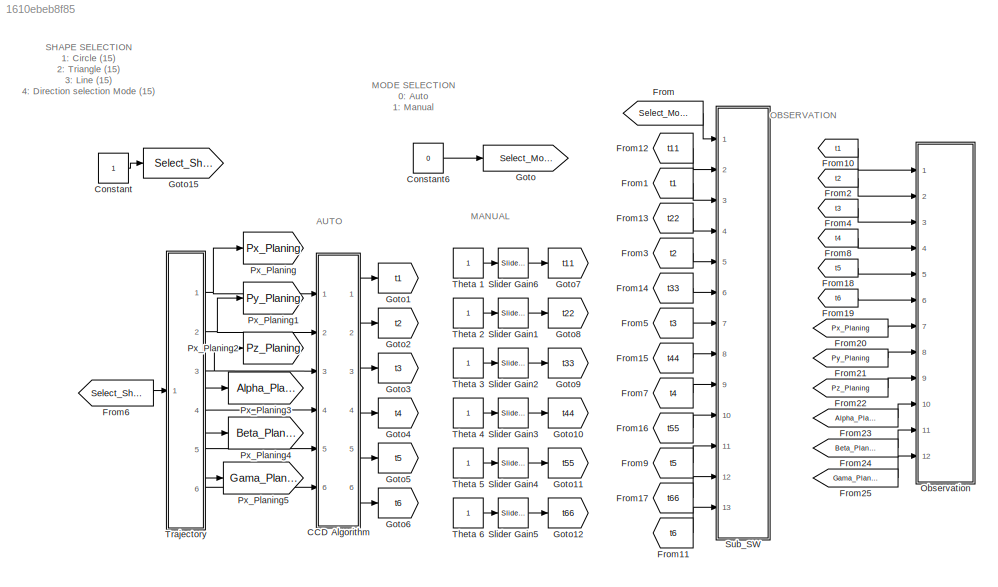
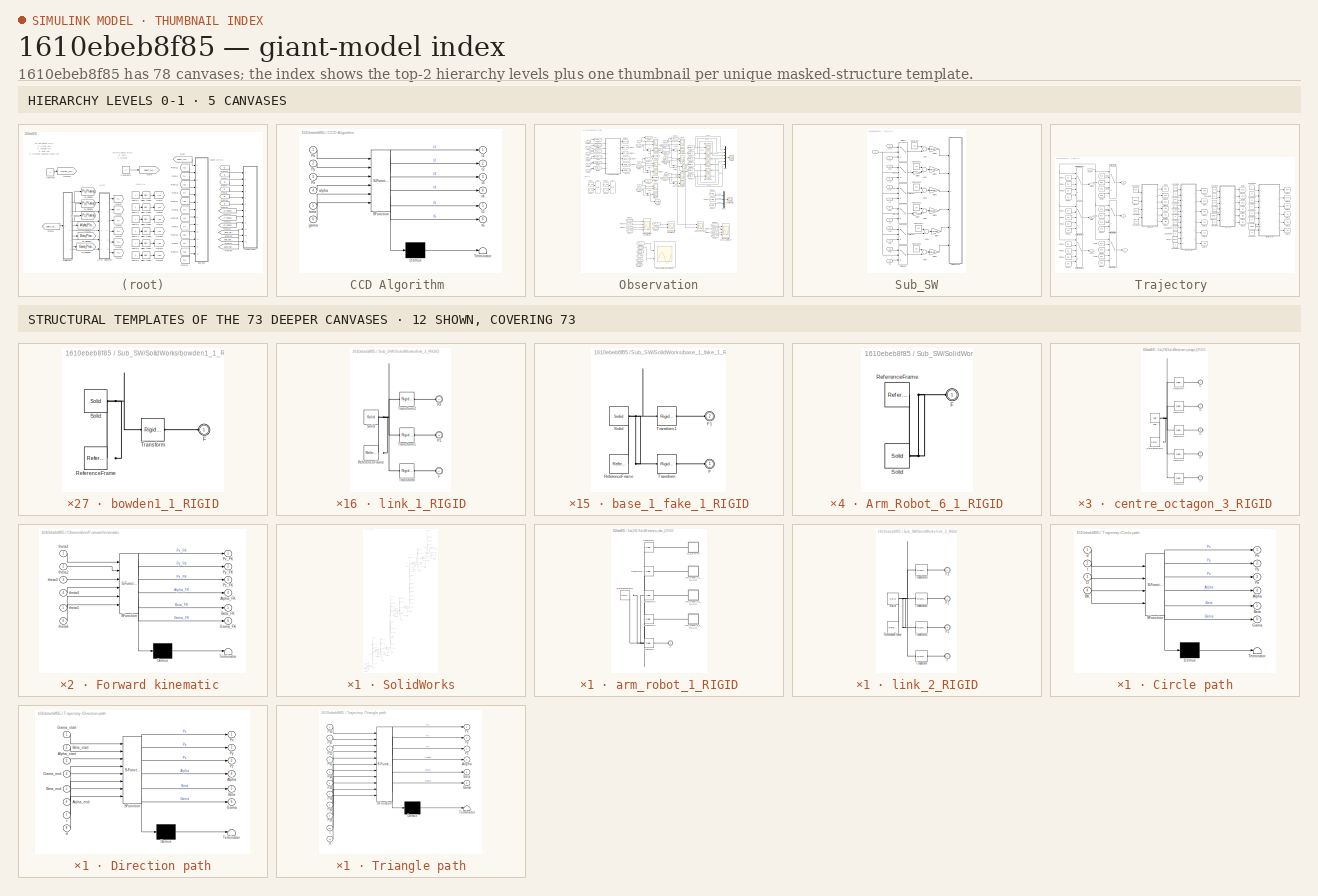
[diagram: thumbnail index - top-2 hierarchy levels (5 canvases) + 12 structural-template representatives of the remaining 73 canvases]
MODEL slx_1610ebeb8f85
KIND model
CONFIG AbsTol = auto
CONFIG EnableMultiTasking = off
CONFIG FixedStep = 0.01
CONFIG MaxStep = auto
CONFIG MinStep = auto
CONFIG RelTol = 1e-3
CONFIG SampleTimeConstraint = Unconstrained
CONFIG Solver = FixedStepAuto
CONFIG SolverName = FixedStepAuto
CONFIG StartTime = 0.0
CONFIG StopTime = 15
WORKSPACE source: MATLAB code (in-file)
WORKSPACE code: Assem_DataFile.m
BLOCK [SubSystem] CCD Algorithm 
  ErrorFcn = Stateflow.Translate.translate
  PermitHierarchicalResolution = ExplicitOnly
  Ports = [6, 6]
  RequestExecContextInheritance = off
  SFBlockType = MATLAB Function
  TreatAsAtomicUnit = on
BLOCK [Demux] CCD Algorithm / Demux 
  Outputs = 1
  Ports = [1, 1]
BLOCK [S-Function] CCD Algorithm / SFunction 
  EnableBusSupport = on
  FunctionName = sf_sfun
  PortCounts = [6 7]
  Ports = [6, 7]
  SFcnIsStateOwnerBlock = off
  SFunctionDeploymentMode = off
  Tag = Stateflow S-Function redundant_manipulator 2
BLOCK [Terminator] CCD Algorithm / Terminator 
BLOCK [Inport] CCD Algorithm /Px
  IconDisplay = Port number
BLOCK [Inport] CCD Algorithm /Py
  IconDisplay = Port number
  Port = 2
BLOCK [Inport] CCD Algorithm /Pz
  IconDisplay = Port number
  Port = 3
BLOCK [Inport] CCD Algorithm /alpha
  IconDisplay = Port number
  Port = 4
BLOCK [Inport] CCD Algorithm /beta
  IconDisplay = Port number
  Port = 5
BLOCK [Inport] CCD Algorithm /gama
  IconDisplay = Port number
  Port = 6
BLOCK [Outport] CCD Algorithm /t1
  IconDisplay = Port number
BLOCK [Outport] CCD Algorithm /t2
  IconDisplay = Port number
  Port = 2
BLOCK [Outport] CCD Algorithm /t3
  IconDisplay = Port number
  Port = 3
BLOCK [Outport] CCD Algorithm /t4
  IconDisplay = Port number
  Port = 4
BLOCK [Outport] CCD Algorithm /t5
  IconDisplay = Port number
  Port = 5
BLOCK [Outport] CCD Algorithm /t6
  IconDisplay = Port number
  Port = 6
BLOCK [Constant] Constant
BLOCK [Constant] Constant6
  Value = 0
BLOCK [From] From
  GotoTag = Select_Mode
BLOCK [From] From1
  GotoTag = t1
BLOCK [From] From10
  GotoTag = t1
BLOCK [From] From11
  GotoTag = t6
BLOCK [From] From12
  GotoTag = t11
BLOCK [From] From13
  GotoTag = t22
BLOCK [From] From14
  GotoTag = t33
BLOCK [From] From15
  GotoTag = t44
BLOCK [From] From16
  GotoTag = t55
BLOCK [From] From17
  GotoTag = t66
BLOCK [From] From18
  GotoTag = t5
BLOCK [From] From19
  GotoTag = t6
BLOCK [From] From2
  GotoTag = t2
BLOCK [From] From20
  GotoTag = Px_Planing
BLOCK [From] From21
  GotoTag = Py_Planing
BLOCK [From] From22
  GotoTag = Pz_Planing
BLOCK [From] From23
  GotoTag = Alpha_Planing
BLOCK [From] From24
  GotoTag = Beta_Planing
BLOCK [From] From25
  GotoTag = Gama_Planing
BLOCK [From] From3
  GotoTag = t2
BLOCK [From] From4
  GotoTag = t3
BLOCK [From] From5
  GotoTag = t3
BLOCK [From] From6
  GotoTag = Select_Shape
BLOCK [From] From7
  GotoTag = t4
BLOCK [From] From8
  GotoTag = t4
BLOCK [From] From9
  GotoTag = t5
BLOCK [Goto] Goto
  GotoTag = Select_Mode
BLOCK [Goto] Goto1
  GotoTag = t1
BLOCK [Goto] Goto10
  GotoTag = t44
BLOCK [Goto] Goto11
  GotoTag = t55
BLOCK [Goto] Goto12
  GotoTag = t66
BLOCK [Goto] Goto15
  GotoTag = Select_Shape
BLOCK [Goto] Goto2
  GotoTag = t2
BLOCK [Goto] Goto3
  GotoTag = t3
BLOCK [Goto] Goto4
  GotoTag = t4
BLOCK [Goto] Goto5
  GotoTag = t5
BLOCK [Goto] Goto6
  GotoTag = t6
BLOCK [Goto] Goto7
  GotoTag = t11
BLOCK [Goto] Goto8
  GotoTag = t22
BLOCK [Goto] Goto9
  GotoTag = t33
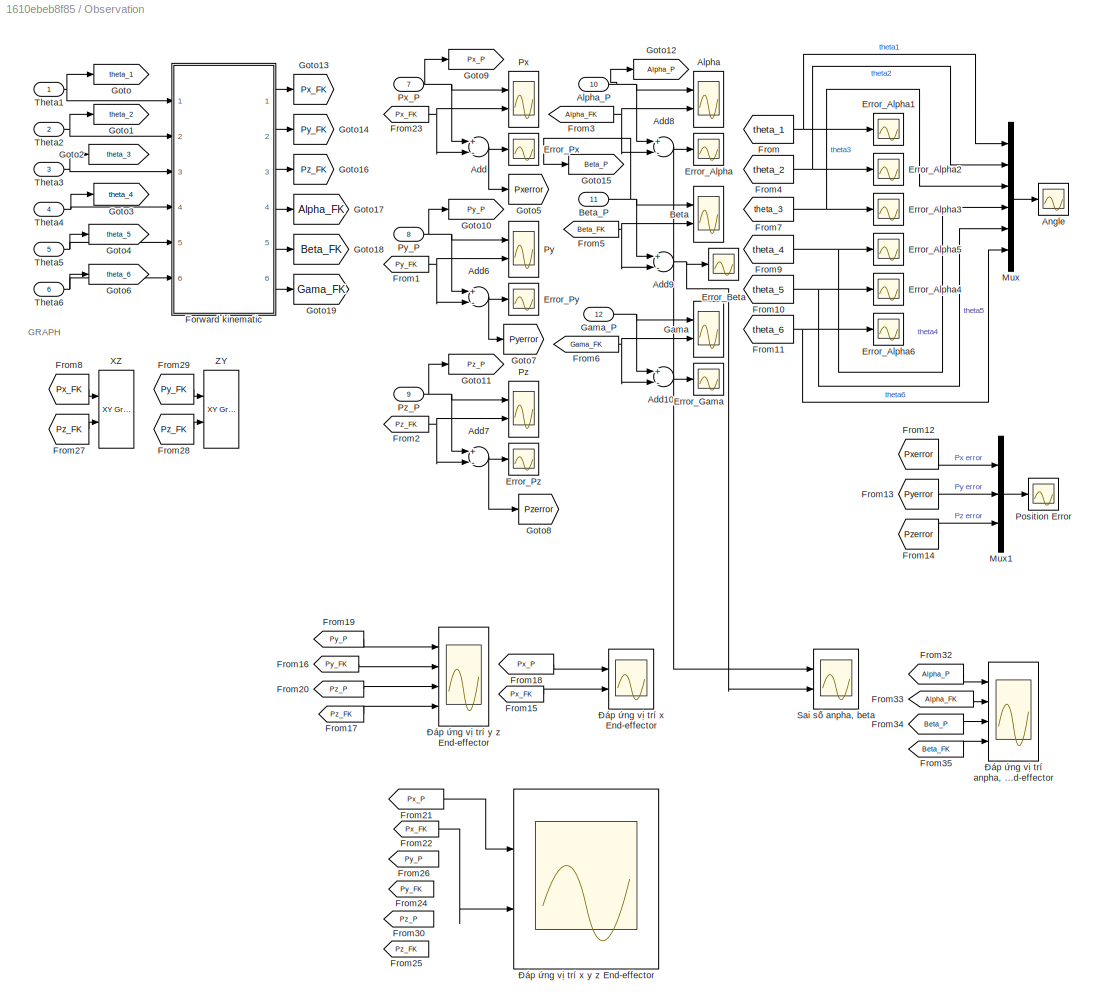
BLOCK [SubSystem] Observation
  Ports = [12]
  RequestExecContextInheritance = off
BLOCK [Sum] Observation/Add
  InputSameDT = off
  Inputs = +-
  OutDataTypeStr = Inherit: Inherit via internal rule
  Ports = [2, 1]
  SaturateOnIntegerOverflow = off
BLOCK [Sum] Observation/Add10
  InputSameDT = off
  Inputs = +-
  OutDataTypeStr = Inherit: Inherit via internal rule
  Ports = [2, 1]
  SaturateOnIntegerOverflow = off
BLOCK [Sum] Observation/Add6
  InputSameDT = off
  Inputs = +-
  OutDataTypeStr = Inherit: Inherit via internal rule
  Ports = [2, 1]
  SaturateOnIntegerOverflow = off
BLOCK [Sum] Observation/Add7
  InputSameDT = off
  Inputs = +-
  OutDataTypeStr = Inherit: Inherit via internal rule
  Ports = [2, 1]
  SaturateOnIntegerOverflow = off
BLOCK [Sum] Observation/Add8
  InputSameDT = off
  Inputs = +-
  OutDataTypeStr = Inherit: Inherit via internal rule
  Ports = [2, 1]
  SaturateOnIntegerOverflow = off
BLOCK [Sum] Observation/Add9
  InputSameDT = off
  Inputs = +-
  OutDataTypeStr = Inherit: Inherit via internal rule
  Ports = [2, 1]
  SaturateOnIntegerOverflow = off
BLOCK [Scope] Observation/Alpha
  Floating = off
  NumInputPorts = 2
  Ports = [2]
  ScopeSpecificationString = Simulink.scopes.TimeScopeBlockCfg('CurrentConfiguration', extmgr.ConfigurationSet(extmgr.Configuration('Core','General UI',true,'FigureColor',[1 1 1],'DisplayFullSourceName',true),extmgr.Configuration('Core','Source UI',true),extmgr.Configuration('Sources','WiredSimulink',true,'DataLoggingVariableName','ScopeData17'),extmgr.Configuration('Visuals','Time Domain',true,'SerializedDisplays',{struct('M...<+2370ch>
BLOCK [Inport] Observation/Alpha_P
  IconDisplay = Port number
  Port = 10
BLOCK [Scope] Observation/Angle
  Floating = off
  NumInputPorts = 1
  Ports = [1]
  ScopeSpecificationString = Simulink.scopes.TimeScopeBlockCfg('CurrentConfiguration', extmgr.ConfigurationSet(extmgr.Configuration('Core','General UI',true,'FigureColor',[1 1 1],'DisplayFullSourceName',true),extmgr.Configuration('Core','Source UI',true),extmgr.Configuration('Sources','WiredSimulink',true,'DataLoggingVariableName','ScopeData1'),extmgr.Configuration('Visuals','Time Domain',true,'SerializedDisplays',{struct('Mi...<+2173ch>
BLOCK [Scope] Observation/Beta
  Floating = off
  NumInputPorts = 2
  Ports = [2]
  ScopeSpecificationString = Simulink.scopes.TimeScopeBlockCfg('CurrentConfiguration', extmgr.ConfigurationSet(extmgr.Configuration('Core','General UI',true,'FigureColor',[1 1 1],'DisplayFullSourceName',true),extmgr.Configuration('Core','Source UI',true),extmgr.Configuration('Sources','WiredSimulink',true,'DataLoggingVariableName','ScopeData19'),extmgr.Configuration('Visuals','Time Domain',true,'SerializedDisplays',{struct('M...<+2405ch>
BLOCK [Inport] Observation/Beta_P
  IconDisplay = Port number
  Port = 11
BLOCK [Scope] Observation/Error_Alpha
  Floating = off
  NumInputPorts = 1
  Ports = [1]
  ScopeSpecificationString = Simulink.scopes.TimeScopeBlockCfg('CurrentConfiguration', extmgr.ConfigurationSet(extmgr.Configuration('Core','General UI',true,'FigureColor',[1 1 1],'DisplayFullSourceName',true),extmgr.Configuration('Core','Source UI',true),extmgr.Configuration('Sources','WiredSimulink',true,'DataLoggingVariableName','ScopeData16'),extmgr.Configuration('Visuals','Time Domain',true,'SerializedDisplays',{struct('M...<+1589ch>
BLOCK [Scope] Observation/Error_Alpha1
  Floating = off
  NumInputPorts = 1
  Ports = [1]
  ScopeSpecificationString = Simulink.scopes.TimeScopeBlockCfg('CurrentConfiguration', extmgr.ConfigurationSet(extmgr.Configuration('Core','General UI',true,'FigureColor',[1 1 1],'DisplayFullSourceName',true),extmgr.Configuration('Core','Source UI',true),extmgr.Configuration('Sources','WiredSimulink',true),extmgr.Configuration('Visuals','Time Domain',true,'SerializedDisplays',{struct('MinYLimReal','10.27567','MaxYLimReal','21...<+1543ch>
BLOCK [Scope] Observation/Error_Alpha2
  Floating = off
  NumInputPorts = 1
  Ports = [1]
  ScopeSpecificationString = Simulink.scopes.TimeScopeBlockCfg('CurrentConfiguration', extmgr.ConfigurationSet(extmgr.Configuration('Core','General UI',true,'FigureColor',[1 1 1],'DisplayFullSourceName',true),extmgr.Configuration('Core','Source UI',true),extmgr.Configuration('Sources','WiredSimulink',true,'DataLoggingVariableName','ScopeData1'),extmgr.Configuration('Visuals','Time Domain',true,'SerializedDisplays',{struct('Mi...<+1588ch>
BLOCK [Scope] Observation/Error_Alpha3
  Floating = off
  NumInputPorts = 1
  Ports = [1]
  ScopeSpecificationString = Simulink.scopes.TimeScopeBlockCfg('CurrentConfiguration', extmgr.ConfigurationSet(extmgr.Configuration('Core','General UI',true,'FigureColor',[1 1 1],'DisplayFullSourceName',true),extmgr.Configuration('Core','Source UI',true),extmgr.Configuration('Sources','WiredSimulink',true,'DataLoggingVariableName','ScopeData2'),extmgr.Configuration('Visuals','Time Domain',true,'SerializedDisplays',{struct('Mi...<+1588ch>
BLOCK [Scope] Observation/Error_Alpha4
  Floating = off
  NumInputPorts = 1
  Ports = [1]
  ScopeSpecificationString = Simulink.scopes.TimeScopeBlockCfg('CurrentConfiguration', extmgr.ConfigurationSet(extmgr.Configuration('Core','General UI',true,'FigureColor',[1 1 1],'DisplayFullSourceName',true),extmgr.Configuration('Core','Source UI',true),extmgr.Configuration('Sources','WiredSimulink',true,'DataLoggingVariableName','ScopeData3'),extmgr.Configuration('Visuals','Time Domain',true,'SerializedDisplays',{struct('Mi...<+1586ch>
BLOCK [Scope] Observation/Error_Alpha5
  Floating = off
  NumInputPorts = 1
  Ports = [1]
  ScopeSpecificationString = Simulink.scopes.TimeScopeBlockCfg('CurrentConfiguration', extmgr.ConfigurationSet(extmgr.Configuration('Core','General UI',true,'FigureColor',[1 1 1],'DisplayFullSourceName',true),extmgr.Configuration('Core','Source UI',true),extmgr.Configuration('Sources','WiredSimulink',true,'DataLoggingVariableName','ScopeData5'),extmgr.Configuration('Visuals','Time Domain',true,'SerializedDisplays',{struct('Mi...<+1586ch>
BLOCK [Scope] Observation/Error_Alpha6
  Floating = off
  NumInputPorts = 1
  Ports = [1]
  ScopeSpecificationString = Simulink.scopes.TimeScopeBlockCfg('CurrentConfiguration', extmgr.ConfigurationSet(extmgr.Configuration('Core','General UI',true,'FigureColor',[1 1 1],'DisplayFullSourceName',true),extmgr.Configuration('Core','Source UI',true),extmgr.Configuration('Sources','WiredSimulink',true,'DataLoggingVariableName','ScopeData6'),extmgr.Configuration('Visuals','Time Domain',true,'SerializedDisplays',{struct('Mi...<+1588ch>
BLOCK [Scope] Observation/Error_Beta
  Floating = off
  NumInputPorts = 1
  Ports = [1]
  ScopeSpecificationString = Simulink.scopes.TimeScopeBlockCfg('CurrentConfiguration', extmgr.ConfigurationSet(extmgr.Configuration('Core','General UI',true,'FigureColor',[1 1 1],'DisplayFullSourceName',true),extmgr.Configuration('Core','Source UI',true),extmgr.Configuration('Sources','WiredSimulink',true,'DataLoggingVariableName','ScopeData18'),extmgr.Configuration('Visuals','Time Domain',true,'SerializedDisplays',{struct('M...<+1583ch>
BLOCK [Scope] Observation/Error_Gama
  Floating = off
  NumInputPorts = 1
  Ports = [1]
  ScopeSpecificationString = Simulink.scopes.TimeScopeBlockCfg('CurrentConfiguration', extmgr.ConfigurationSet(extmgr.Configuration('Core','General UI',true,'FigureColor',[1 1 1],'DisplayFullSourceName',true),extmgr.Configuration('Core','Source UI',true),extmgr.Configuration('Sources','WiredSimulink',true,'DataLoggingVariableName','ScopeData20'),extmgr.Configuration('Visuals','Time Domain',true,'SerializedDisplays',{struct('M...<+1585ch>
BLOCK [Scope] Observation/Error_Px
  Floating = off
  NumInputPorts = 1
  Ports = [1]
  ScopeSpecificationString = Simulink.scopes.TimeScopeBlockCfg('CurrentConfiguration', extmgr.ConfigurationSet(extmgr.Configuration('Core','General UI',true,'FigureColor',[1 1 1],'DisplayFullSourceName',true),extmgr.Configuration('Core','Source UI',true),extmgr.Configuration('Sources','WiredSimulink',true,'DataLoggingVariableName','ScopeData7'),extmgr.Configuration('Visuals','Time Domain',true,'SerializedDisplays',{struct('Mi...<+1615ch>
BLOCK [Scope] Observation/Error_Py
  Floating = off
  NumInputPorts = 1
  Ports = [1]
  ScopeSpecificationString = Simulink.scopes.TimeScopeBlockCfg('CurrentConfiguration', extmgr.ConfigurationSet(extmgr.Configuration('Core','General UI',true,'FigureColor',[1 1 1],'DisplayFullSourceName',true),extmgr.Configuration('Core','Source UI',true),extmgr.Configuration('Sources','WiredSimulink',true,'DataLoggingVariableName','ScopeData12'),extmgr.Configuration('Visuals','Time Domain',true,'SerializedDisplays',{struct('M...<+1601ch>
BLOCK [Scope] Observation/Error_Pz
  Floating = off
  NumInputPorts = 1
  Ports = [1]
  ScopeSpecificationString = Simulink.scopes.TimeScopeBlockCfg('CurrentConfiguration', extmgr.ConfigurationSet(extmgr.Configuration('Core','General UI',true,'FigureColor',[1 1 1],'DisplayFullSourceName',true),extmgr.Configuration('Core','Source UI',true),extmgr.Configuration('Sources','WiredSimulink',true,'DataLoggingVariableName','ScopeData14'),extmgr.Configuration('Visuals','Time Domain',true,'SerializedDisplays',{struct('M...<+1611ch>
BLOCK [SubSystem] Observation/Forward kinematic 
  ErrorFcn = Stateflow.Translate.translate
  PermitHierarchicalResolution = ExplicitOnly
  Ports = [6, 6]
  RequestExecContextInheritance = off
  SFBlockType = MATLAB Function
  TreatAsAtomicUnit = on
BLOCK [Demux] Observation/Forward kinematic / Demux 
  Outputs = 1
  Ports = [1, 1]
BLOCK [S-Function] Observation/Forward kinematic / SFunction 
  EnableBusSupport = on
  FunctionName = sf_sfun
  PortCounts = [6 7]
  Ports = [6, 7]
  SFcnIsStateOwnerBlock = off
  SFunctionDeploymentMode = off
  Tag = Stateflow S-Function redundant_manipulator 10
BLOCK [Terminator] Observation/Forward kinematic / Terminator 
BLOCK [Outport] Observation/Forward kinematic /Alpha_FK
  IconDisplay = Port number
  Port = 4
BLOCK [Outport] Observation/Forward kinematic /Beta_FK
  IconDisplay = Port number
  Port = 5
BLOCK [Outport] Observation/Forward kinematic /Gama_FK
  IconDisplay = Port number
  Port = 6
BLOCK [Outport] Observation/Forward kinematic /Px_FK
  IconDisplay = Port number
BLOCK [Outport] Observation/Forward kinematic /Py_FK
  IconDisplay = Port number
  Port = 2
BLOCK [Outport] Observation/Forward kinematic /Pz_FK
  IconDisplay = Port number
  Port = 3
BLOCK [Inport] Observation/Forward kinematic /theta1
  IconDisplay = Port number
BLOCK [Inport] Observation/Forward kinematic /theta2
  IconDisplay = Port number
  Port = 2
BLOCK [Inport] Observation/Forward kinematic /theta3
  IconDisplay = Port number
  Port = 3
BLOCK [Inport] Observation/Forward kinematic /theta4
  IconDisplay = Port number
  Port = 4
BLOCK [Inport] Observation/Forward kinematic /theta5
  IconDisplay = Port number
  Port = 5
BLOCK [Inport] Observation/Forward kinematic /theta6
  IconDisplay = Port number
  Port = 6
BLOCK [From] Observation/From
  GotoTag = theta_1
BLOCK [From] Observation/From1
  GotoTag = Py_FK
BLOCK [From] Observation/From10
  GotoTag = theta_5
BLOCK [From] Observation/From11
  GotoTag = theta_6
BLOCK [From] Observation/From12
  GotoTag = Pxerror
BLOCK [From] Observation/From13
  GotoTag = Pyerror
BLOCK [From] Observation/From14
  GotoTag = Pzerror
BLOCK [From] Observation/From15
  GotoTag = Px_FK
BLOCK [From] Observation/From16
  GotoTag = Py_FK
BLOCK [From] Observation/From17
  GotoTag = Pz_FK
BLOCK [From] Observation/From18
  GotoTag = Px_P
BLOCK [From] Observation/From19
  GotoTag = Py_P
BLOCK [From] Observation/From2
  GotoTag = Pz_FK
BLOCK [From] Observation/From20
  GotoTag = Pz_P
BLOCK [From] Observation/From21
  GotoTag = Px_P
BLOCK [From] Observation/From22
  GotoTag = Px_FK
BLOCK [From] Observation/From23
  GotoTag = Px_FK
BLOCK [From] Observation/From24
  GotoTag = Py_FK
BLOCK [From] Observation/From25
  GotoTag = Pz_FK
BLOCK [From] Observation/From26
  GotoTag = Py_P
BLOCK [From] Observation/From27
  GotoTag = Pz_FK
BLOCK [From] Observation/From28
  GotoTag = Pz_FK
BLOCK [From] Observation/From29
  GotoTag = Py_FK
BLOCK [From] Observation/From3
  GotoTag = Alpha_FK
BLOCK [From] Observation/From30
  GotoTag = Pz_P
BLOCK [From] Observation/From32
  GotoTag = Alpha_P
BLOCK [From] Observation/From33
  GotoTag = Alpha_FK
BLOCK [From] Observation/From34
  GotoTag = Beta_P
BLOCK [From] Observation/From35
  GotoTag = Beta_FK
BLOCK [From] Observation/From4
  GotoTag = theta_2
BLOCK [From] Observation/From5
  GotoTag = Beta_FK
BLOCK [From] Observation/From6
  GotoTag = Gama_FK
BLOCK [From] Observation/From7
  GotoTag = theta_3
BLOCK [From] Observation/From8
  GotoTag = Px_FK
BLOCK [From] Observation/From9
  GotoTag = theta_4
BLOCK [Scope] Observation/Gama
  Floating = off
  NumInputPorts = 2
  Ports = [2]
  ScopeSpecificationString = Simulink.scopes.TimeScopeBlockCfg('CurrentConfiguration', extmgr.ConfigurationSet(extmgr.Configuration('Core','General UI',true,'FigureColor',[1 1 1],'DisplayFullSourceName',true),extmgr.Configuration('Core','Source UI',true),extmgr.Configuration('Sources','WiredSimulink',true,'DataLoggingVariableName','ScopeData21'),extmgr.Configuration('Visuals','Time Domain',true,'SerializedDisplays',{struct('M...<+2403ch>
BLOCK [Inport] Observation/Gama_P
  IconDisplay = Port number
  Port = 12
BLOCK [Goto] Observation/Goto
  GotoTag = theta_1
BLOCK [Goto] Observation/Goto1
  GotoTag = theta_2
BLOCK [Goto] Observation/Goto10
  GotoTag = Py_P
BLOCK [Goto] Observation/Goto11
  GotoTag = Pz_P
BLOCK [Goto] Observation/Goto12
  GotoTag = Alpha_P
BLOCK [Goto] Observation/Goto13
  GotoTag = Px_FK
BLOCK [Goto] Observation/Goto14
  GotoTag = Py_FK
BLOCK [Goto] Observation/Goto15
  GotoTag = Beta_P
BLOCK [Goto] Observation/Goto16
  GotoTag = Pz_FK
BLOCK [Goto] Observation/Goto17
  GotoTag = Alpha_FK
BLOCK [Goto] Observation/Goto18
  GotoTag = Beta_FK
BLOCK [Goto] Observation/Goto19
  GotoTag = Gama_FK
BLOCK [Goto] Observation/Goto2
  GotoTag = theta_3
BLOCK [Goto] Observation/Goto3
  GotoTag = theta_4
BLOCK [Goto] Observation/Goto4
  GotoTag = theta_5
BLOCK [Goto] Observation/Goto5
  GotoTag = Pxerror
BLOCK [Goto] Observation/Goto6
  GotoTag = theta_6
BLOCK [Goto] Observation/Goto7
  GotoTag = Pyerror
BLOCK [Goto] Observation/Goto8
  GotoTag = Pzerror
BLOCK [Goto] Observation/Goto9
  GotoTag = Px_P
BLOCK [Mux] Observation/Mux
  DisplayOption = bar
  Inputs = 6
  Ports = [6, 1]
BLOCK [Mux] Observation/Mux1
  DisplayOption = bar
  Inputs = 3
  Ports = [3, 1]
BLOCK [Scope] Observation/Position Error
  Floating = off
  NumInputPorts = 1
  Ports = [1]
  ScopeSpecificationString = Simulink.scopes.TimeScopeBlockCfg('CurrentConfiguration', extmgr.ConfigurationSet(extmgr.Configuration('Core','General UI',true,'FigureColor',[1 1 1],'DisplayFullSourceName',true),extmgr.Configuration('Core','Source UI',true),extmgr.Configuration('Sources','WiredSimulink',true,'DataLoggingVariableName','ScopeData1'),extmgr.Configuration('Visuals','Time Domain',true,'SerializedDisplays',{struct('Mi...<+2136ch>
BLOCK [Scope] Observation/Px
  Floating = off
  NumInputPorts = 2
  Ports = [2]
  ScopeSpecificationString = Simulink.scopes.TimeScopeBlockCfg('CurrentConfiguration', extmgr.ConfigurationSet(extmgr.Configuration('Core','General UI',true,'FigureColor',[1 1 1],'DisplayFullSourceName',true),extmgr.Configuration('Core','Source UI',true),extmgr.Configuration('Sources','WiredSimulink',true,'DataLoggingVariableName','ScopeData4'),extmgr.Configuration('Visuals','Time Domain',true,'SerializedDisplays',{struct('Mi...<+2310ch>
BLOCK [Inport] Observation/Px_P
  IconDisplay = Port number
  Port = 7
BLOCK [Scope] Observation/Py
  Floating = off
  NumInputPorts = 2
  Ports = [2]
  ScopeSpecificationString = Simulink.scopes.TimeScopeBlockCfg('CurrentConfiguration', extmgr.ConfigurationSet(extmgr.Configuration('Core','General UI',true,'FigureColor',[1 1 1],'DisplayFullSourceName',true),extmgr.Configuration('Core','Source UI',true),extmgr.Configuration('Sources','WiredSimulink',true,'DataLoggingVariableName','ScopeData13'),extmgr.Configuration('Visuals','Time Domain',true,'SerializedDisplays',{struct('M...<+2320ch>
BLOCK [Inport] Observation/Py_P
  IconDisplay = Port number
  Port = 8
BLOCK [Scope] Observation/Pz
  Floating = off
  NumInputPorts = 2
  Ports = [2]
  ScopeSpecificationString = Simulink.scopes.TimeScopeBlockCfg('CurrentConfiguration', extmgr.ConfigurationSet(extmgr.Configuration('Core','General UI',true,'FigureColor',[1 1 1],'DisplayFullSourceName',true),extmgr.Configuration('Core','Source UI',true),extmgr.Configuration('Sources','WiredSimulink',true,'DataLoggingVariableName','ScopeData15'),extmgr.Configuration('Visuals','Time Domain',true,'SerializedDisplays',{struct('M...<+2295ch>
BLOCK [Inport] Observation/Pz_P
  IconDisplay = Port number
  Port = 9
BLOCK [Scope] Observation/Sai số anpha, beta
  Floating = off
  NumInputPorts = 2
  Ports = [2]
  ScopeSpecificationString = Simulink.scopes.TimeScopeBlockCfg('CurrentConfiguration', extmgr.ConfigurationSet(extmgr.Configuration('Core','General UI',true,'FigureColor',[1 1 1],'DisplayFullSourceName',true),extmgr.Configuration('Core','Source UI',true),extmgr.Configuration('Sources','WiredSimulink',true,'DataLoggingVariableName','ScopeData1'),extmgr.Configuration('Visuals','Time Domain',true,'SerializedDisplays',{struct('Mi...<+2104ch>
BLOCK [Inport] Observation/Theta1
  IconDisplay = Port number
BLOCK [Inport] Observation/Theta2
  IconDisplay = Port number
  Port = 2
BLOCK [Inport] Observation/Theta3
  IconDisplay = Port number
  Port = 3
BLOCK [Inport] Observation/Theta4
  IconDisplay = Port number
  Port = 4
BLOCK [Inport] Observation/Theta5
  IconDisplay = Port number
  Port = 5
BLOCK [Inport] Observation/Theta6
  IconDisplay = Port number
  Port = 6
BLOCK [Reference] Observation/XZ  REF=simulink/Sinks/XY Graph
  Ports = [2]
  SourceBlock = simulink/Sinks/XY Graph
  SourceProductBaseCode = SL
  SourceProductName = Simulink
  SourceType = XY scope.
BLOCK [Reference] Observation/ZY  REF=simulink/Sinks/XY Graph
  Ports = [2]
  SourceBlock = simulink/Sinks/XY Graph
  SourceProductBaseCode = SL
  SourceProductName = Simulink
  SourceType = XY scope.
BLOCK [Scope] Observation/Đáp ứng vị trí anpha, beta End-effector 
  Floating = off
  NumInputPorts = 4
  Ports = [4]
  ScopeSpecificationString = Simulink.scopes.TimeScopeBlockCfg('CurrentConfiguration', extmgr.ConfigurationSet(extmgr.Configuration('Core','General UI',true,'FigureColor',[1 1 1],'DisplayFullSourceName',true),extmgr.Configuration('Core','Source UI',true),extmgr.Configuration('Sources','WiredSimulink',true,'DataLoggingVariableName','ScopeData2'),extmgr.Configuration('Visuals','Time Domain',true,'SerializedDisplays',{struct('Mi...<+2198ch>
BLOCK [Scope] Observation/Đáp ứng vị trí x End-effector
  Floating = off
  NumInputPorts = 2
  Ports = [2]
  ScopeSpecificationString = Simulink.scopes.TimeScopeBlockCfg('CurrentConfiguration', extmgr.ConfigurationSet(extmgr.Configuration('Core','General UI',true,'FigureColor',[1 1 1],'DisplayFullSourceName',true),extmgr.Configuration('Core','Source UI',true),extmgr.Configuration('Sources','WiredSimulink',true,'DataLoggingVariableName','ScopeData1'),extmgr.Configuration('Visuals','Time Domain',true,'SerializedDisplays',{struct('Mi...<+2115ch>
BLOCK [Scope] Observation/Đáp ứng vị trí x y z End-effector
  Floating = off
  NumInputPorts = 2
  Ports = [2]
  ScopeSpecificationString = Simulink.scopes.TimeScopeBlockCfg('CurrentConfiguration', extmgr.ConfigurationSet(extmgr.Configuration('Core','General UI',true,'FigureColor',[1 1 1],'DisplayFullSourceName',true),extmgr.Configuration('Core','Source UI',true),extmgr.Configuration('Sources','WiredSimulink',true,'DataLoggingVariableName','ScopeData1','DataLogging',true),extmgr.Configuration('Visuals','Time Domain',true,'SerializedDi...<+2328ch>
BLOCK [Scope] Observation/Đáp ứng vị trí y z End-effector 
  Floating = off
  NumInputPorts = 4
  Ports = [4]
  ScopeSpecificationString = Simulink.scopes.TimeScopeBlockCfg('CurrentConfiguration', extmgr.ConfigurationSet(extmgr.Configuration('Core','General UI',true,'FigureColor',[1 1 1],'DisplayFullSourceName',true),extmgr.Configuration('Core','Source UI',true),extmgr.Configuration('Sources','WiredSimulink',true),extmgr.Configuration('Visuals','Time Domain',true,'SerializedDisplays',{struct('MinYLimReal','11.43641','MaxYLimReal','51...<+2130ch>
BLOCK [Goto] Px_Planing
  GotoTag = Px_Planing
BLOCK [Goto] Px_Planing1
  GotoTag = Py_Planing
BLOCK [Goto] Px_Planing2
  GotoTag = Pz_Planing
BLOCK [Goto] Px_Planing3
  GotoTag = Alpha_Planing
BLOCK [Goto] Px_Planing4
  GotoTag = Beta_Planing
BLOCK [Goto] Px_Planing5
  GotoTag = Gama_Planing
BLOCK [Reference] Slider Gain1  REF=simulink/Math
Operations/Slider
Gain
  Ports = [1, 1]
  SourceBlock = simulink/Math\nOperations/Slider\nGain
  SourceProductBaseCode = SL
  SourceProductName = Simulink
  SourceType = Slider Gain
BLOCK [Reference] Slider Gain2  REF=simulink/Math
Operations/Slider
Gain
  Ports = [1, 1]
  SourceBlock = simulink/Math\nOperations/Slider\nGain
  SourceProductBaseCode = SL
  SourceProductName = Simulink
  SourceType = Slider Gain
BLOCK [Reference] Slider Gain3  REF=simulink/Math
Operations/Slider
Gain
  Ports = [1, 1]
  SourceBlock = simulink/Math\nOperations/Slider\nGain
  SourceProductBaseCode = SL
  SourceProductName = Simulink
  SourceType = Slider Gain
BLOCK [Reference] Slider Gain4  REF=simulink/Math
Operations/Slider
Gain
  Ports = [1, 1]
  SourceBlock = simulink/Math\nOperations/Slider\nGain
  SourceProductBaseCode = SL
  SourceProductName = Simulink
  SourceType = Slider Gain
BLOCK [Reference] Slider Gain5  REF=simulink/Math
Operations/Slider
Gain
  Ports = [1, 1]
  SourceBlock = simulink/Math\nOperations/Slider\nGain
  SourceProductBaseCode = SL
  SourceProductName = Simulink
  SourceType = Slider Gain
BLOCK [Reference] Slider Gain6  REF=simulink/Math
Operations/Slider
Gain
  Ports = [1, 1]
  SourceBlock = simulink/Math\nOperations/Slider\nGain
  SourceProductBaseCode = SL
  SourceProductName = Simulink
  SourceType = Slider Gain
BLOCK [SubSystem] Sub_SW
  Ports = [13]
  RequestExecContextInheritance = off
BLOCK [Inport] Sub_SW/A
  IconDisplay = Port number
BLOCK [Sum] Sub_SW/Add
  InputSameDT = off
  OutDataTypeStr = Inherit: Inherit via internal rule
  Ports = [2, 1]
  SaturateOnIntegerOverflow = off
BLOCK [Sum] Sub_SW/Add1
  InputSameDT = off
  OutDataTypeStr = Inherit: Inherit via internal rule
  Ports = [2, 1]
  SaturateOnIntegerOverflow = off
BLOCK [Sum] Sub_SW/Add2
  InputSameDT = off
  OutDataTypeStr = Inherit: Inherit via internal rule
  Ports = [2, 1]
  SaturateOnIntegerOverflow = off
BLOCK [Sum] Sub_SW/Add3
  InputSameDT = off
  OutDataTypeStr = Inherit: Inherit via internal rule
  Ports = [2, 1]
  SaturateOnIntegerOverflow = off
BLOCK [Sum] Sub_SW/Add4
  InputSameDT = off
  OutDataTypeStr = Inherit: Inherit via internal rule
  Ports = [2, 1]
  SaturateOnIntegerOverflow = off
BLOCK [Sum] Sub_SW/Add5
  InputSameDT = off
  OutDataTypeStr = Inherit: Inherit via internal rule
  Ports = [2, 1]
  SaturateOnIntegerOverflow = off
BLOCK [Constant] Sub_SW/Constant
  Value = 90
BLOCK [Constant] Sub_SW/Constant1
  Value = 90
BLOCK [Constant] Sub_SW/Constant2
  Value = -90
BLOCK [Constant] Sub_SW/Constant3
  Value = 90
BLOCK [Constant] Sub_SW/Constant4
  Value = -90
BLOCK [Constant] Sub_SW/Constant5
  Value = -90
BLOCK [Gain] Sub_SW/Gain1
  Gain = pi/180
  OutDataTypeStr = Inherit: Inherit via internal rule
  ParamDataTypeStr = Inherit: Inherit via internal rule
  SaturateOnIntegerOverflow = off
BLOCK [Gain] Sub_SW/Gain2
  Gain = pi/180
  OutDataTypeStr = Inherit: Inherit via internal rule
  ParamDataTypeStr = Inherit: Inherit via internal rule
  SaturateOnIntegerOverflow = off
BLOCK [Gain] Sub_SW/Gain3
  Gain = pi/180
  OutDataTypeStr = Inherit: Inherit via internal rule
  ParamDataTypeStr = Inherit: Inherit via internal rule
  SaturateOnIntegerOverflow = off
BLOCK [Gain] Sub_SW/Gain4
  Gain = pi/180
  OutDataTypeStr = Inherit: Inherit via internal rule
  ParamDataTypeStr = Inherit: Inherit via internal rule
  SaturateOnIntegerOverflow = off
BLOCK [Gain] Sub_SW/Gain5
  Gain = pi/180
  OutDataTypeStr = Inherit: Inherit via internal rule
  ParamDataTypeStr = Inherit: Inherit via internal rule
  SaturateOnIntegerOverflow = off
BLOCK [Gain] Sub_SW/Gain6
  Gain = -1
  OutDataTypeStr = Inherit: Inherit via internal rule
  ParamDataTypeStr = Inherit: Inherit via internal rule
  SaturateOnIntegerOverflow = off
BLOCK [Gain] Sub_SW/Gain7
  Gain = -1
  OutDataTypeStr = Inherit: Inherit via internal rule
  ParamDataTypeStr = Inherit: Inherit via internal rule
  SaturateOnIntegerOverflow = off
BLOCK [Gain] Sub_SW/Gain8
  Gain = pi/180
  OutDataTypeStr = Inherit: Inherit via internal rule
  ParamDataTypeStr = Inherit: Inherit via internal rule
  SaturateOnIntegerOverflow = off
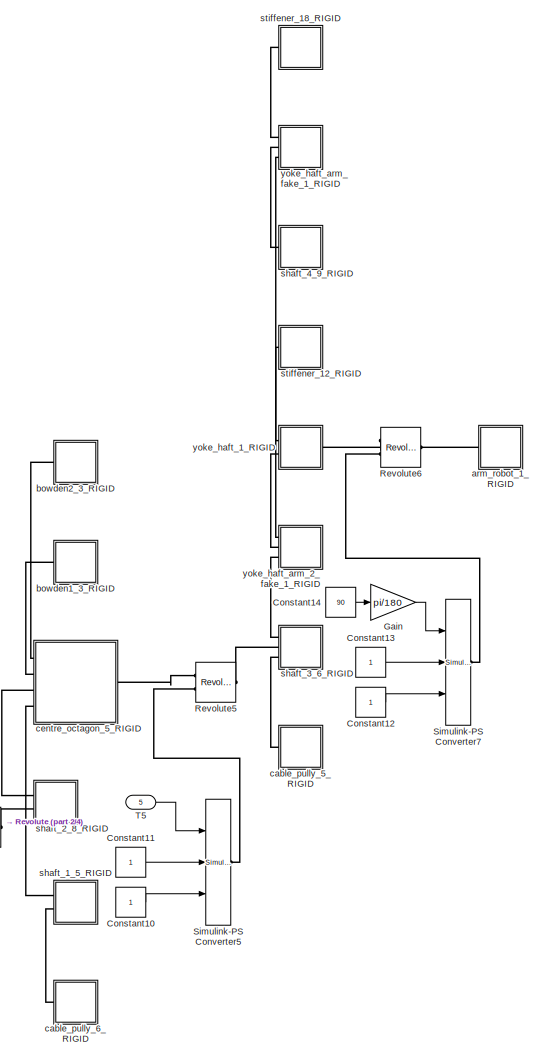
[diagram: Sub_SW/SolidWorks - part 1/4, top right region]
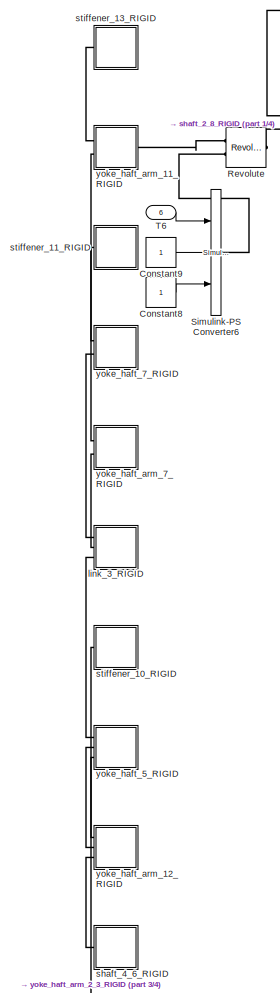
[diagram: Sub_SW/SolidWorks - part 2/4, top center region]
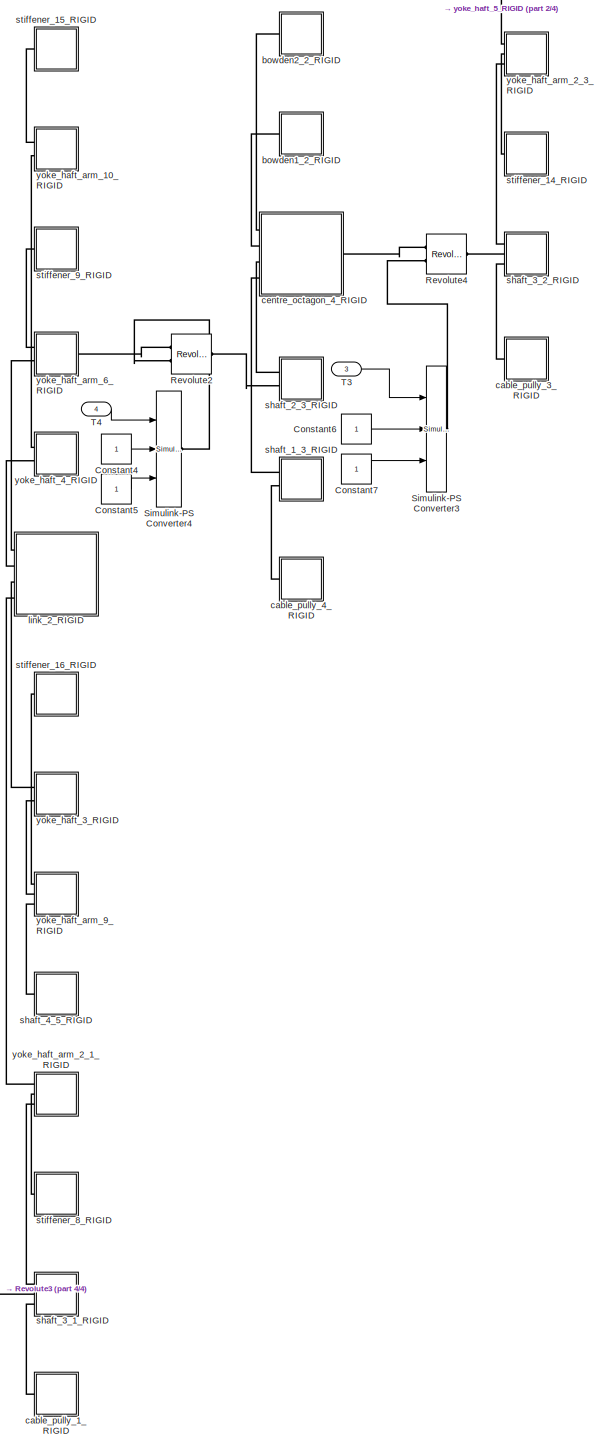
[diagram: Sub_SW/SolidWorks - part 3/4, central region]
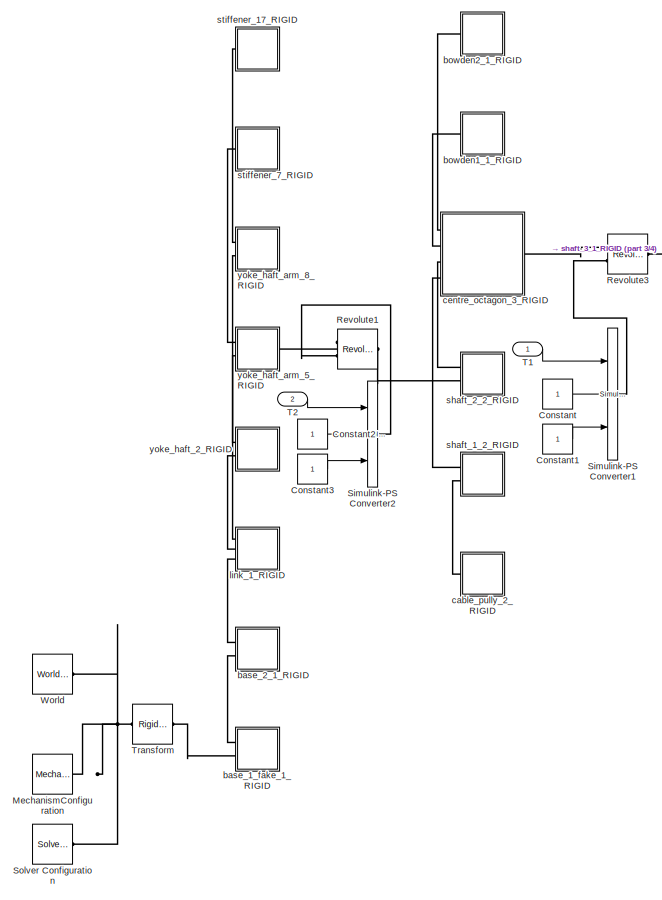
[diagram: Sub_SW/SolidWorks - part 4/4, bottom left region]
BLOCK [SubSystem] Sub_SW/SolidWorks
  Ports = [6]
  RequestExecContextInheritance = off
BLOCK [Constant] Sub_SW/SolidWorks/Constant
BLOCK [Constant] Sub_SW/SolidWorks/Constant1
BLOCK [Constant] Sub_SW/SolidWorks/Constant10
BLOCK [Constant] Sub_SW/SolidWorks/Constant11
BLOCK [Constant] Sub_SW/SolidWorks/Constant12
BLOCK [Constant] Sub_SW/SolidWorks/Constant13
BLOCK [Constant] Sub_SW/SolidWorks/Constant14
  Value = 90
BLOCK [Constant] Sub_SW/SolidWorks/Constant2
BLOCK [Constant] Sub_SW/SolidWorks/Constant3
BLOCK [Constant] Sub_SW/SolidWorks/Constant4
BLOCK [Constant] Sub_SW/SolidWorks/Constant5
BLOCK [Constant] Sub_SW/SolidWorks/Constant6
BLOCK [Constant] Sub_SW/SolidWorks/Constant7
BLOCK [Constant] Sub_SW/SolidWorks/Constant8
BLOCK [Constant] Sub_SW/SolidWorks/Constant9
BLOCK [Gain] Sub_SW/SolidWorks/Gain
  Gain = pi/180
  OutDataTypeStr = Inherit: Inherit via internal rule
  ParamDataTypeStr = Inherit: Inherit via internal rule
  SaturateOnIntegerOverflow = off
BLOCK [Reference] Sub_SW/SolidWorks/MechanismConfiguration  REF=sm_lib/Utilities/Mechanism
Configuration
  Ports = [0, 0, 0, 0, 0, 0, 1]
  SourceBlock = sm_lib/Utilities/Mechanism\nConfiguration
  SourceProductBaseCode = MS
  SourceProductName = Simscape Multibody
  SourceType = Mechanism\nConfiguration
BLOCK [Reference] Sub_SW/SolidWorks/Revolute  REF=sm_lib/Joints/Revolute Joint
  Ports = [0, 0, 0, 0, 0, 2, 1]
  SourceBlock = sm_lib/Joints/Revolute Joint
  SourceProductBaseCode = MS
  SourceProductName = Simscape Multibody
  SourceType = Revolute Joint
BLOCK [Reference] Sub_SW/SolidWorks/Revolute1  REF=sm_lib/Joints/Revolute Joint
  Ports = [0, 0, 0, 0, 0, 2, 1]
  SourceBlock = sm_lib/Joints/Revolute Joint
  SourceProductBaseCode = MS
  SourceProductName = Simscape Multibody
  SourceType = Revolute Joint
BLOCK [Reference] Sub_SW/SolidWorks/Revolute2  REF=sm_lib/Joints/Revolute Joint
  Ports = [0, 0, 0, 0, 0, 2, 1]
  SourceBlock = sm_lib/Joints/Revolute Joint
  SourceProductBaseCode = MS
  SourceProductName = Simscape Multibody
  SourceType = Revolute Joint
BLOCK [Reference] Sub_SW/SolidWorks/Revolute3  REF=sm_lib/Joints/Revolute Joint
  Ports = [0, 0, 0, 0, 0, 2, 1]
  SourceBlock = sm_lib/Joints/Revolute Joint
  SourceProductBaseCode = MS
  SourceProductName = Simscape Multibody
  SourceType = Revolute Joint
BLOCK [Reference] Sub_SW/SolidWorks/Revolute4  REF=sm_lib/Joints/Revolute Joint
  Ports = [0, 0, 0, 0, 0, 2, 1]
  SourceBlock = sm_lib/Joints/Revolute Joint
  SourceProductBaseCode = MS
  SourceProductName = Simscape Multibody
  SourceType = Revolute Joint
BLOCK [Reference] Sub_SW/SolidWorks/Revolute5  REF=sm_lib/Joints/Revolute Joint
  Ports = [0, 0, 0, 0, 0, 2, 1]
  SourceBlock = sm_lib/Joints/Revolute Joint
  SourceProductBaseCode = MS
  SourceProductName = Simscape Multibody
  SourceType = Revolute Joint
BLOCK [Reference] Sub_SW/SolidWorks/Revolute6  REF=sm_lib/Joints/Revolute Joint
  Ports = [0, 0, 0, 0, 0, 2, 1]
  SourceBlock = sm_lib/Joints/Revolute Joint
  SourceProductBaseCode = MS
  SourceProductName = Simscape Multibody
  SourceType = Revolute Joint
BLOCK [Reference] Sub_SW/SolidWorks/Simulink-PS Converter1  REF=nesl_utility/Simulink-PS
Converter
  Ports = [3, 0, 0, 0, 0, 0, 1]
  SourceBlock = nesl_utility/Simulink-PS\nConverter
  SourceProductBaseCode = SS
  SourceProductName = Simscape
  SourceType = Simulink-PS\nConverter
BLOCK [Reference] Sub_SW/SolidWorks/Simulink-PS Converter2  REF=nesl_utility/Simulink-PS
Converter
  Ports = [3, 0, 0, 0, 0, 0, 1]
  SourceBlock = nesl_utility/Simulink-PS\nConverter
  SourceProductBaseCode = SS
  SourceProductName = Simscape
  SourceType = Simulink-PS\nConverter
BLOCK [Reference] Sub_SW/SolidWorks/Simulink-PS Converter3  REF=nesl_utility/Simulink-PS
Converter
  Ports = [3, 0, 0, 0, 0, 0, 1]
  SourceBlock = nesl_utility/Simulink-PS\nConverter
  SourceProductBaseCode = SS
  SourceProductName = Simscape
  SourceType = Simulink-PS\nConverter
BLOCK [Reference] Sub_SW/SolidWorks/Simulink-PS Converter4  REF=nesl_utility/Simulink-PS
Converter
  Ports = [3, 0, 0, 0, 0, 0, 1]
  SourceBlock = nesl_utility/Simulink-PS\nConverter
  SourceProductBaseCode = SS
  SourceProductName = Simscape
  SourceType = Simulink-PS\nConverter
BLOCK [Reference] Sub_SW/SolidWorks/Simulink-PS Converter5  REF=nesl_utility/Simulink-PS
Converter
  Ports = [3, 0, 0, 0, 0, 0, 1]
  SourceBlock = nesl_utility/Simulink-PS\nConverter
  SourceProductBaseCode = SS
  SourceProductName = Simscape
  SourceType = Simulink-PS\nConverter
BLOCK [Reference] Sub_SW/SolidWorks/Simulink-PS Converter6  REF=nesl_utility/Simulink-PS
Converter
  Ports = [3, 0, 0, 0, 0, 0, 1]
  SourceBlock = nesl_utility/Simulink-PS\nConverter
  SourceProductBaseCode = SS
  SourceProductName = Simscape
  SourceType = Simulink-PS\nConverter
BLOCK [Reference] Sub_SW/SolidWorks/Simulink-PS Converter7  REF=nesl_utility/Simulink-PS
Converter
  Ports = [3, 0, 0, 0, 0, 0, 1]
  SourceBlock = nesl_utility/Simulink-PS\nConverter
  SourceProductBaseCode = SS
  SourceProductName = Simscape
  SourceType = Simulink-PS\nConverter
BLOCK [Reference] Sub_SW/SolidWorks/Solver Configuration  REF=nesl_utility/Solver
Configuration
  Ports = [0, 0, 0, 0, 0, 0, 1]
  SourceBlock = nesl_utility/Solver\nConfiguration
  SourceProductBaseCode = SS
  SourceProductName = Simscape
  SourceType = Solver\nConfiguration
BLOCK [Inport] Sub_SW/SolidWorks/T1
  IconDisplay = Port number
BLOCK [Inport] Sub_SW/SolidWorks/T2
  IconDisplay = Port number
  Port = 2
BLOCK [Inport] Sub_SW/SolidWorks/T3
  IconDisplay = Port number
  Port = 3
BLOCK [Inport] Sub_SW/SolidWorks/T4
  IconDisplay = Port number
  Port = 4
BLOCK [Inport] Sub_SW/SolidWorks/T5
  IconDisplay = Port number
  Port = 5
BLOCK [Inport] Sub_SW/SolidWorks/T6
  IconDisplay = Port number
  Port = 6
BLOCK [Reference] Sub_SW/SolidWorks/Transform  REF=sm_lib/Frames and
Transforms/Rigid
Transform
  Ports = [0, 0, 0, 0, 0, 1, 1]
  SourceBlock = sm_lib/Frames and\nTransforms/Rigid\nTransform
  SourceProductBaseCode = MS
  SourceProductName = Simscape Multibody
  SourceType = Rigid\nTransform
BLOCK [Reference] Sub_SW/SolidWorks/World  REF=sm_lib/Frames and
Transforms/World Frame
  Ports = [0, 0, 0, 0, 0, 0, 1]
  SourceBlock = sm_lib/Frames and\nTransforms/World Frame
  SourceProductBaseCode = MS
  SourceProductName = Simscape Multibody
  SourceType = World Frame
BLOCK [SubSystem] Sub_SW/SolidWorks/arm_robot_1_RIGID
  Ports = [0, 0, 0, 0, 0, 1]
  RequestExecContextInheritance = off
BLOCK [SubSystem] Sub_SW/SolidWorks/arm_robot_1_RIGID/Arm_Robot_6_1_RIGID
  Ports = [0, 0, 0, 0, 0, 1]
  RequestExecContextInheritance = off
BLOCK [PMIOPort] Sub_SW/SolidWorks/arm_robot_1_RIGID/Arm_Robot_6_1_RIGID/F
  Side = Left
BLOCK [Reference] Sub_SW/SolidWorks/arm_robot_1_RIGID/Arm_Robot_6_1_RIGID/ReferenceFrame  REF=sm_lib/Frames and
Transforms/Reference
Frame
  Ports = [0, 0, 0, 0, 0, 0, 1]
  SourceBlock = sm_lib/Frames and\nTransforms/Reference\nFrame
  SourceProductBaseCode = MS
  SourceProductName = Simscape Multibody
  SourceType = Reference\nFrame
BLOCK [Reference] Sub_SW/SolidWorks/arm_robot_1_RIGID/Arm_Robot_6_1_RIGID/Solid  REF=sm_lib/Body Elements/Solid
  Ports = [0, 0, 0, 0, 0, 0, 1]
  SourceBlock = sm_lib/Body Elements/Solid
  SourceProductBaseCode = MS
  SourceProductName = Simscape Multibody
  SourceType = Solid
BLOCK [SubSystem] Sub_SW/SolidWorks/arm_robot_1_RIGID/Arm_Robot_7_1_RIGID
  Ports = [0, 0, 0, 0, 0, 1]
  RequestExecContextInheritance = off
BLOCK [PMIOPort] Sub_SW/SolidWorks/arm_robot_1_RIGID/Arm_Robot_7_1_RIGID/F
  Side = Left
BLOCK [Reference] Sub_SW/SolidWorks/arm_robot_1_RIGID/Arm_Robot_7_1_RIGID/ReferenceFrame  REF=sm_lib/Frames and
Transforms/Reference
Frame
  Ports = [0, 0, 0, 0, 0, 0, 1]
  SourceBlock = sm_lib/Frames and\nTransforms/Reference\nFrame
  SourceProductBaseCode = MS
  SourceProductName = Simscape Multibody
  SourceType = Reference\nFrame
BLOCK [Reference] Sub_SW/SolidWorks/arm_robot_1_RIGID/Arm_Robot_7_1_RIGID/Solid  REF=sm_lib/Body Elements/Solid
  Ports = [0, 0, 0, 0, 0, 0, 1]
  SourceBlock = sm_lib/Body Elements/Solid
  SourceProductBaseCode = MS
  SourceProductName = Simscape Multibody
  SourceType = Solid
BLOCK [SubSystem] Sub_SW/SolidWorks/arm_robot_1_RIGID/Arm_Robot_8_1_RIGID
  Ports = [0, 0, 0, 0, 0, 1]
  RequestExecContextInheritance = off
BLOCK [PMIOPort] Sub_SW/SolidWorks/arm_robot_1_RIGID/Arm_Robot_8_1_RIGID/F
  Side = Left
BLOCK [Reference] Sub_SW/SolidWorks/arm_robot_1_RIGID/Arm_Robot_8_1_RIGID/ReferenceFrame  REF=sm_lib/Frames and
Transforms/Reference
Frame
  Ports = [0, 0, 0, 0, 0, 0, 1]
  SourceBlock = sm_lib/Frames and\nTransforms/Reference\nFrame
  SourceProductBaseCode = MS
  SourceProductName = Simscape Multibody
  SourceType = Reference\nFrame
BLOCK [Reference] Sub_SW/SolidWorks/arm_robot_1_RIGID/Arm_Robot_8_1_RIGID/Solid  REF=sm_lib/Body Elements/Solid
  Ports = [0, 0, 0, 0, 0, 0, 1]
  SourceBlock = sm_lib/Body Elements/Solid
  SourceProductBaseCode = MS
  SourceProductName = Simscape Multibody
  SourceType = Solid
BLOCK [PMIOPort] Sub_SW/SolidWorks/arm_robot_1_RIGID/F
  Side = Left
BLOCK [Reference] Sub_SW/SolidWorks/arm_robot_1_RIGID/ReferenceFrame  REF=sm_lib/Frames and
Transforms/Reference
Frame
  Ports = [0, 0, 0, 0, 0, 0, 1]
  SourceBlock = sm_lib/Frames and\nTransforms/Reference\nFrame
  SourceProductBaseCode = MS
  SourceProductName = Simscape Multibody
  SourceType = Reference\nFrame
BLOCK [Reference] Sub_SW/SolidWorks/arm_robot_1_RIGID/Transform  REF=sm_lib/Frames and
Transforms/Rigid
Transform
  Ports = [0, 0, 0, 0, 0, 1, 1]
  SourceBlock = sm_lib/Frames and\nTransforms/Rigid\nTransform
  SourceProductBaseCode = MS
  SourceProductName = Simscape Multibody
  SourceType = Rigid\nTransform
BLOCK [Reference] Sub_SW/SolidWorks/arm_robot_1_RIGID/Transform1  REF=sm_lib/Frames and
Transforms/Rigid
Transform
  Ports = [0, 0, 0, 0, 0, 1, 1]
  SourceBlock = sm_lib/Frames and\nTransforms/Rigid\nTransform
  SourceProductBaseCode = MS
  SourceProductName = Simscape Multibody
  SourceType = Rigid\nTransform
BLOCK [Reference] Sub_SW/SolidWorks/arm_robot_1_RIGID/Transform2  REF=sm_lib/Frames and
Transforms/Rigid
Transform
  Ports = [0, 0, 0, 0, 0, 1, 1]
  SourceBlock = sm_lib/Frames and\nTransforms/Rigid\nTransform
  SourceProductBaseCode = MS
  SourceProductName = Simscape Multibody
  SourceType = Rigid\nTransform
BLOCK [Reference] Sub_SW/SolidWorks/arm_robot_1_RIGID/Transform3  REF=sm_lib/Frames and
Transforms/Rigid
Transform
  Ports = [0, 0, 0, 0, 0, 1, 1]
  SourceBlock = sm_lib/Frames and\nTransforms/Rigid\nTransform
  SourceProductBaseCode = MS
  SourceProductName = Simscape Multibody
  SourceType = Rigid\nTransform
BLOCK [Reference] Sub_SW/SolidWorks/arm_robot_1_RIGID/Transform4  REF=sm_lib/Frames and
Transforms/Rigid
Transform
  Ports = [0, 0, 0, 0, 0, 1, 1]
  SourceBlock = sm_lib/Frames and\nTransforms/Rigid\nTransform
  SourceProductBaseCode = MS
  SourceProductName = Simscape Multibody
  SourceType = Rigid\nTransform
BLOCK [SubSystem] Sub_SW/SolidWorks/arm_robot_1_RIGID/x1_2_RIGID
  Ports = [0, 0, 0, 0, 0, 1]
  RequestExecContextInheritance = off
BLOCK [PMIOPort] Sub_SW/SolidWorks/arm_robot_1_RIGID/x1_2_RIGID/F
  Side = Left
BLOCK [Reference] Sub_SW/SolidWorks/arm_robot_1_RIGID/x1_2_RIGID/ReferenceFrame  REF=sm_lib/Frames and
Transforms/Reference
Frame
  Ports = [0, 0, 0, 0, 0, 0, 1]
  SourceBlock = sm_lib/Frames and\nTransforms/Reference\nFrame
  SourceProductBaseCode = MS
  SourceProductName = Simscape Multibody
  SourceType = Reference\nFrame
BLOCK [Reference] Sub_SW/SolidWorks/arm_robot_1_RIGID/x1_2_RIGID/Solid  REF=sm_lib/Body Elements/Solid
  Ports = [0, 0, 0, 0, 0, 0, 1]
  SourceBlock = sm_lib/Body Elements/Solid
  SourceProductBaseCode = MS
  SourceProductName = Simscape Multibody
  SourceType = Solid
BLOCK [SubSystem] Sub_SW/SolidWorks/base_1_fake_1_RIGID
  Ports = [0, 0, 0, 0, 0, 2]
  RequestExecContextInheritance = off
BLOCK [PMIOPort] Sub_SW/SolidWorks/base_1_fake_1_RIGID/F
  Side = Left
BLOCK [PMIOPort] Sub_SW/SolidWorks/base_1_fake_1_RIGID/F1
  Port = 2
  Side = Left
BLOCK [Reference] Sub_SW/SolidWorks/base_1_fake_1_RIGID/ReferenceFrame  REF=sm_lib/Frames and
Transforms/Reference
Frame
  Ports = [0, 0, 0, 0, 0, 0, 1]
  SourceBlock = sm_lib/Frames and\nTransforms/Reference\nFrame
  SourceProductBaseCode = MS
  SourceProductName = Simscape Multibody
  SourceType = Reference\nFrame
BLOCK [Reference] Sub_SW/SolidWorks/base_1_fake_1_RIGID/Solid  REF=sm_lib/Body Elements/Solid
  Ports = [0, 0, 0, 0, 0, 0, 1]
  SourceBlock = sm_lib/Body Elements/Solid
  SourceProductBaseCode = MS
  SourceProductName = Simscape Multibody
  SourceType = Solid
BLOCK [Reference] Sub_SW/SolidWorks/base_1_fake_1_RIGID/Transform  REF=sm_lib/Frames and
Transforms/Rigid
Transform
  Ports = [0, 0, 0, 0, 0, 1, 1]
  SourceBlock = sm_lib/Frames and\nTransforms/Rigid\nTransform
  SourceProductBaseCode = MS
  SourceProductName = Simscape Multibody
  SourceType = Rigid\nTransform
BLOCK [Reference] Sub_SW/SolidWorks/base_1_fake_1_RIGID/Transform1  REF=sm_lib/Frames and
Transforms/Rigid
Transform
  Ports = [0, 0, 0, 0, 0, 1, 1]
  SourceBlock = sm_lib/Frames and\nTransforms/Rigid\nTransform
  SourceProductBaseCode = MS
  SourceProductName = Simscape Multibody
  SourceType = Rigid\nTransform
BLOCK [SubSystem] Sub_SW/SolidWorks/base_2_1_RIGID
  Ports = [0, 0, 0, 0, 0, 2]
  RequestExecContextInheritance = off
BLOCK [PMIOPort] Sub_SW/SolidWorks/base_2_1_RIGID/F
  Side = Left
BLOCK [PMIOPort] Sub_SW/SolidWorks/base_2_1_RIGID/F1
  Port = 2
  Side = Left
BLOCK [Reference] Sub_SW/SolidWorks/base_2_1_RIGID/ReferenceFrame  REF=sm_lib/Frames and
Transforms/Reference
Frame
  Ports = [0, 0, 0, 0, 0, 0, 1]
  SourceBlock = sm_lib/Frames and\nTransforms/Reference\nFrame
  SourceProductBaseCode = MS
  SourceProductName = Simscape Multibody
  SourceType = Reference\nFrame
BLOCK [Reference] Sub_SW/SolidWorks/base_2_1_RIGID/Solid  REF=sm_lib/Body Elements/Solid
  Ports = [0, 0, 0, 0, 0, 0, 1]
  SourceBlock = sm_lib/Body Elements/Solid
  SourceProductBaseCode = MS
  SourceProductName = Simscape Multibody
  SourceType = Solid
BLOCK [Reference] Sub_SW/SolidWorks/base_2_1_RIGID/Transform  REF=sm_lib/Frames and
Transforms/Rigid
Transform
  Ports = [0, 0, 0, 0, 0, 1, 1]
  SourceBlock = sm_lib/Frames and\nTransforms/Rigid\nTransform
  SourceProductBaseCode = MS
  SourceProductName = Simscape Multibody
  SourceType = Rigid\nTransform
BLOCK [Reference] Sub_SW/SolidWorks/base_2_1_RIGID/Transform1  REF=sm_lib/Frames and
Transforms/Rigid
Transform
  Ports = [0, 0, 0, 0, 0, 1, 1]
  SourceBlock = sm_lib/Frames and\nTransforms/Rigid\nTransform
  SourceProductBaseCode = MS
  SourceProductName = Simscape Multibody
  SourceType = Rigid\nTransform
BLOCK [SubSystem] Sub_SW/SolidWorks/bowden1_1_RIGID
  Ports = [0, 0, 0, 0, 0, 1]
  RequestExecContextInheritance = off
BLOCK [PMIOPort] Sub_SW/SolidWorks/bowden1_1_RIGID/F
  Side = Left
BLOCK [Reference] Sub_SW/SolidWorks/bowden1_1_RIGID/ReferenceFrame  REF=sm_lib/Frames and
Transforms/Reference
Frame
  Ports = [0, 0, 0, 0, 0, 0, 1]
  SourceBlock = sm_lib/Frames and\nTransforms/Reference\nFrame
  SourceProductBaseCode = MS
  SourceProductName = Simscape Multibody
  SourceType = Reference\nFrame
BLOCK [Reference] Sub_SW/SolidWorks/bowden1_1_RIGID/Solid  REF=sm_lib/Body Elements/Solid
  Ports = [0, 0, 0, 0, 0, 0, 1]
  SourceBlock = sm_lib/Body Elements/Solid
  SourceProductBaseCode = MS
  SourceProductName = Simscape Multibody
  SourceType = Solid
BLOCK [Reference] Sub_SW/SolidWorks/bowden1_1_RIGID/Transform  REF=sm_lib/Frames and
Transforms/Rigid
Transform
  Ports = [0, 0, 0, 0, 0, 1, 1]
  SourceBlock = sm_lib/Frames and\nTransforms/Rigid\nTransform
  SourceProductBaseCode = MS
  SourceProductName = Simscape Multibody
  SourceType = Rigid\nTransform
BLOCK [SubSystem] Sub_SW/SolidWorks/bowden1_2_RIGID
  Ports = [0, 0, 0, 0, 0, 1]
  RequestExecContextInheritance = off
BLOCK [PMIOPort] Sub_SW/SolidWorks/bowden1_2_RIGID/F
  Side = Left
BLOCK [Reference] Sub_SW/SolidWorks/bowden1_2_RIGID/ReferenceFrame  REF=sm_lib/Frames and
Transforms/Reference
Frame
  Ports = [0, 0, 0, 0, 0, 0, 1]
  SourceBlock = sm_lib/Frames and\nTransforms/Reference\nFrame
  SourceProductBaseCode = MS
  SourceProductName = Simscape Multibody
  SourceType = Reference\nFrame
BLOCK [Reference] Sub_SW/SolidWorks/bowden1_2_RIGID/Solid  REF=sm_lib/Body Elements/Solid
  Ports = [0, 0, 0, 0, 0, 0, 1]
  SourceBlock = sm_lib/Body Elements/Solid
  SourceProductBaseCode = MS
  SourceProductName = Simscape Multibody
  SourceType = Solid
BLOCK [Reference] Sub_SW/SolidWorks/bowden1_2_RIGID/Transform  REF=sm_lib/Frames and
Transforms/Rigid
Transform
  Ports = [0, 0, 0, 0, 0, 1, 1]
  SourceBlock = sm_lib/Frames and\nTransforms/Rigid\nTransform
  SourceProductBaseCode = MS
  SourceProductName = Simscape Multibody
  SourceType = Rigid\nTransform
BLOCK [SubSystem] Sub_SW/SolidWorks/bowden1_3_RIGID
  Ports = [0, 0, 0, 0, 0, 1]
  RequestExecContextInheritance = off
BLOCK [PMIOPort] Sub_SW/SolidWorks/bowden1_3_RIGID/F
  Side = Left
BLOCK [Reference] Sub_SW/SolidWorks/bowden1_3_RIGID/ReferenceFrame  REF=sm_lib/Frames and
Transforms/Reference
Frame
  Ports = [0, 0, 0, 0, 0, 0, 1]
  SourceBlock = sm_lib/Frames and\nTransforms/Reference\nFrame
  SourceProductBaseCode = MS
  SourceProductName = Simscape Multibody
  SourceType = Reference\nFrame
BLOCK [Reference] Sub_SW/SolidWorks/bowden1_3_RIGID/Solid  REF=sm_lib/Body Elements/Solid
  Ports = [0, 0, 0, 0, 0, 0, 1]
  SourceBlock = sm_lib/Body Elements/Solid
  SourceProductBaseCode = MS
  SourceProductName = Simscape Multibody
  SourceType = Solid
BLOCK [Reference] Sub_SW/SolidWorks/bowden1_3_RIGID/Transform  REF=sm_lib/Frames and
Transforms/Rigid
Transform
  Ports = [0, 0, 0, 0, 0, 1, 1]
  SourceBlock = sm_lib/Frames and\nTransforms/Rigid\nTransform
  SourceProductBaseCode = MS
  SourceProductName = Simscape Multibody
  SourceType = Rigid\nTransform
BLOCK [SubSystem] Sub_SW/SolidWorks/bowden2_1_RIGID
  Ports = [0, 0, 0, 0, 0, 1]
  RequestExecContextInheritance = off
BLOCK [PMIOPort] Sub_SW/SolidWorks/bowden2_1_RIGID/F
  Side = Left
BLOCK [Reference] Sub_SW/SolidWorks/bowden2_1_RIGID/ReferenceFrame  REF=sm_lib/Frames and
Transforms/Reference
Frame
  Ports = [0, 0, 0, 0, 0, 0, 1]
  SourceBlock = sm_lib/Frames and\nTransforms/Reference\nFrame
  SourceProductBaseCode = MS
  SourceProductName = Simscape Multibody
  SourceType = Reference\nFrame
BLOCK [Reference] Sub_SW/SolidWorks/bowden2_1_RIGID/Solid  REF=sm_lib/Body Elements/Solid
  Ports = [0, 0, 0, 0, 0, 0, 1]
  SourceBlock = sm_lib/Body Elements/Solid
  SourceProductBaseCode = MS
  SourceProductName = Simscape Multibody
  SourceType = Solid
BLOCK [Reference] Sub_SW/SolidWorks/bowden2_1_RIGID/Transform  REF=sm_lib/Frames and
Transforms/Rigid
Transform
  Ports = [0, 0, 0, 0, 0, 1, 1]
  SourceBlock = sm_lib/Frames and\nTransforms/Rigid\nTransform
  SourceProductBaseCode = MS
  SourceProductName = Simscape Multibody
  SourceType = Rigid\nTransform
BLOCK [SubSystem] Sub_SW/SolidWorks/bowden2_2_RIGID
  Ports = [0, 0, 0, 0, 0, 1]
  RequestExecContextInheritance = off
BLOCK [PMIOPort] Sub_SW/SolidWorks/bowden2_2_RIGID/F
  Side = Left
BLOCK [Reference] Sub_SW/SolidWorks/bowden2_2_RIGID/ReferenceFrame  REF=sm_lib/Frames and
Transforms/Reference
Frame
  Ports = [0, 0, 0, 0, 0, 0, 1]
  SourceBlock = sm_lib/Frames and\nTransforms/Reference\nFrame
  SourceProductBaseCode = MS
  SourceProductName = Simscape Multibody
  SourceType = Reference\nFrame
BLOCK [Reference] Sub_SW/SolidWorks/bowden2_2_RIGID/Solid  REF=sm_lib/Body Elements/Solid
  Ports = [0, 0, 0, 0, 0, 0, 1]
  SourceBlock = sm_lib/Body Elements/Solid
  SourceProductBaseCode = MS
  SourceProductName = Simscape Multibody
  SourceType = Solid
BLOCK [Reference] Sub_SW/SolidWorks/bowden2_2_RIGID/Transform  REF=sm_lib/Frames and
Transforms/Rigid
Transform
  Ports = [0, 0, 0, 0, 0, 1, 1]
  SourceBlock = sm_lib/Frames and\nTransforms/Rigid\nTransform
  SourceProductBaseCode = MS
  SourceProductName = Simscape Multibody
  SourceType = Rigid\nTransform
BLOCK [SubSystem] Sub_SW/SolidWorks/bowden2_3_RIGID
  Ports = [0, 0, 0, 0, 0, 1]
  RequestExecContextInheritance = off
BLOCK [PMIOPort] Sub_SW/SolidWorks/bowden2_3_RIGID/F
  Side = Left
BLOCK [Reference] Sub_SW/SolidWorks/bowden2_3_RIGID/ReferenceFrame  REF=sm_lib/Frames and
Transforms/Reference
Frame
  Ports = [0, 0, 0, 0, 0, 0, 1]
  SourceBlock = sm_lib/Frames and\nTransforms/Reference\nFrame
  SourceProductBaseCode = MS
  SourceProductName = Simscape Multibody
  SourceType = Reference\nFrame
BLOCK [Reference] Sub_SW/SolidWorks/bowden2_3_RIGID/Solid  REF=sm_lib/Body Elements/Solid
  Ports = [0, 0, 0, 0, 0, 0, 1]
  SourceBlock = sm_lib/Body Elements/Solid
  SourceProductBaseCode = MS
  SourceProductName = Simscape Multibody
  SourceType = Solid
BLOCK [Reference] Sub_SW/SolidWorks/bowden2_3_RIGID/Transform  REF=sm_lib/Frames and
Transforms/Rigid
Transform
  Ports = [0, 0, 0, 0, 0, 1, 1]
  SourceBlock = sm_lib/Frames and\nTransforms/Rigid\nTransform
  SourceProductBaseCode = MS
  SourceProductName = Simscape Multibody
  SourceType = Rigid\nTransform
BLOCK [SubSystem] Sub_SW/SolidWorks/cable_pully_1_RIGID
  Ports = [0, 0, 0, 0, 0, 1]
  RequestExecContextInheritance = off
BLOCK [PMIOPort] Sub_SW/SolidWorks/cable_pully_1_RIGID/F
  Side = Left
BLOCK [Reference] Sub_SW/SolidWorks/cable_pully_1_RIGID/ReferenceFrame  REF=sm_lib/Frames and
Transforms/Reference
Frame
  Ports = [0, 0, 0, 0, 0, 0, 1]
  SourceBlock = sm_lib/Frames and\nTransforms/Reference\nFrame
  SourceProductBaseCode = MS
  SourceProductName = Simscape Multibody
  SourceType = Reference\nFrame
BLOCK [Reference] Sub_SW/SolidWorks/cable_pully_1_RIGID/Solid  REF=sm_lib/Body Elements/Solid
  Ports = [0, 0, 0, 0, 0, 0, 1]
  SourceBlock = sm_lib/Body Elements/Solid
  SourceProductBaseCode = MS
  SourceProductName = Simscape Multibody
  SourceType = Solid
BLOCK [Reference] Sub_SW/SolidWorks/cable_pully_1_RIGID/Transform  REF=sm_lib/Frames and
Transforms/Rigid
Transform
  Ports = [0, 0, 0, 0, 0, 1, 1]
  SourceBlock = sm_lib/Frames and\nTransforms/Rigid\nTransform
  SourceProductBaseCode = MS
  SourceProductName = Simscape Multibody
  SourceType = Rigid\nTransform
BLOCK [SubSystem] Sub_SW/SolidWorks/cable_pully_2_RIGID
  Ports = [0, 0, 0, 0, 0, 1]
  RequestExecContextInheritance = off
BLOCK [PMIOPort] Sub_SW/SolidWorks/cable_pully_2_RIGID/F
  Side = Left
BLOCK [Reference] Sub_SW/SolidWorks/cable_pully_2_RIGID/ReferenceFrame  REF=sm_lib/Frames and
Transforms/Reference
Frame
  Ports = [0, 0, 0, 0, 0, 0, 1]
  SourceBlock = sm_lib/Frames and\nTransforms/Reference\nFrame
  SourceProductBaseCode = MS
  SourceProductName = Simscape Multibody
  SourceType = Reference\nFrame
BLOCK [Reference] Sub_SW/SolidWorks/cable_pully_2_RIGID/Solid  REF=sm_lib/Body Elements/Solid
  Ports = [0, 0, 0, 0, 0, 0, 1]
  SourceBlock = sm_lib/Body Elements/Solid
  SourceProductBaseCode = MS
  SourceProductName = Simscape Multibody
  SourceType = Solid
BLOCK [Reference] Sub_SW/SolidWorks/cable_pully_2_RIGID/Transform  REF=sm_lib/Frames and
Transforms/Rigid
Transform
  Ports = [0, 0, 0, 0, 0, 1, 1]
  SourceBlock = sm_lib/Frames and\nTransforms/Rigid\nTransform
  SourceProductBaseCode = MS
  SourceProductName = Simscape Multibody
  SourceType = Rigid\nTransform
BLOCK [SubSystem] Sub_SW/SolidWorks/cable_pully_3_RIGID
  Ports = [0, 0, 0, 0, 0, 1]
  RequestExecContextInheritance = off
BLOCK [PMIOPort] Sub_SW/SolidWorks/cable_pully_3_RIGID/F
  Side = Left
BLOCK [Reference] Sub_SW/SolidWorks/cable_pully_3_RIGID/ReferenceFrame  REF=sm_lib/Frames and
Transforms/Reference
Frame
  Ports = [0, 0, 0, 0, 0, 0, 1]
  SourceBlock = sm_lib/Frames and\nTransforms/Reference\nFrame
  SourceProductBaseCode = MS
  SourceProductName = Simscape Multibody
  SourceType = Reference\nFrame
BLOCK [Reference] Sub_SW/SolidWorks/cable_pully_3_RIGID/Solid  REF=sm_lib/Body Elements/Solid
  Ports = [0, 0, 0, 0, 0, 0, 1]
  SourceBlock = sm_lib/Body Elements/Solid
  SourceProductBaseCode = MS
  SourceProductName = Simscape Multibody
  SourceType = Solid
BLOCK [Reference] Sub_SW/SolidWorks/cable_pully_3_RIGID/Transform  REF=sm_lib/Frames and
Transforms/Rigid
Transform
  Ports = [0, 0, 0, 0, 0, 1, 1]
  SourceBlock = sm_lib/Frames and\nTransforms/Rigid\nTransform
  SourceProductBaseCode = MS
  SourceProductName = Simscape Multibody
  SourceType = Rigid\nTransform
BLOCK [SubSystem] Sub_SW/SolidWorks/cable_pully_4_RIGID
  Ports = [0, 0, 0, 0, 0, 1]
  RequestExecContextInheritance = off
BLOCK [PMIOPort] Sub_SW/SolidWorks/cable_pully_4_RIGID/F
  Side = Left
BLOCK [Reference] Sub_SW/SolidWorks/cable_pully_4_RIGID/ReferenceFrame  REF=sm_lib/Frames and
Transforms/Reference
Frame
  Ports = [0, 0, 0, 0, 0, 0, 1]
  SourceBlock = sm_lib/Frames and\nTransforms/Reference\nFrame
  SourceProductBaseCode = MS
  SourceProductName = Simscape Multibody
  SourceType = Reference\nFrame
BLOCK [Reference] Sub_SW/SolidWorks/cable_pully_4_RIGID/Solid  REF=sm_lib/Body Elements/Solid
  Ports = [0, 0, 0, 0, 0, 0, 1]
  SourceBlock = sm_lib/Body Elements/Solid
  SourceProductBaseCode = MS
  SourceProductName = Simscape Multibody
  SourceType = Solid
BLOCK [Reference] Sub_SW/SolidWorks/cable_pully_4_RIGID/Transform  REF=sm_lib/Frames and
Transforms/Rigid
Transform
  Ports = [0, 0, 0, 0, 0, 1, 1]
  SourceBlock = sm_lib/Frames and\nTransforms/Rigid\nTransform
  SourceProductBaseCode = MS
  SourceProductName = Simscape Multibody
  SourceType = Rigid\nTransform
BLOCK [SubSystem] Sub_SW/SolidWorks/cable_pully_5_RIGID
  Ports = [0, 0, 0, 0, 0, 1]
  RequestExecContextInheritance = off
BLOCK [PMIOPort] Sub_SW/SolidWorks/cable_pully_5_RIGID/F
  Side = Left
BLOCK [Reference] Sub_SW/SolidWorks/cable_pully_5_RIGID/ReferenceFrame  REF=sm_lib/Frames and
Transforms/Reference
Frame
  Ports = [0, 0, 0, 0, 0, 0, 1]
  SourceBlock = sm_lib/Frames and\nTransforms/Reference\nFrame
  SourceProductBaseCode = MS
  SourceProductName = Simscape Multibody
  SourceType = Reference\nFrame
BLOCK [Reference] Sub_SW/SolidWorks/cable_pully_5_RIGID/Solid  REF=sm_lib/Body Elements/Solid
  Ports = [0, 0, 0, 0, 0, 0, 1]
  SourceBlock = sm_lib/Body Elements/Solid
  SourceProductBaseCode = MS
  SourceProductName = Simscape Multibody
  SourceType = Solid
BLOCK [Reference] Sub_SW/SolidWorks/cable_pully_5_RIGID/Transform  REF=sm_lib/Frames and
Transforms/Rigid
Transform
  Ports = [0, 0, 0, 0, 0, 1, 1]
  SourceBlock = sm_lib/Frames and\nTransforms/Rigid\nTransform
  SourceProductBaseCode = MS
  SourceProductName = Simscape Multibody
  SourceType = Rigid\nTransform
BLOCK [SubSystem] Sub_SW/SolidWorks/cable_pully_6_RIGID
  Ports = [0, 0, 0, 0, 0, 1]
  RequestExecContextInheritance = off
BLOCK [PMIOPort] Sub_SW/SolidWorks/cable_pully_6_RIGID/F
  Side = Left
BLOCK [Reference] Sub_SW/SolidWorks/cable_pully_6_RIGID/ReferenceFrame  REF=sm_lib/Frames and
Transforms/Reference
Frame
  Ports = [0, 0, 0, 0, 0, 0, 1]
  SourceBlock = sm_lib/Frames and\nTransforms/Reference\nFrame
  SourceProductBaseCode = MS
  SourceProductName = Simscape Multibody
  SourceType = Reference\nFrame
BLOCK [Reference] Sub_SW/SolidWorks/cable_pully_6_RIGID/Solid  REF=sm_lib/Body Elements/Solid
  Ports = [0, 0, 0, 0, 0, 0, 1]
  SourceBlock = sm_lib/Body Elements/Solid
  SourceProductBaseCode = MS
  SourceProductName = Simscape Multibody
  SourceType = Solid
BLOCK [Reference] Sub_SW/SolidWorks/cable_pully_6_RIGID/Transform  REF=sm_lib/Frames and
Transforms/Rigid
Transform
  Ports = [0, 0, 0, 0, 0, 1, 1]
  SourceBlock = sm_lib/Frames and\nTransforms/Rigid\nTransform
  SourceProductBaseCode = MS
  SourceProductName = Simscape Multibody
  SourceType = Rigid\nTransform
BLOCK [SubSystem] Sub_SW/SolidWorks/centre_octagon_3_RIGID
  Ports = [0, 0, 0, 0, 0, 4, 1]
  RequestExecContextInheritance = off
BLOCK [PMIOPort] Sub_SW/SolidWorks/centre_octagon_3_RIGID/F
  Port = 4
  Side = Left
BLOCK [PMIOPort] Sub_SW/SolidWorks/centre_octagon_3_RIGID/F1
  Port = 3
  Side = Left
BLOCK [PMIOPort] Sub_SW/SolidWorks/centre_octagon_3_RIGID/F2
  Port = 5
  Side = Right
BLOCK [PMIOPort] Sub_SW/SolidWorks/centre_octagon_3_RIGID/F3
  Port = 2
  Side = Left
BLOCK [PMIOPort] Sub_SW/SolidWorks/centre_octagon_3_RIGID/F4
  Side = Left
BLOCK [Reference] Sub_SW/SolidWorks/centre_octagon_3_RIGID/ReferenceFrame  REF=sm_lib/Frames and
Transforms/Reference
Frame
  Ports = [0, 0, 0, 0, 0, 0, 1]
  SourceBlock = sm_lib/Frames and\nTransforms/Reference\nFrame
  SourceProductBaseCode = MS
  SourceProductName = Simscape Multibody
  SourceType = Reference\nFrame
BLOCK [Reference] Sub_SW/SolidWorks/centre_octagon_3_RIGID/Solid  REF=sm_lib/Body Elements/Solid
  Ports = [0, 0, 0, 0, 0, 0, 1]
  SourceBlock = sm_lib/Body Elements/Solid
  SourceProductBaseCode = MS
  SourceProductName = Simscape Multibody
  SourceType = Solid
BLOCK [Reference] Sub_SW/SolidWorks/centre_octagon_3_RIGID/Transform  REF=sm_lib/Frames and
Transforms/Rigid
Transform
  Ports = [0, 0, 0, 0, 0, 1, 1]
  SourceBlock = sm_lib/Frames and\nTransforms/Rigid\nTransform
  SourceProductBaseCode = MS
  SourceProductName = Simscape Multibody
  SourceType = Rigid\nTransform
BLOCK [Reference] Sub_SW/SolidWorks/centre_octagon_3_RIGID/Transform1  REF=sm_lib/Frames and
Transforms/Rigid
Transform
  Ports = [0, 0, 0, 0, 0, 1, 1]
  SourceBlock = sm_lib/Frames and\nTransforms/Rigid\nTransform
  SourceProductBaseCode = MS
  SourceProductName = Simscape Multibody
  SourceType = Rigid\nTransform
BLOCK [Reference] Sub_SW/SolidWorks/centre_octagon_3_RIGID/Transform2  REF=sm_lib/Frames and
Transforms/Rigid
Transform
  Ports = [0, 0, 0, 0, 0, 1, 1]
  SourceBlock = sm_lib/Frames and\nTransforms/Rigid\nTransform
  SourceProductBaseCode = MS
  SourceProductName = Simscape Multibody
  SourceType = Rigid\nTransform
BLOCK [Reference] Sub_SW/SolidWorks/centre_octagon_3_RIGID/Transform3  REF=sm_lib/Frames and
Transforms/Rigid
Transform
  Ports = [0, 0, 0, 0, 0, 1, 1]
  SourceBlock = sm_lib/Frames and\nTransforms/Rigid\nTransform
  SourceProductBaseCode = MS
  SourceProductName = Simscape Multibody
  SourceType = Rigid\nTransform
BLOCK [Reference] Sub_SW/SolidWorks/centre_octagon_3_RIGID/Transform4  REF=sm_lib/Frames and
Transforms/Rigid
Transform
  Ports = [0, 0, 0, 0, 0, 1, 1]
  SourceBlock = sm_lib/Frames and\nTransforms/Rigid\nTransform
  SourceProductBaseCode = MS
  SourceProductName = Simscape Multibody
  SourceType = Rigid\nTransform
BLOCK [SubSystem] Sub_SW/SolidWorks/centre_octagon_4_RIGID
  Ports = [0, 0, 0, 0, 0, 4, 1]
  RequestExecContextInheritance = off
BLOCK [PMIOPort] Sub_SW/SolidWorks/centre_octagon_4_RIGID/F
  Port = 4
  Side = Left
BLOCK [PMIOPort] Sub_SW/SolidWorks/centre_octagon_4_RIGID/F1
  Port = 3
  Side = Left
BLOCK [PMIOPort] Sub_SW/SolidWorks/centre_octagon_4_RIGID/F2
  Port = 5
  Side = Right
BLOCK [PMIOPort] Sub_SW/SolidWorks/centre_octagon_4_RIGID/F3
  Port = 2
  Side = Left
BLOCK [PMIOPort] Sub_SW/SolidWorks/centre_octagon_4_RIGID/F4
  Side = Left
BLOCK [Reference] Sub_SW/SolidWorks/centre_octagon_4_RIGID/ReferenceFrame  REF=sm_lib/Frames and
Transforms/Reference
Frame
  Ports = [0, 0, 0, 0, 0, 0, 1]
  SourceBlock = sm_lib/Frames and\nTransforms/Reference\nFrame
  SourceProductBaseCode = MS
  SourceProductName = Simscape Multibody
  SourceType = Reference\nFrame
BLOCK [Reference] Sub_SW/SolidWorks/centre_octagon_4_RIGID/Solid  REF=sm_lib/Body Elements/Solid
  Ports = [0, 0, 0, 0, 0, 0, 1]
  SourceBlock = sm_lib/Body Elements/Solid
  SourceProductBaseCode = MS
  SourceProductName = Simscape Multibody
  SourceType = Solid
BLOCK [Reference] Sub_SW/SolidWorks/centre_octagon_4_RIGID/Transform  REF=sm_lib/Frames and
Transforms/Rigid
Transform
  Ports = [0, 0, 0, 0, 0, 1, 1]
  SourceBlock = sm_lib/Frames and\nTransforms/Rigid\nTransform
  SourceProductBaseCode = MS
  SourceProductName = Simscape Multibody
  SourceType = Rigid\nTransform
BLOCK [Reference] Sub_SW/SolidWorks/centre_octagon_4_RIGID/Transform1  REF=sm_lib/Frames and
Transforms/Rigid
Transform
  Ports = [0, 0, 0, 0, 0, 1, 1]
  SourceBlock = sm_lib/Frames and\nTransforms/Rigid\nTransform
  SourceProductBaseCode = MS
  SourceProductName = Simscape Multibody
  SourceType = Rigid\nTransform
BLOCK [Reference] Sub_SW/SolidWorks/centre_octagon_4_RIGID/Transform2  REF=sm_lib/Frames and
Transforms/Rigid
Transform
  Ports = [0, 0, 0, 0, 0, 1, 1]
  SourceBlock = sm_lib/Frames and\nTransforms/Rigid\nTransform
  SourceProductBaseCode = MS
  SourceProductName = Simscape Multibody
  SourceType = Rigid\nTransform
BLOCK [Reference] Sub_SW/SolidWorks/centre_octagon_4_RIGID/Transform3  REF=sm_lib/Frames and
Transforms/Rigid
Transform
  Ports = [0, 0, 0, 0, 0, 1, 1]
  SourceBlock = sm_lib/Frames and\nTransforms/Rigid\nTransform
  SourceProductBaseCode = MS
  SourceProductName = Simscape Multibody
  SourceType = Rigid\nTransform
BLOCK [Reference] Sub_SW/SolidWorks/centre_octagon_4_RIGID/Transform4  REF=sm_lib/Frames and
Transforms/Rigid
Transform
  Ports = [0, 0, 0, 0, 0, 1, 1]
  SourceBlock = sm_lib/Frames and\nTransforms/Rigid\nTransform
  SourceProductBaseCode = MS
  SourceProductName = Simscape Multibody
  SourceType = Rigid\nTransform
BLOCK [SubSystem] Sub_SW/SolidWorks/centre_octagon_5_RIGID
  Ports = [0, 0, 0, 0, 0, 4, 1]
  RequestExecContextInheritance = off
BLOCK [PMIOPort] Sub_SW/SolidWorks/centre_octagon_5_RIGID/F
  Port = 4
  Side = Left
BLOCK [PMIOPort] Sub_SW/SolidWorks/centre_octagon_5_RIGID/F1
  Port = 3
  Side = Left
BLOCK [PMIOPort] Sub_SW/SolidWorks/centre_octagon_5_RIGID/F2
  Port = 5
  Side = Right
BLOCK [PMIOPort] Sub_SW/SolidWorks/centre_octagon_5_RIGID/F3
  Port = 2
  Side = Left
BLOCK [PMIOPort] Sub_SW/SolidWorks/centre_octagon_5_RIGID/F4
  Side = Left
BLOCK [Reference] Sub_SW/SolidWorks/centre_octagon_5_RIGID/ReferenceFrame  REF=sm_lib/Frames and
Transforms/Reference
Frame
  Ports = [0, 0, 0, 0, 0, 0, 1]
  SourceBlock = sm_lib/Frames and\nTransforms/Reference\nFrame
  SourceProductBaseCode = MS
  SourceProductName = Simscape Multibody
  SourceType = Reference\nFrame
BLOCK [Reference] Sub_SW/SolidWorks/centre_octagon_5_RIGID/Solid  REF=sm_lib/Body Elements/Solid
  Ports = [0, 0, 0, 0, 0, 0, 1]
  SourceBlock = sm_lib/Body Elements/Solid
  SourceProductBaseCode = MS
  SourceProductName = Simscape Multibody
  SourceType = Solid
BLOCK [Reference] Sub_SW/SolidWorks/centre_octagon_5_RIGID/Transform  REF=sm_lib/Frames and
Transforms/Rigid
Transform
  Ports = [0, 0, 0, 0, 0, 1, 1]
  SourceBlock = sm_lib/Frames and\nTransforms/Rigid\nTransform
  SourceProductBaseCode = MS
  SourceProductName = Simscape Multibody
  SourceType = Rigid\nTransform
BLOCK [Reference] Sub_SW/SolidWorks/centre_octagon_5_RIGID/Transform1  REF=sm_lib/Frames and
Transforms/Rigid
Transform
  Ports = [0, 0, 0, 0, 0, 1, 1]
  SourceBlock = sm_lib/Frames and\nTransforms/Rigid\nTransform
  SourceProductBaseCode = MS
  SourceProductName = Simscape Multibody
  SourceType = Rigid\nTransform
BLOCK [Reference] Sub_SW/SolidWorks/centre_octagon_5_RIGID/Transform2  REF=sm_lib/Frames and
Transforms/Rigid
Transform
  Ports = [0, 0, 0, 0, 0, 1, 1]
  SourceBlock = sm_lib/Frames and\nTransforms/Rigid\nTransform
  SourceProductBaseCode = MS
  SourceProductName = Simscape Multibody
  SourceType = Rigid\nTransform
BLOCK [Reference] Sub_SW/SolidWorks/centre_octagon_5_RIGID/Transform3  REF=sm_lib/Frames and
Transforms/Rigid
Transform
  Ports = [0, 0, 0, 0, 0, 1, 1]
  SourceBlock = sm_lib/Frames and\nTransforms/Rigid\nTransform
  SourceProductBaseCode = MS
  SourceProductName = Simscape Multibody
  SourceType = Rigid\nTransform
BLOCK [Reference] Sub_SW/SolidWorks/centre_octagon_5_RIGID/Transform4  REF=sm_lib/Frames and
Transforms/Rigid
Transform
  Ports = [0, 0, 0, 0, 0, 1, 1]
  SourceBlock = sm_lib/Frames and\nTransforms/Rigid\nTransform
  SourceProductBaseCode = MS
  SourceProductName = Simscape Multibody
  SourceType = Rigid\nTransform
BLOCK [SubSystem] Sub_SW/SolidWorks/link_1_RIGID
  Ports = [0, 0, 0, 0, 0, 3]
  RequestExecContextInheritance = off
BLOCK [PMIOPort] Sub_SW/SolidWorks/link_1_RIGID/F
  Port = 2
  Side = Left
BLOCK [PMIOPort] Sub_SW/SolidWorks/link_1_RIGID/F1
  Port = 3
  Side = Left
BLOCK [PMIOPort] Sub_SW/SolidWorks/link_1_RIGID/F2
  Side = Left
BLOCK [Reference] Sub_SW/SolidWorks/link_1_RIGID/ReferenceFrame  REF=sm_lib/Frames and
Transforms/Reference
Frame
  Ports = [0, 0, 0, 0, 0, 0, 1]
  SourceBlock = sm_lib/Frames and\nTransforms/Reference\nFrame
  SourceProductBaseCode = MS
  SourceProductName = Simscape Multibody
  SourceType = Reference\nFrame
BLOCK [Reference] Sub_SW/SolidWorks/link_1_RIGID/Solid  REF=sm_lib/Body Elements/Solid
  Ports = [0, 0, 0, 0, 0, 0, 1]
  SourceBlock = sm_lib/Body Elements/Solid
  SourceProductBaseCode = MS
  SourceProductName = Simscape Multibody
  SourceType = Solid
BLOCK [Reference] Sub_SW/SolidWorks/link_1_RIGID/Transform  REF=sm_lib/Frames and
Transforms/Rigid
Transform
  Ports = [0, 0, 0, 0, 0, 1, 1]
  SourceBlock = sm_lib/Frames and\nTransforms/Rigid\nTransform
  SourceProductBaseCode = MS
  SourceProductName = Simscape Multibody
  SourceType = Rigid\nTransform
BLOCK [Reference] Sub_SW/SolidWorks/link_1_RIGID/Transform1  REF=sm_lib/Frames and
Transforms/Rigid
Transform
  Ports = [0, 0, 0, 0, 0, 1, 1]
  SourceBlock = sm_lib/Frames and\nTransforms/Rigid\nTransform
  SourceProductBaseCode = MS
  SourceProductName = Simscape Multibody
  SourceType = Rigid\nTransform
BLOCK [Reference] Sub_SW/SolidWorks/link_1_RIGID/Transform2  REF=sm_lib/Frames and
Transforms/Rigid
Transform
  Ports = [0, 0, 0, 0, 0, 1, 1]
  SourceBlock = sm_lib/Frames and\nTransforms/Rigid\nTransform
  SourceProductBaseCode = MS
  SourceProductName = Simscape Multibody
  SourceType = Rigid\nTransform
BLOCK [SubSystem] Sub_SW/SolidWorks/link_2_RIGID
  Ports = [0, 0, 0, 0, 0, 4]
  RequestExecContextInheritance = off
BLOCK [PMIOPort] Sub_SW/SolidWorks/link_2_RIGID/F
  Port = 4
  Side = Left
BLOCK [PMIOPort] Sub_SW/SolidWorks/link_2_RIGID/F1
  Port = 3
  Side = Left
BLOCK [PMIOPort] Sub_SW/SolidWorks/link_2_RIGID/F2
  Port = 2
  Side = Left
BLOCK [PMIOPort] Sub_SW/SolidWorks/link_2_RIGID/F3
  Side = Left
BLOCK [Reference] Sub_SW/SolidWorks/link_2_RIGID/ReferenceFrame  REF=sm_lib/Frames and
Transforms/Reference
Frame
  Ports = [0, 0, 0, 0, 0, 0, 1]
  SourceBlock = sm_lib/Frames and\nTransforms/Reference\nFrame
  SourceProductBaseCode = MS
  SourceProductName = Simscape Multibody
  SourceType = Reference\nFrame
BLOCK [Reference] Sub_SW/SolidWorks/link_2_RIGID/Solid  REF=sm_lib/Body Elements/Solid
  Ports = [0, 0, 0, 0, 0, 0, 1]
  SourceBlock = sm_lib/Body Elements/Solid
  SourceProductBaseCode = MS
  SourceProductName = Simscape Multibody
  SourceType = Solid
BLOCK [Reference] Sub_SW/SolidWorks/link_2_RIGID/Transform  REF=sm_lib/Frames and
Transforms/Rigid
Transform
  Ports = [0, 0, 0, 0, 0, 1, 1]
  SourceBlock = sm_lib/Frames and\nTransforms/Rigid\nTransform
  SourceProductBaseCode = MS
  SourceProductName = Simscape Multibody
  SourceType = Rigid\nTransform
BLOCK [Reference] Sub_SW/SolidWorks/link_2_RIGID/Transform1  REF=sm_lib/Frames and
Transforms/Rigid
Transform
  Ports = [0, 0, 0, 0, 0, 1, 1]
  SourceBlock = sm_lib/Frames and\nTransforms/Rigid\nTransform
  SourceProductBaseCode = MS
  SourceProductName = Simscape Multibody
  SourceType = Rigid\nTransform
BLOCK [Reference] Sub_SW/SolidWorks/link_2_RIGID/Transform2  REF=sm_lib/Frames and
Transforms/Rigid
Transform
  Ports = [0, 0, 0, 0, 0, 1, 1]
  SourceBlock = sm_lib/Frames and\nTransforms/Rigid\nTransform
  SourceProductBaseCode = MS
  SourceProductName = Simscape Multibody
  SourceType = Rigid\nTransform
BLOCK [Reference] Sub_SW/SolidWorks/link_2_RIGID/Transform3  REF=sm_lib/Frames and
Transforms/Rigid
Transform
  Ports = [0, 0, 0, 0, 0, 1, 1]
  SourceBlock = sm_lib/Frames and\nTransforms/Rigid\nTransform
  SourceProductBaseCode = MS
  SourceProductName = Simscape Multibody
  SourceType = Rigid\nTransform
BLOCK [SubSystem] Sub_SW/SolidWorks/link_3_RIGID
  Ports = [0, 0, 0, 0, 0, 3]
  RequestExecContextInheritance = off
BLOCK [PMIOPort] Sub_SW/SolidWorks/link_3_RIGID/F
  Port = 3
  Side = Left
BLOCK [PMIOPort] Sub_SW/SolidWorks/link_3_RIGID/F1
  Side = Left
BLOCK [PMIOPort] Sub_SW/SolidWorks/link_3_RIGID/F2
  Port = 2
  Side = Left
BLOCK [Reference] Sub_SW/SolidWorks/link_3_RIGID/ReferenceFrame  REF=sm_lib/Frames and
Transforms/Reference
Frame
  Ports = [0, 0, 0, 0, 0, 0, 1]
  SourceBlock = sm_lib/Frames and\nTransforms/Reference\nFrame
  SourceProductBaseCode = MS
  SourceProductName = Simscape Multibody
  SourceType = Reference\nFrame
BLOCK [Reference] Sub_SW/SolidWorks/link_3_RIGID/Solid  REF=sm_lib/Body Elements/Solid
  Ports = [0, 0, 0, 0, 0, 0, 1]
  SourceBlock = sm_lib/Body Elements/Solid
  SourceProductBaseCode = MS
  SourceProductName = Simscape Multibody
  SourceType = Solid
BLOCK [Reference] Sub_SW/SolidWorks/link_3_RIGID/Transform  REF=sm_lib/Frames and
Transforms/Rigid
Transform
  Ports = [0, 0, 0, 0, 0, 1, 1]
  SourceBlock = sm_lib/Frames and\nTransforms/Rigid\nTransform
  SourceProductBaseCode = MS
  SourceProductName = Simscape Multibody
  SourceType = Rigid\nTransform
BLOCK [Reference] Sub_SW/SolidWorks/link_3_RIGID/Transform1  REF=sm_lib/Frames and
Transforms/Rigid
Transform
  Ports = [0, 0, 0, 0, 0, 1, 1]
  SourceBlock = sm_lib/Frames and\nTransforms/Rigid\nTransform
  SourceProductBaseCode = MS
  SourceProductName = Simscape Multibody
  SourceType = Rigid\nTransform
BLOCK [Reference] Sub_SW/SolidWorks/link_3_RIGID/Transform2  REF=sm_lib/Frames and
Transforms/Rigid
Transform
  Ports = [0, 0, 0, 0, 0, 1, 1]
  SourceBlock = sm_lib/Frames and\nTransforms/Rigid\nTransform
  SourceProductBaseCode = MS
  SourceProductName = Simscape Multibody
  SourceType = Rigid\nTransform
BLOCK [SubSystem] Sub_SW/SolidWorks/shaft_1_2_RIGID
  Ports = [0, 0, 0, 0, 0, 2]
  RequestExecContextInheritance = off
BLOCK [PMIOPort] Sub_SW/SolidWorks/shaft_1_2_RIGID/F
  Side = Left
BLOCK [PMIOPort] Sub_SW/SolidWorks/shaft_1_2_RIGID/F1
  Port = 2
  Side = Left
BLOCK [Reference] Sub_SW/SolidWorks/shaft_1_2_RIGID/ReferenceFrame  REF=sm_lib/Frames and
Transforms/Reference
Frame
  Ports = [0, 0, 0, 0, 0, 0, 1]
  SourceBlock = sm_lib/Frames and\nTransforms/Reference\nFrame
  SourceProductBaseCode = MS
  SourceProductName = Simscape Multibody
  SourceType = Reference\nFrame
BLOCK [Reference] Sub_SW/SolidWorks/shaft_1_2_RIGID/Solid  REF=sm_lib/Body Elements/Solid
  Ports = [0, 0, 0, 0, 0, 0, 1]
  SourceBlock = sm_lib/Body Elements/Solid
  SourceProductBaseCode = MS
  SourceProductName = Simscape Multibody
  SourceType = Solid
BLOCK [Reference] Sub_SW/SolidWorks/shaft_1_2_RIGID/Transform  REF=sm_lib/Frames and
Transforms/Rigid
Transform
  Ports = [0, 0, 0, 0, 0, 1, 1]
  SourceBlock = sm_lib/Frames and\nTransforms/Rigid\nTransform
  SourceProductBaseCode = MS
  SourceProductName = Simscape Multibody
  SourceType = Rigid\nTransform
BLOCK [Reference] Sub_SW/SolidWorks/shaft_1_2_RIGID/Transform1  REF=sm_lib/Frames and
Transforms/Rigid
Transform
  Ports = [0, 0, 0, 0, 0, 1, 1]
  SourceBlock = sm_lib/Frames and\nTransforms/Rigid\nTransform
  SourceProductBaseCode = MS
  SourceProductName = Simscape Multibody
  SourceType = Rigid\nTransform
BLOCK [SubSystem] Sub_SW/SolidWorks/shaft_1_3_RIGID
  Ports = [0, 0, 0, 0, 0, 2]
  RequestExecContextInheritance = off
BLOCK [PMIOPort] Sub_SW/SolidWorks/shaft_1_3_RIGID/F
  Side = Left
BLOCK [PMIOPort] Sub_SW/SolidWorks/shaft_1_3_RIGID/F1
  Port = 2
  Side = Left
BLOCK [Reference] Sub_SW/SolidWorks/shaft_1_3_RIGID/ReferenceFrame  REF=sm_lib/Frames and
Transforms/Reference
Frame
  Ports = [0, 0, 0, 0, 0, 0, 1]
  SourceBlock = sm_lib/Frames and\nTransforms/Reference\nFrame
  SourceProductBaseCode = MS
  SourceProductName = Simscape Multibody
  SourceType = Reference\nFrame
BLOCK [Reference] Sub_SW/SolidWorks/shaft_1_3_RIGID/Solid  REF=sm_lib/Body Elements/Solid
  Ports = [0, 0, 0, 0, 0, 0, 1]
  SourceBlock = sm_lib/Body Elements/Solid
  SourceProductBaseCode = MS
  SourceProductName = Simscape Multibody
  SourceType = Solid
BLOCK [Reference] Sub_SW/SolidWorks/shaft_1_3_RIGID/Transform  REF=sm_lib/Frames and
Transforms/Rigid
Transform
  Ports = [0, 0, 0, 0, 0, 1, 1]
  SourceBlock = sm_lib/Frames and\nTransforms/Rigid\nTransform
  SourceProductBaseCode = MS
  SourceProductName = Simscape Multibody
  SourceType = Rigid\nTransform
BLOCK [Reference] Sub_SW/SolidWorks/shaft_1_3_RIGID/Transform1  REF=sm_lib/Frames and
Transforms/Rigid
Transform
  Ports = [0, 0, 0, 0, 0, 1, 1]
  SourceBlock = sm_lib/Frames and\nTransforms/Rigid\nTransform
  SourceProductBaseCode = MS
  SourceProductName = Simscape Multibody
  SourceType = Rigid\nTransform
BLOCK [SubSystem] Sub_SW/SolidWorks/shaft_1_5_RIGID
  Ports = [0, 0, 0, 0, 0, 2]
  RequestExecContextInheritance = off
BLOCK [PMIOPort] Sub_SW/SolidWorks/shaft_1_5_RIGID/F
  Side = Left
BLOCK [PMIOPort] Sub_SW/SolidWorks/shaft_1_5_RIGID/F1
  Port = 2
  Side = Left
BLOCK [Reference] Sub_SW/SolidWorks/shaft_1_5_RIGID/ReferenceFrame  REF=sm_lib/Frames and
Transforms/Reference
Frame
  Ports = [0, 0, 0, 0, 0, 0, 1]
  SourceBlock = sm_lib/Frames and\nTransforms/Reference\nFrame
  SourceProductBaseCode = MS
  SourceProductName = Simscape Multibody
  SourceType = Reference\nFrame
BLOCK [Reference] Sub_SW/SolidWorks/shaft_1_5_RIGID/Solid  REF=sm_lib/Body Elements/Solid
  Ports = [0, 0, 0, 0, 0, 0, 1]
  SourceBlock = sm_lib/Body Elements/Solid
  SourceProductBaseCode = MS
  SourceProductName = Simscape Multibody
  SourceType = Solid
BLOCK [Reference] Sub_SW/SolidWorks/shaft_1_5_RIGID/Transform  REF=sm_lib/Frames and
Transforms/Rigid
Transform
  Ports = [0, 0, 0, 0, 0, 1, 1]
  SourceBlock = sm_lib/Frames and\nTransforms/Rigid\nTransform
  SourceProductBaseCode = MS
  SourceProductName = Simscape Multibody
  SourceType = Rigid\nTransform
BLOCK [Reference] Sub_SW/SolidWorks/shaft_1_5_RIGID/Transform1  REF=sm_lib/Frames and
Transforms/Rigid
Transform
  Ports = [0, 0, 0, 0, 0, 1, 1]
  SourceBlock = sm_lib/Frames and\nTransforms/Rigid\nTransform
  SourceProductBaseCode = MS
  SourceProductName = Simscape Multibody
  SourceType = Rigid\nTransform
BLOCK [SubSystem] Sub_SW/SolidWorks/shaft_2_2_RIGID
  Ports = [0, 0, 0, 0, 0, 2]
  RequestExecContextInheritance = off
BLOCK [PMIOPort] Sub_SW/SolidWorks/shaft_2_2_RIGID/F
  Side = Left
BLOCK [PMIOPort] Sub_SW/SolidWorks/shaft_2_2_RIGID/F1
  Port = 2
  Side = Left
BLOCK [Reference] Sub_SW/SolidWorks/shaft_2_2_RIGID/ReferenceFrame  REF=sm_lib/Frames and
Transforms/Reference
Frame
  Ports = [0, 0, 0, 0, 0, 0, 1]
  SourceBlock = sm_lib/Frames and\nTransforms/Reference\nFrame
  SourceProductBaseCode = MS
  SourceProductName = Simscape Multibody
  SourceType = Reference\nFrame
BLOCK [Reference] Sub_SW/SolidWorks/shaft_2_2_RIGID/Solid  REF=sm_lib/Body Elements/Solid
  Ports = [0, 0, 0, 0, 0, 0, 1]
  SourceBlock = sm_lib/Body Elements/Solid
  SourceProductBaseCode = MS
  SourceProductName = Simscape Multibody
  SourceType = Solid
BLOCK [Reference] Sub_SW/SolidWorks/shaft_2_2_RIGID/Transform  REF=sm_lib/Frames and
Transforms/Rigid
Transform
  Ports = [0, 0, 0, 0, 0, 1, 1]
  SourceBlock = sm_lib/Frames and\nTransforms/Rigid\nTransform
  SourceProductBaseCode = MS
  SourceProductName = Simscape Multibody
  SourceType = Rigid\nTransform
BLOCK [Reference] Sub_SW/SolidWorks/shaft_2_2_RIGID/Transform1  REF=sm_lib/Frames and
Transforms/Rigid
Transform
  Ports = [0, 0, 0, 0, 0, 1, 1]
  SourceBlock = sm_lib/Frames and\nTransforms/Rigid\nTransform
  SourceProductBaseCode = MS
  SourceProductName = Simscape Multibody
  SourceType = Rigid\nTransform
BLOCK [SubSystem] Sub_SW/SolidWorks/shaft_2_3_RIGID
  Ports = [0, 0, 0, 0, 0, 2]
  RequestExecContextInheritance = off
BLOCK [PMIOPort] Sub_SW/SolidWorks/shaft_2_3_RIGID/F
  Side = Left
BLOCK [PMIOPort] Sub_SW/SolidWorks/shaft_2_3_RIGID/F1
  Port = 2
  Side = Left
BLOCK [Reference] Sub_SW/SolidWorks/shaft_2_3_RIGID/ReferenceFrame  REF=sm_lib/Frames and
Transforms/Reference
Frame
  Ports = [0, 0, 0, 0, 0, 0, 1]
  SourceBlock = sm_lib/Frames and\nTransforms/Reference\nFrame
  SourceProductBaseCode = MS
  SourceProductName = Simscape Multibody
  SourceType = Reference\nFrame
BLOCK [Reference] Sub_SW/SolidWorks/shaft_2_3_RIGID/Solid  REF=sm_lib/Body Elements/Solid
  Ports = [0, 0, 0, 0, 0, 0, 1]
  SourceBlock = sm_lib/Body Elements/Solid
  SourceProductBaseCode = MS
  SourceProductName = Simscape Multibody
  SourceType = Solid
BLOCK [Reference] Sub_SW/SolidWorks/shaft_2_3_RIGID/Transform  REF=sm_lib/Frames and
Transforms/Rigid
Transform
  Ports = [0, 0, 0, 0, 0, 1, 1]
  SourceBlock = sm_lib/Frames and\nTransforms/Rigid\nTransform
  SourceProductBaseCode = MS
  SourceProductName = Simscape Multibody
  SourceType = Rigid\nTransform
BLOCK [Reference] Sub_SW/SolidWorks/shaft_2_3_RIGID/Transform1  REF=sm_lib/Frames and
Transforms/Rigid
Transform
  Ports = [0, 0, 0, 0, 0, 1, 1]
  SourceBlock = sm_lib/Frames and\nTransforms/Rigid\nTransform
  SourceProductBaseCode = MS
  SourceProductName = Simscape Multibody
  SourceType = Rigid\nTransform
BLOCK [SubSystem] Sub_SW/SolidWorks/shaft_2_8_RIGID
  Ports = [0, 0, 0, 0, 0, 2]
  RequestExecContextInheritance = off
BLOCK [PMIOPort] Sub_SW/SolidWorks/shaft_2_8_RIGID/F
  Port = 2
  Side = Left
BLOCK [PMIOPort] Sub_SW/SolidWorks/shaft_2_8_RIGID/F1
  Side = Left
BLOCK [Reference] Sub_SW/SolidWorks/shaft_2_8_RIGID/ReferenceFrame  REF=sm_lib/Frames and
Transforms/Reference
Frame
  Ports = [0, 0, 0, 0, 0, 0, 1]
  SourceBlock = sm_lib/Frames and\nTransforms/Reference\nFrame
  SourceProductBaseCode = MS
  SourceProductName = Simscape Multibody
  SourceType = Reference\nFrame
BLOCK [Reference] Sub_SW/SolidWorks/shaft_2_8_RIGID/Solid  REF=sm_lib/Body Elements/Solid
  Ports = [0, 0, 0, 0, 0, 0, 1]
  SourceBlock = sm_lib/Body Elements/Solid
  SourceProductBaseCode = MS
  SourceProductName = Simscape Multibody
  SourceType = Solid
BLOCK [Reference] Sub_SW/SolidWorks/shaft_2_8_RIGID/Transform  REF=sm_lib/Frames and
Transforms/Rigid
Transform
  Ports = [0, 0, 0, 0, 0, 1, 1]
  SourceBlock = sm_lib/Frames and\nTransforms/Rigid\nTransform
  SourceProductBaseCode = MS
  SourceProductName = Simscape Multibody
  SourceType = Rigid\nTransform
BLOCK [Reference] Sub_SW/SolidWorks/shaft_2_8_RIGID/Transform1  REF=sm_lib/Frames and
Transforms/Rigid
Transform
  Ports = [0, 0, 0, 0, 0, 1, 1]
  SourceBlock = sm_lib/Frames and\nTransforms/Rigid\nTransform
  SourceProductBaseCode = MS
  SourceProductName = Simscape Multibody
  SourceType = Rigid\nTransform
BLOCK [SubSystem] Sub_SW/SolidWorks/shaft_3_1_RIGID
  Ports = [0, 0, 0, 0, 0, 3]
  RequestExecContextInheritance = off
BLOCK [PMIOPort] Sub_SW/SolidWorks/shaft_3_1_RIGID/F
  Side = Left
BLOCK [PMIOPort] Sub_SW/SolidWorks/shaft_3_1_RIGID/F1
  Port = 2
  Side = Left
BLOCK [PMIOPort] Sub_SW/SolidWorks/shaft_3_1_RIGID/F2
  Port = 3
  Side = Left
BLOCK [Reference] Sub_SW/SolidWorks/shaft_3_1_RIGID/ReferenceFrame  REF=sm_lib/Frames and
Transforms/Reference
Frame
  Ports = [0, 0, 0, 0, 0, 0, 1]
  SourceBlock = sm_lib/Frames and\nTransforms/Reference\nFrame
  SourceProductBaseCode = MS
  SourceProductName = Simscape Multibody
  SourceType = Reference\nFrame
BLOCK [Reference] Sub_SW/SolidWorks/shaft_3_1_RIGID/Solid  REF=sm_lib/Body Elements/Solid
  Ports = [0, 0, 0, 0, 0, 0, 1]
  SourceBlock = sm_lib/Body Elements/Solid
  SourceProductBaseCode = MS
  SourceProductName = Simscape Multibody
  SourceType = Solid
BLOCK [Reference] Sub_SW/SolidWorks/shaft_3_1_RIGID/Transform  REF=sm_lib/Frames and
Transforms/Rigid
Transform
  Ports = [0, 0, 0, 0, 0, 1, 1]
  SourceBlock = sm_lib/Frames and\nTransforms/Rigid\nTransform
  SourceProductBaseCode = MS
  SourceProductName = Simscape Multibody
  SourceType = Rigid\nTransform
BLOCK [Reference] Sub_SW/SolidWorks/shaft_3_1_RIGID/Transform1  REF=sm_lib/Frames and
Transforms/Rigid
Transform
  Ports = [0, 0, 0, 0, 0, 1, 1]
  SourceBlock = sm_lib/Frames and\nTransforms/Rigid\nTransform
  SourceProductBaseCode = MS
  SourceProductName = Simscape Multibody
  SourceType = Rigid\nTransform
BLOCK [Reference] Sub_SW/SolidWorks/shaft_3_1_RIGID/Transform2  REF=sm_lib/Frames and
Transforms/Rigid
Transform
  Ports = [0, 0, 0, 0, 0, 1, 1]
  SourceBlock = sm_lib/Frames and\nTransforms/Rigid\nTransform
  SourceProductBaseCode = MS
  SourceProductName = Simscape Multibody
  SourceType = Rigid\nTransform
BLOCK [SubSystem] Sub_SW/SolidWorks/shaft_3_2_RIGID
  Ports = [0, 0, 0, 0, 0, 3]
  RequestExecContextInheritance = off
BLOCK [PMIOPort] Sub_SW/SolidWorks/shaft_3_2_RIGID/F
  Side = Left
BLOCK [PMIOPort] Sub_SW/SolidWorks/shaft_3_2_RIGID/F1
  Port = 2
  Side = Left
BLOCK [PMIOPort] Sub_SW/SolidWorks/shaft_3_2_RIGID/F2
  Port = 3
  Side = Left
BLOCK [Reference] Sub_SW/SolidWorks/shaft_3_2_RIGID/ReferenceFrame  REF=sm_lib/Frames and
Transforms/Reference
Frame
  Ports = [0, 0, 0, 0, 0, 0, 1]
  SourceBlock = sm_lib/Frames and\nTransforms/Reference\nFrame
  SourceProductBaseCode = MS
  SourceProductName = Simscape Multibody
  SourceType = Reference\nFrame
BLOCK [Reference] Sub_SW/SolidWorks/shaft_3_2_RIGID/Solid  REF=sm_lib/Body Elements/Solid
  Ports = [0, 0, 0, 0, 0, 0, 1]
  SourceBlock = sm_lib/Body Elements/Solid
  SourceProductBaseCode = MS
  SourceProductName = Simscape Multibody
  SourceType = Solid
BLOCK [Reference] Sub_SW/SolidWorks/shaft_3_2_RIGID/Transform  REF=sm_lib/Frames and
Transforms/Rigid
Transform
  Ports = [0, 0, 0, 0, 0, 1, 1]
  SourceBlock = sm_lib/Frames and\nTransforms/Rigid\nTransform
  SourceProductBaseCode = MS
  SourceProductName = Simscape Multibody
  SourceType = Rigid\nTransform
BLOCK [Reference] Sub_SW/SolidWorks/shaft_3_2_RIGID/Transform1  REF=sm_lib/Frames and
Transforms/Rigid
Transform
  Ports = [0, 0, 0, 0, 0, 1, 1]
  SourceBlock = sm_lib/Frames and\nTransforms/Rigid\nTransform
  SourceProductBaseCode = MS
  SourceProductName = Simscape Multibody
  SourceType = Rigid\nTransform
BLOCK [Reference] Sub_SW/SolidWorks/shaft_3_2_RIGID/Transform2  REF=sm_lib/Frames and
Transforms/Rigid
Transform
  Ports = [0, 0, 0, 0, 0, 1, 1]
  SourceBlock = sm_lib/Frames and\nTransforms/Rigid\nTransform
  SourceProductBaseCode = MS
  SourceProductName = Simscape Multibody
  SourceType = Rigid\nTransform
BLOCK [SubSystem] Sub_SW/SolidWorks/shaft_3_6_RIGID
  Ports = [0, 0, 0, 0, 0, 3]
  RequestExecContextInheritance = off
BLOCK [PMIOPort] Sub_SW/SolidWorks/shaft_3_6_RIGID/F
  Port = 2
  Side = Left
BLOCK [PMIOPort] Sub_SW/SolidWorks/shaft_3_6_RIGID/F1
  Port = 3
  Side = Left
BLOCK [PMIOPort] Sub_SW/SolidWorks/shaft_3_6_RIGID/F2
  Side = Left
BLOCK [Reference] Sub_SW/SolidWorks/shaft_3_6_RIGID/ReferenceFrame  REF=sm_lib/Frames and
Transforms/Reference
Frame
  Ports = [0, 0, 0, 0, 0, 0, 1]
  SourceBlock = sm_lib/Frames and\nTransforms/Reference\nFrame
  SourceProductBaseCode = MS
  SourceProductName = Simscape Multibody
  SourceType = Reference\nFrame
BLOCK [Reference] Sub_SW/SolidWorks/shaft_3_6_RIGID/Solid  REF=sm_lib/Body Elements/Solid
  Ports = [0, 0, 0, 0, 0, 0, 1]
  SourceBlock = sm_lib/Body Elements/Solid
  SourceProductBaseCode = MS
  SourceProductName = Simscape Multibody
  SourceType = Solid
BLOCK [Reference] Sub_SW/SolidWorks/shaft_3_6_RIGID/Transform  REF=sm_lib/Frames and
Transforms/Rigid
Transform
  Ports = [0, 0, 0, 0, 0, 1, 1]
  SourceBlock = sm_lib/Frames and\nTransforms/Rigid\nTransform
  SourceProductBaseCode = MS
  SourceProductName = Simscape Multibody
  SourceType = Rigid\nTransform
BLOCK [Reference] Sub_SW/SolidWorks/shaft_3_6_RIGID/Transform1  REF=sm_lib/Frames and
Transforms/Rigid
Transform
  Ports = [0, 0, 0, 0, 0, 1, 1]
  SourceBlock = sm_lib/Frames and\nTransforms/Rigid\nTransform
  SourceProductBaseCode = MS
  SourceProductName = Simscape Multibody
  SourceType = Rigid\nTransform
BLOCK [Reference] Sub_SW/SolidWorks/shaft_3_6_RIGID/Transform2  REF=sm_lib/Frames and
Transforms/Rigid
Transform
  Ports = [0, 0, 0, 0, 0, 1, 1]
  SourceBlock = sm_lib/Frames and\nTransforms/Rigid\nTransform
  SourceProductBaseCode = MS
  SourceProductName = Simscape Multibody
  SourceType = Rigid\nTransform
BLOCK [SubSystem] Sub_SW/SolidWorks/shaft_4_5_RIGID
  Ports = [0, 0, 0, 0, 0, 1]
  RequestExecContextInheritance = off
BLOCK [PMIOPort] Sub_SW/SolidWorks/shaft_4_5_RIGID/F
  Side = Left
BLOCK [Reference] Sub_SW/SolidWorks/shaft_4_5_RIGID/ReferenceFrame  REF=sm_lib/Frames and
Transforms/Reference
Frame
  Ports = [0, 0, 0, 0, 0, 0, 1]
  SourceBlock = sm_lib/Frames and\nTransforms/Reference\nFrame
  SourceProductBaseCode = MS
  SourceProductName = Simscape Multibody
  SourceType = Reference\nFrame
BLOCK [Reference] Sub_SW/SolidWorks/shaft_4_5_RIGID/Solid  REF=sm_lib/Body Elements/Solid
  Ports = [0, 0, 0, 0, 0, 0, 1]
  SourceBlock = sm_lib/Body Elements/Solid
  SourceProductBaseCode = MS
  SourceProductName = Simscape Multibody
  SourceType = Solid
BLOCK [Reference] Sub_SW/SolidWorks/shaft_4_5_RIGID/Transform  REF=sm_lib/Frames and
Transforms/Rigid
Transform
  Ports = [0, 0, 0, 0, 0, 1, 1]
  SourceBlock = sm_lib/Frames and\nTransforms/Rigid\nTransform
  SourceProductBaseCode = MS
  SourceProductName = Simscape Multibody
  SourceType = Rigid\nTransform
BLOCK [SubSystem] Sub_SW/SolidWorks/shaft_4_6_RIGID
  Ports = [0, 0, 0, 0, 0, 1]
  RequestExecContextInheritance = off
BLOCK [PMIOPort] Sub_SW/SolidWorks/shaft_4_6_RIGID/F
  Side = Left
BLOCK [Reference] Sub_SW/SolidWorks/shaft_4_6_RIGID/ReferenceFrame  REF=sm_lib/Frames and
Transforms/Reference
Frame
  Ports = [0, 0, 0, 0, 0, 0, 1]
  SourceBlock = sm_lib/Frames and\nTransforms/Reference\nFrame
  SourceProductBaseCode = MS
  SourceProductName = Simscape Multibody
  SourceType = Reference\nFrame
BLOCK [Reference] Sub_SW/SolidWorks/shaft_4_6_RIGID/Solid  REF=sm_lib/Body Elements/Solid
  Ports = [0, 0, 0, 0, 0, 0, 1]
  SourceBlock = sm_lib/Body Elements/Solid
  SourceProductBaseCode = MS
  SourceProductName = Simscape Multibody
  SourceType = Solid
BLOCK [Reference] Sub_SW/SolidWorks/shaft_4_6_RIGID/Transform  REF=sm_lib/Frames and
Transforms/Rigid
Transform
  Ports = [0, 0, 0, 0, 0, 1, 1]
  SourceBlock = sm_lib/Frames and\nTransforms/Rigid\nTransform
  SourceProductBaseCode = MS
  SourceProductName = Simscape Multibody
  SourceType = Rigid\nTransform
BLOCK [SubSystem] Sub_SW/SolidWorks/shaft_4_9_RIGID
  Ports = [0, 0, 0, 0, 0, 1]
  RequestExecContextInheritance = off
BLOCK [PMIOPort] Sub_SW/SolidWorks/shaft_4_9_RIGID/F
  Side = Left
BLOCK [Reference] Sub_SW/SolidWorks/shaft_4_9_RIGID/ReferenceFrame  REF=sm_lib/Frames and
Transforms/Reference
Frame
  Ports = [0, 0, 0, 0, 0, 0, 1]
  SourceBlock = sm_lib/Frames and\nTransforms/Reference\nFrame
  SourceProductBaseCode = MS
  SourceProductName = Simscape Multibody
  SourceType = Reference\nFrame
BLOCK [Reference] Sub_SW/SolidWorks/shaft_4_9_RIGID/Solid  REF=sm_lib/Body Elements/Solid
  Ports = [0, 0, 0, 0, 0, 0, 1]
  SourceBlock = sm_lib/Body Elements/Solid
  SourceProductBaseCode = MS
  SourceProductName = Simscape Multibody
  SourceType = Solid
BLOCK [Reference] Sub_SW/SolidWorks/shaft_4_9_RIGID/Transform  REF=sm_lib/Frames and
Transforms/Rigid
Transform
  Ports = [0, 0, 0, 0, 0, 1, 1]
  SourceBlock = sm_lib/Frames and\nTransforms/Rigid\nTransform
  SourceProductBaseCode = MS
  SourceProductName = Simscape Multibody
  SourceType = Rigid\nTransform
BLOCK [SubSystem] Sub_SW/SolidWorks/stiffener_10_RIGID
  Ports = [0, 0, 0, 0, 0, 1]
  RequestExecContextInheritance = off
BLOCK [PMIOPort] Sub_SW/SolidWorks/stiffener_10_RIGID/F
  Side = Left
BLOCK [Reference] Sub_SW/SolidWorks/stiffener_10_RIGID/ReferenceFrame  REF=sm_lib/Frames and
Transforms/Reference
Frame
  Ports = [0, 0, 0, 0, 0, 0, 1]
  SourceBlock = sm_lib/Frames and\nTransforms/Reference\nFrame
  SourceProductBaseCode = MS
  SourceProductName = Simscape Multibody
  SourceType = Reference\nFrame
BLOCK [Reference] Sub_SW/SolidWorks/stiffener_10_RIGID/Solid  REF=sm_lib/Body Elements/Solid
  Ports = [0, 0, 0, 0, 0, 0, 1]
  SourceBlock = sm_lib/Body Elements/Solid
  SourceProductBaseCode = MS
  SourceProductName = Simscape Multibody
  SourceType = Solid
BLOCK [Reference] Sub_SW/SolidWorks/stiffener_10_RIGID/Transform  REF=sm_lib/Frames and
Transforms/Rigid
Transform
  Ports = [0, 0, 0, 0, 0, 1, 1]
  SourceBlock = sm_lib/Frames and\nTransforms/Rigid\nTransform
  SourceProductBaseCode = MS
  SourceProductName = Simscape Multibody
  SourceType = Rigid\nTransform
BLOCK [SubSystem] Sub_SW/SolidWorks/stiffener_11_RIGID
  Ports = [0, 0, 0, 0, 0, 1]
  RequestExecContextInheritance = off
BLOCK [PMIOPort] Sub_SW/SolidWorks/stiffener_11_RIGID/F
  Side = Left
BLOCK [Reference] Sub_SW/SolidWorks/stiffener_11_RIGID/ReferenceFrame  REF=sm_lib/Frames and
Transforms/Reference
Frame
  Ports = [0, 0, 0, 0, 0, 0, 1]
  SourceBlock = sm_lib/Frames and\nTransforms/Reference\nFrame
  SourceProductBaseCode = MS
  SourceProductName = Simscape Multibody
  SourceType = Reference\nFrame
BLOCK [Reference] Sub_SW/SolidWorks/stiffener_11_RIGID/Solid  REF=sm_lib/Body Elements/Solid
  Ports = [0, 0, 0, 0, 0, 0, 1]
  SourceBlock = sm_lib/Body Elements/Solid
  SourceProductBaseCode = MS
  SourceProductName = Simscape Multibody
  SourceType = Solid
BLOCK [Reference] Sub_SW/SolidWorks/stiffener_11_RIGID/Transform  REF=sm_lib/Frames and
Transforms/Rigid
Transform
  Ports = [0, 0, 0, 0, 0, 1, 1]
  SourceBlock = sm_lib/Frames and\nTransforms/Rigid\nTransform
  SourceProductBaseCode = MS
  SourceProductName = Simscape Multibody
  SourceType = Rigid\nTransform
BLOCK [SubSystem] Sub_SW/SolidWorks/stiffener_12_RIGID
  Ports = [0, 0, 0, 0, 0, 1]
  RequestExecContextInheritance = off
BLOCK [PMIOPort] Sub_SW/SolidWorks/stiffener_12_RIGID/F
  Side = Left
BLOCK [Reference] Sub_SW/SolidWorks/stiffener_12_RIGID/ReferenceFrame  REF=sm_lib/Frames and
Transforms/Reference
Frame
  Ports = [0, 0, 0, 0, 0, 0, 1]
  SourceBlock = sm_lib/Frames and\nTransforms/Reference\nFrame
  SourceProductBaseCode = MS
  SourceProductName = Simscape Multibody
  SourceType = Reference\nFrame
BLOCK [Reference] Sub_SW/SolidWorks/stiffener_12_RIGID/Solid  REF=sm_lib/Body Elements/Solid
  Ports = [0, 0, 0, 0, 0, 0, 1]
  SourceBlock = sm_lib/Body Elements/Solid
  SourceProductBaseCode = MS
  SourceProductName = Simscape Multibody
  SourceType = Solid
BLOCK [Reference] Sub_SW/SolidWorks/stiffener_12_RIGID/Transform  REF=sm_lib/Frames and
Transforms/Rigid
Transform
  Ports = [0, 0, 0, 0, 0, 1, 1]
  SourceBlock = sm_lib/Frames and\nTransforms/Rigid\nTransform
  SourceProductBaseCode = MS
  SourceProductName = Simscape Multibody
  SourceType = Rigid\nTransform
BLOCK [SubSystem] Sub_SW/SolidWorks/stiffener_13_RIGID
  Ports = [0, 0, 0, 0, 0, 1]
  RequestExecContextInheritance = off
BLOCK [PMIOPort] Sub_SW/SolidWorks/stiffener_13_RIGID/F
  Side = Left
BLOCK [Reference] Sub_SW/SolidWorks/stiffener_13_RIGID/ReferenceFrame  REF=sm_lib/Frames and
Transforms/Reference
Frame
  Ports = [0, 0, 0, 0, 0, 0, 1]
  SourceBlock = sm_lib/Frames and\nTransforms/Reference\nFrame
  SourceProductBaseCode = MS
  SourceProductName = Simscape Multibody
  SourceType = Reference\nFrame
BLOCK [Reference] Sub_SW/SolidWorks/stiffener_13_RIGID/Solid  REF=sm_lib/Body Elements/Solid
  Ports = [0, 0, 0, 0, 0, 0, 1]
  SourceBlock = sm_lib/Body Elements/Solid
  SourceProductBaseCode = MS
  SourceProductName = Simscape Multibody
  SourceType = Solid
BLOCK [Reference] Sub_SW/SolidWorks/stiffener_13_RIGID/Transform  REF=sm_lib/Frames and
Transforms/Rigid
Transform
  Ports = [0, 0, 0, 0, 0, 1, 1]
  SourceBlock = sm_lib/Frames and\nTransforms/Rigid\nTransform
  SourceProductBaseCode = MS
  SourceProductName = Simscape Multibody
  SourceType = Rigid\nTransform
BLOCK [SubSystem] Sub_SW/SolidWorks/stiffener_14_RIGID
  Ports = [0, 0, 0, 0, 0, 1]
  RequestExecContextInheritance = off
BLOCK [PMIOPort] Sub_SW/SolidWorks/stiffener_14_RIGID/F
  Side = Left
BLOCK [Reference] Sub_SW/SolidWorks/stiffener_14_RIGID/ReferenceFrame  REF=sm_lib/Frames and
Transforms/Reference
Frame
  Ports = [0, 0, 0, 0, 0, 0, 1]
  SourceBlock = sm_lib/Frames and\nTransforms/Reference\nFrame
  SourceProductBaseCode = MS
  SourceProductName = Simscape Multibody
  SourceType = Reference\nFrame
BLOCK [Reference] Sub_SW/SolidWorks/stiffener_14_RIGID/Solid  REF=sm_lib/Body Elements/Solid
  Ports = [0, 0, 0, 0, 0, 0, 1]
  SourceBlock = sm_lib/Body Elements/Solid
  SourceProductBaseCode = MS
  SourceProductName = Simscape Multibody
  SourceType = Solid
BLOCK [Reference] Sub_SW/SolidWorks/stiffener_14_RIGID/Transform  REF=sm_lib/Frames and
Transforms/Rigid
Transform
  Ports = [0, 0, 0, 0, 0, 1, 1]
  SourceBlock = sm_lib/Frames and\nTransforms/Rigid\nTransform
  SourceProductBaseCode = MS
  SourceProductName = Simscape Multibody
  SourceType = Rigid\nTransform
BLOCK [SubSystem] Sub_SW/SolidWorks/stiffener_15_RIGID
  Ports = [0, 0, 0, 0, 0, 1]
  RequestExecContextInheritance = off
BLOCK [PMIOPort] Sub_SW/SolidWorks/stiffener_15_RIGID/F
  Side = Left
BLOCK [Reference] Sub_SW/SolidWorks/stiffener_15_RIGID/ReferenceFrame  REF=sm_lib/Frames and
Transforms/Reference
Frame
  Ports = [0, 0, 0, 0, 0, 0, 1]
  SourceBlock = sm_lib/Frames and\nTransforms/Reference\nFrame
  SourceProductBaseCode = MS
  SourceProductName = Simscape Multibody
  SourceType = Reference\nFrame
BLOCK [Reference] Sub_SW/SolidWorks/stiffener_15_RIGID/Solid  REF=sm_lib/Body Elements/Solid
  Ports = [0, 0, 0, 0, 0, 0, 1]
  SourceBlock = sm_lib/Body Elements/Solid
  SourceProductBaseCode = MS
  SourceProductName = Simscape Multibody
  SourceType = Solid
BLOCK [Reference] Sub_SW/SolidWorks/stiffener_15_RIGID/Transform  REF=sm_lib/Frames and
Transforms/Rigid
Transform
  Ports = [0, 0, 0, 0, 0, 1, 1]
  SourceBlock = sm_lib/Frames and\nTransforms/Rigid\nTransform
  SourceProductBaseCode = MS
  SourceProductName = Simscape Multibody
  SourceType = Rigid\nTransform
BLOCK [SubSystem] Sub_SW/SolidWorks/stiffener_16_RIGID
  Ports = [0, 0, 0, 0, 0, 1]
  RequestExecContextInheritance = off
BLOCK [PMIOPort] Sub_SW/SolidWorks/stiffener_16_RIGID/F
  Side = Left
BLOCK [Reference] Sub_SW/SolidWorks/stiffener_16_RIGID/ReferenceFrame  REF=sm_lib/Frames and
Transforms/Reference
Frame
  Ports = [0, 0, 0, 0, 0, 0, 1]
  SourceBlock = sm_lib/Frames and\nTransforms/Reference\nFrame
  SourceProductBaseCode = MS
  SourceProductName = Simscape Multibody
  SourceType = Reference\nFrame
BLOCK [Reference] Sub_SW/SolidWorks/stiffener_16_RIGID/Solid  REF=sm_lib/Body Elements/Solid
  Ports = [0, 0, 0, 0, 0, 0, 1]
  SourceBlock = sm_lib/Body Elements/Solid
  SourceProductBaseCode = MS
  SourceProductName = Simscape Multibody
  SourceType = Solid
BLOCK [Reference] Sub_SW/SolidWorks/stiffener_16_RIGID/Transform  REF=sm_lib/Frames and
Transforms/Rigid
Transform
  Ports = [0, 0, 0, 0, 0, 1, 1]
  SourceBlock = sm_lib/Frames and\nTransforms/Rigid\nTransform
  SourceProductBaseCode = MS
  SourceProductName = Simscape Multibody
  SourceType = Rigid\nTransform
BLOCK [SubSystem] Sub_SW/SolidWorks/stiffener_17_RIGID
  Ports = [0, 0, 0, 0, 0, 1]
  RequestExecContextInheritance = off
BLOCK [PMIOPort] Sub_SW/SolidWorks/stiffener_17_RIGID/F
  Side = Left
BLOCK [Reference] Sub_SW/SolidWorks/stiffener_17_RIGID/ReferenceFrame  REF=sm_lib/Frames and
Transforms/Reference
Frame
  Ports = [0, 0, 0, 0, 0, 0, 1]
  SourceBlock = sm_lib/Frames and\nTransforms/Reference\nFrame
  SourceProductBaseCode = MS
  SourceProductName = Simscape Multibody
  SourceType = Reference\nFrame
BLOCK [Reference] Sub_SW/SolidWorks/stiffener_17_RIGID/Solid  REF=sm_lib/Body Elements/Solid
  Ports = [0, 0, 0, 0, 0, 0, 1]
  SourceBlock = sm_lib/Body Elements/Solid
  SourceProductBaseCode = MS
  SourceProductName = Simscape Multibody
  SourceType = Solid
BLOCK [Reference] Sub_SW/SolidWorks/stiffener_17_RIGID/Transform  REF=sm_lib/Frames and
Transforms/Rigid
Transform
  Ports = [0, 0, 0, 0, 0, 1, 1]
  SourceBlock = sm_lib/Frames and\nTransforms/Rigid\nTransform
  SourceProductBaseCode = MS
  SourceProductName = Simscape Multibody
  SourceType = Rigid\nTransform
BLOCK [SubSystem] Sub_SW/SolidWorks/stiffener_18_RIGID
  Ports = [0, 0, 0, 0, 0, 1]
  RequestExecContextInheritance = off
BLOCK [PMIOPort] Sub_SW/SolidWorks/stiffener_18_RIGID/F
  Side = Left
BLOCK [Reference] Sub_SW/SolidWorks/stiffener_18_RIGID/ReferenceFrame  REF=sm_lib/Frames and
Transforms/Reference
Frame
  Ports = [0, 0, 0, 0, 0, 0, 1]
  SourceBlock = sm_lib/Frames and\nTransforms/Reference\nFrame
  SourceProductBaseCode = MS
  SourceProductName = Simscape Multibody
  SourceType = Reference\nFrame
BLOCK [Reference] Sub_SW/SolidWorks/stiffener_18_RIGID/Solid  REF=sm_lib/Body Elements/Solid
  Ports = [0, 0, 0, 0, 0, 0, 1]
  SourceBlock = sm_lib/Body Elements/Solid
  SourceProductBaseCode = MS
  SourceProductName = Simscape Multibody
  SourceType = Solid
BLOCK [Reference] Sub_SW/SolidWorks/stiffener_18_RIGID/Transform  REF=sm_lib/Frames and
Transforms/Rigid
Transform
  Ports = [0, 0, 0, 0, 0, 1, 1]
  SourceBlock = sm_lib/Frames and\nTransforms/Rigid\nTransform
  SourceProductBaseCode = MS
  SourceProductName = Simscape Multibody
  SourceType = Rigid\nTransform
BLOCK [SubSystem] Sub_SW/SolidWorks/stiffener_7_RIGID
  Ports = [0, 0, 0, 0, 0, 1]
  RequestExecContextInheritance = off
BLOCK [PMIOPort] Sub_SW/SolidWorks/stiffener_7_RIGID/F
  Side = Left
BLOCK [Reference] Sub_SW/SolidWorks/stiffener_7_RIGID/ReferenceFrame  REF=sm_lib/Frames and
Transforms/Reference
Frame
  Ports = [0, 0, 0, 0, 0, 0, 1]
  SourceBlock = sm_lib/Frames and\nTransforms/Reference\nFrame
  SourceProductBaseCode = MS
  SourceProductName = Simscape Multibody
  SourceType = Reference\nFrame
BLOCK [Reference] Sub_SW/SolidWorks/stiffener_7_RIGID/Solid  REF=sm_lib/Body Elements/Solid
  Ports = [0, 0, 0, 0, 0, 0, 1]
  SourceBlock = sm_lib/Body Elements/Solid
  SourceProductBaseCode = MS
  SourceProductName = Simscape Multibody
  SourceType = Solid
BLOCK [Reference] Sub_SW/SolidWorks/stiffener_7_RIGID/Transform  REF=sm_lib/Frames and
Transforms/Rigid
Transform
  Ports = [0, 0, 0, 0, 0, 1, 1]
  SourceBlock = sm_lib/Frames and\nTransforms/Rigid\nTransform
  SourceProductBaseCode = MS
  SourceProductName = Simscape Multibody
  SourceType = Rigid\nTransform
BLOCK [SubSystem] Sub_SW/SolidWorks/stiffener_8_RIGID
  Ports = [0, 0, 0, 0, 0, 1]
  RequestExecContextInheritance = off
BLOCK [PMIOPort] Sub_SW/SolidWorks/stiffener_8_RIGID/F
  Side = Left
BLOCK [Reference] Sub_SW/SolidWorks/stiffener_8_RIGID/ReferenceFrame  REF=sm_lib/Frames and
Transforms/Reference
Frame
  Ports = [0, 0, 0, 0, 0, 0, 1]
  SourceBlock = sm_lib/Frames and\nTransforms/Reference\nFrame
  SourceProductBaseCode = MS
  SourceProductName = Simscape Multibody
  SourceType = Reference\nFrame
BLOCK [Reference] Sub_SW/SolidWorks/stiffener_8_RIGID/Solid  REF=sm_lib/Body Elements/Solid
  Ports = [0, 0, 0, 0, 0, 0, 1]
  SourceBlock = sm_lib/Body Elements/Solid
  SourceProductBaseCode = MS
  SourceProductName = Simscape Multibody
  SourceType = Solid
BLOCK [Reference] Sub_SW/SolidWorks/stiffener_8_RIGID/Transform  REF=sm_lib/Frames and
Transforms/Rigid
Transform
  Ports = [0, 0, 0, 0, 0, 1, 1]
  SourceBlock = sm_lib/Frames and\nTransforms/Rigid\nTransform
  SourceProductBaseCode = MS
  SourceProductName = Simscape Multibody
  SourceType = Rigid\nTransform
BLOCK [SubSystem] Sub_SW/SolidWorks/stiffener_9_RIGID
  Ports = [0, 0, 0, 0, 0, 1]
  RequestExecContextInheritance = off
BLOCK [PMIOPort] Sub_SW/SolidWorks/stiffener_9_RIGID/F
  Side = Left
BLOCK [Reference] Sub_SW/SolidWorks/stiffener_9_RIGID/ReferenceFrame  REF=sm_lib/Frames and
Transforms/Reference
Frame
  Ports = [0, 0, 0, 0, 0, 0, 1]
  SourceBlock = sm_lib/Frames and\nTransforms/Reference\nFrame
  SourceProductBaseCode = MS
  SourceProductName = Simscape Multibody
  SourceType = Reference\nFrame
BLOCK [Reference] Sub_SW/SolidWorks/stiffener_9_RIGID/Solid  REF=sm_lib/Body Elements/Solid
  Ports = [0, 0, 0, 0, 0, 0, 1]
  SourceBlock = sm_lib/Body Elements/Solid
  SourceProductBaseCode = MS
  SourceProductName = Simscape Multibody
  SourceType = Solid
BLOCK [Reference] Sub_SW/SolidWorks/stiffener_9_RIGID/Transform  REF=sm_lib/Frames and
Transforms/Rigid
Transform
  Ports = [0, 0, 0, 0, 0, 1, 1]
  SourceBlock = sm_lib/Frames and\nTransforms/Rigid\nTransform
  SourceProductBaseCode = MS
  SourceProductName = Simscape Multibody
  SourceType = Rigid\nTransform
BLOCK [SubSystem] Sub_SW/SolidWorks/yoke_haft_1_RIGID
  Ports = [0, 0, 0, 0, 0, 2, 1]
  RequestExecContextInheritance = off
BLOCK [PMIOPort] Sub_SW/SolidWorks/yoke_haft_1_RIGID/F
  Port = 3
  Side = Right
BLOCK [PMIOPort] Sub_SW/SolidWorks/yoke_haft_1_RIGID/F1
  Port = 2
  Side = Left
BLOCK [PMIOPort] Sub_SW/SolidWorks/yoke_haft_1_RIGID/F2
  Side = Left
BLOCK [Reference] Sub_SW/SolidWorks/yoke_haft_1_RIGID/ReferenceFrame  REF=sm_lib/Frames and
Transforms/Reference
Frame
  Ports = [0, 0, 0, 0, 0, 0, 1]
  SourceBlock = sm_lib/Frames and\nTransforms/Reference\nFrame
  SourceProductBaseCode = MS
  SourceProductName = Simscape Multibody
  SourceType = Reference\nFrame
BLOCK [Reference] Sub_SW/SolidWorks/yoke_haft_1_RIGID/Solid  REF=sm_lib/Body Elements/Solid
  Ports = [0, 0, 0, 0, 0, 0, 1]
  SourceBlock = sm_lib/Body Elements/Solid
  SourceProductBaseCode = MS
  SourceProductName = Simscape Multibody
  SourceType = Solid
BLOCK [Reference] Sub_SW/SolidWorks/yoke_haft_1_RIGID/Transform  REF=sm_lib/Frames and
Transforms/Rigid
Transform
  Ports = [0, 0, 0, 0, 0, 1, 1]
  SourceBlock = sm_lib/Frames and\nTransforms/Rigid\nTransform
  SourceProductBaseCode = MS
  SourceProductName = Simscape Multibody
  SourceType = Rigid\nTransform
BLOCK [Reference] Sub_SW/SolidWorks/yoke_haft_1_RIGID/Transform1  REF=sm_lib/Frames and
Transforms/Rigid
Transform
  Ports = [0, 0, 0, 0, 0, 1, 1]
  SourceBlock = sm_lib/Frames and\nTransforms/Rigid\nTransform
  SourceProductBaseCode = MS
  SourceProductName = Simscape Multibody
  SourceType = Rigid\nTransform
BLOCK [Reference] Sub_SW/SolidWorks/yoke_haft_1_RIGID/Transform2  REF=sm_lib/Frames and
Transforms/Rigid
Transform
  Ports = [0, 0, 0, 0, 0, 1, 1]
  SourceBlock = sm_lib/Frames and\nTransforms/Rigid\nTransform
  SourceProductBaseCode = MS
  SourceProductName = Simscape Multibody
  SourceType = Rigid\nTransform
BLOCK [SubSystem] Sub_SW/SolidWorks/yoke_haft_2_RIGID
  Ports = [0, 0, 0, 0, 0, 2]
  RequestExecContextInheritance = off
BLOCK [PMIOPort] Sub_SW/SolidWorks/yoke_haft_2_RIGID/F
  Port = 2
  Side = Left
BLOCK [PMIOPort] Sub_SW/SolidWorks/yoke_haft_2_RIGID/F1
  Side = Left
BLOCK [Reference] Sub_SW/SolidWorks/yoke_haft_2_RIGID/ReferenceFrame  REF=sm_lib/Frames and
Transforms/Reference
Frame
  Ports = [0, 0, 0, 0, 0, 0, 1]
  SourceBlock = sm_lib/Frames and\nTransforms/Reference\nFrame
  SourceProductBaseCode = MS
  SourceProductName = Simscape Multibody
  SourceType = Reference\nFrame
BLOCK [Reference] Sub_SW/SolidWorks/yoke_haft_2_RIGID/Solid  REF=sm_lib/Body Elements/Solid
  Ports = [0, 0, 0, 0, 0, 0, 1]
  SourceBlock = sm_lib/Body Elements/Solid
  SourceProductBaseCode = MS
  SourceProductName = Simscape Multibody
  SourceType = Solid
BLOCK [Reference] Sub_SW/SolidWorks/yoke_haft_2_RIGID/Transform  REF=sm_lib/Frames and
Transforms/Rigid
Transform
  Ports = [0, 0, 0, 0, 0, 1, 1]
  SourceBlock = sm_lib/Frames and\nTransforms/Rigid\nTransform
  SourceProductBaseCode = MS
  SourceProductName = Simscape Multibody
  SourceType = Rigid\nTransform
BLOCK [Reference] Sub_SW/SolidWorks/yoke_haft_2_RIGID/Transform1  REF=sm_lib/Frames and
Transforms/Rigid
Transform
  Ports = [0, 0, 0, 0, 0, 1, 1]
  SourceBlock = sm_lib/Frames and\nTransforms/Rigid\nTransform
  SourceProductBaseCode = MS
  SourceProductName = Simscape Multibody
  SourceType = Rigid\nTransform
BLOCK [SubSystem] Sub_SW/SolidWorks/yoke_haft_3_RIGID
  Ports = [0, 0, 0, 0, 0, 2]
  RequestExecContextInheritance = off
BLOCK [PMIOPort] Sub_SW/SolidWorks/yoke_haft_3_RIGID/F
  Side = Left
BLOCK [PMIOPort] Sub_SW/SolidWorks/yoke_haft_3_RIGID/F1
  Port = 2
  Side = Left
BLOCK [Reference] Sub_SW/SolidWorks/yoke_haft_3_RIGID/ReferenceFrame  REF=sm_lib/Frames and
Transforms/Reference
Frame
  Ports = [0, 0, 0, 0, 0, 0, 1]
  SourceBlock = sm_lib/Frames and\nTransforms/Reference\nFrame
  SourceProductBaseCode = MS
  SourceProductName = Simscape Multibody
  SourceType = Reference\nFrame
BLOCK [Reference] Sub_SW/SolidWorks/yoke_haft_3_RIGID/Solid  REF=sm_lib/Body Elements/Solid
  Ports = [0, 0, 0, 0, 0, 0, 1]
  SourceBlock = sm_lib/Body Elements/Solid
  SourceProductBaseCode = MS
  SourceProductName = Simscape Multibody
  SourceType = Solid
BLOCK [Reference] Sub_SW/SolidWorks/yoke_haft_3_RIGID/Transform  REF=sm_lib/Frames and
Transforms/Rigid
Transform
  Ports = [0, 0, 0, 0, 0, 1, 1]
  SourceBlock = sm_lib/Frames and\nTransforms/Rigid\nTransform
  SourceProductBaseCode = MS
  SourceProductName = Simscape Multibody
  SourceType = Rigid\nTransform
BLOCK [Reference] Sub_SW/SolidWorks/yoke_haft_3_RIGID/Transform1  REF=sm_lib/Frames and
Transforms/Rigid
Transform
  Ports = [0, 0, 0, 0, 0, 1, 1]
  SourceBlock = sm_lib/Frames and\nTransforms/Rigid\nTransform
  SourceProductBaseCode = MS
  SourceProductName = Simscape Multibody
  SourceType = Rigid\nTransform
BLOCK [SubSystem] Sub_SW/SolidWorks/yoke_haft_4_RIGID
  Ports = [0, 0, 0, 0, 0, 2]
  RequestExecContextInheritance = off
BLOCK [PMIOPort] Sub_SW/SolidWorks/yoke_haft_4_RIGID/F
  Side = Left
BLOCK [PMIOPort] Sub_SW/SolidWorks/yoke_haft_4_RIGID/F1
  Port = 2
  Side = Left
BLOCK [Reference] Sub_SW/SolidWorks/yoke_haft_4_RIGID/ReferenceFrame  REF=sm_lib/Frames and
Transforms/Reference
Frame
  Ports = [0, 0, 0, 0, 0, 0, 1]
  SourceBlock = sm_lib/Frames and\nTransforms/Reference\nFrame
  SourceProductBaseCode = MS
  SourceProductName = Simscape Multibody
  SourceType = Reference\nFrame
BLOCK [Reference] Sub_SW/SolidWorks/yoke_haft_4_RIGID/Solid  REF=sm_lib/Body Elements/Solid
  Ports = [0, 0, 0, 0, 0, 0, 1]
  SourceBlock = sm_lib/Body Elements/Solid
  SourceProductBaseCode = MS
  SourceProductName = Simscape Multibody
  SourceType = Solid
BLOCK [Reference] Sub_SW/SolidWorks/yoke_haft_4_RIGID/Transform  REF=sm_lib/Frames and
Transforms/Rigid
Transform
  Ports = [0, 0, 0, 0, 0, 1, 1]
  SourceBlock = sm_lib/Frames and\nTransforms/Rigid\nTransform
  SourceProductBaseCode = MS
  SourceProductName = Simscape Multibody
  SourceType = Rigid\nTransform
BLOCK [Reference] Sub_SW/SolidWorks/yoke_haft_4_RIGID/Transform1  REF=sm_lib/Frames and
Transforms/Rigid
Transform
  Ports = [0, 0, 0, 0, 0, 1, 1]
  SourceBlock = sm_lib/Frames and\nTransforms/Rigid\nTransform
  SourceProductBaseCode = MS
  SourceProductName = Simscape Multibody
  SourceType = Rigid\nTransform
BLOCK [SubSystem] Sub_SW/SolidWorks/yoke_haft_5_RIGID
  Ports = [0, 0, 0, 0, 0, 3]
  RequestExecContextInheritance = off
BLOCK [PMIOPort] Sub_SW/SolidWorks/yoke_haft_5_RIGID/F
  Port = 3
  Side = Left
BLOCK [PMIOPort] Sub_SW/SolidWorks/yoke_haft_5_RIGID/F1
  Port = 2
  Side = Left
BLOCK [PMIOPort] Sub_SW/SolidWorks/yoke_haft_5_RIGID/F2
  Side = Left
BLOCK [Reference] Sub_SW/SolidWorks/yoke_haft_5_RIGID/ReferenceFrame  REF=sm_lib/Frames and
Transforms/Reference
Frame
  Ports = [0, 0, 0, 0, 0, 0, 1]
  SourceBlock = sm_lib/Frames and\nTransforms/Reference\nFrame
  SourceProductBaseCode = MS
  SourceProductName = Simscape Multibody
  SourceType = Reference\nFrame
BLOCK [Reference] Sub_SW/SolidWorks/yoke_haft_5_RIGID/Solid  REF=sm_lib/Body Elements/Solid
  Ports = [0, 0, 0, 0, 0, 0, 1]
  SourceBlock = sm_lib/Body Elements/Solid
  SourceProductBaseCode = MS
  SourceProductName = Simscape Multibody
  SourceType = Solid
BLOCK [Reference] Sub_SW/SolidWorks/yoke_haft_5_RIGID/Transform  REF=sm_lib/Frames and
Transforms/Rigid
Transform
  Ports = [0, 0, 0, 0, 0, 1, 1]
  SourceBlock = sm_lib/Frames and\nTransforms/Rigid\nTransform
  SourceProductBaseCode = MS
  SourceProductName = Simscape Multibody
  SourceType = Rigid\nTransform
BLOCK [Reference] Sub_SW/SolidWorks/yoke_haft_5_RIGID/Transform1  REF=sm_lib/Frames and
Transforms/Rigid
Transform
  Ports = [0, 0, 0, 0, 0, 1, 1]
  SourceBlock = sm_lib/Frames and\nTransforms/Rigid\nTransform
  SourceProductBaseCode = MS
  SourceProductName = Simscape Multibody
  SourceType = Rigid\nTransform
BLOCK [Reference] Sub_SW/SolidWorks/yoke_haft_5_RIGID/Transform2  REF=sm_lib/Frames and
Transforms/Rigid
Transform
  Ports = [0, 0, 0, 0, 0, 1, 1]
  SourceBlock = sm_lib/Frames and\nTransforms/Rigid\nTransform
  SourceProductBaseCode = MS
  SourceProductName = Simscape Multibody
  SourceType = Rigid\nTransform
BLOCK [SubSystem] Sub_SW/SolidWorks/yoke_haft_7_RIGID
  Ports = [0, 0, 0, 0, 0, 2]
  RequestExecContextInheritance = off
BLOCK [PMIOPort] Sub_SW/SolidWorks/yoke_haft_7_RIGID/F
  Side = Left
BLOCK [PMIOPort] Sub_SW/SolidWorks/yoke_haft_7_RIGID/F1
  Port = 2
  Side = Left
BLOCK [Reference] Sub_SW/SolidWorks/yoke_haft_7_RIGID/ReferenceFrame  REF=sm_lib/Frames and
Transforms/Reference
Frame
  Ports = [0, 0, 0, 0, 0, 0, 1]
  SourceBlock = sm_lib/Frames and\nTransforms/Reference\nFrame
  SourceProductBaseCode = MS
  SourceProductName = Simscape Multibody
  SourceType = Reference\nFrame
BLOCK [Reference] Sub_SW/SolidWorks/yoke_haft_7_RIGID/Solid  REF=sm_lib/Body Elements/Solid
  Ports = [0, 0, 0, 0, 0, 0, 1]
  SourceBlock = sm_lib/Body Elements/Solid
  SourceProductBaseCode = MS
  SourceProductName = Simscape Multibody
  SourceType = Solid
BLOCK [Reference] Sub_SW/SolidWorks/yoke_haft_7_RIGID/Transform  REF=sm_lib/Frames and
Transforms/Rigid
Transform
  Ports = [0, 0, 0, 0, 0, 1, 1]
  SourceBlock = sm_lib/Frames and\nTransforms/Rigid\nTransform
  SourceProductBaseCode = MS
  SourceProductName = Simscape Multibody
  SourceType = Rigid\nTransform
BLOCK [Reference] Sub_SW/SolidWorks/yoke_haft_7_RIGID/Transform1  REF=sm_lib/Frames and
Transforms/Rigid
Transform
  Ports = [0, 0, 0, 0, 0, 1, 1]
  SourceBlock = sm_lib/Frames and\nTransforms/Rigid\nTransform
  SourceProductBaseCode = MS
  SourceProductName = Simscape Multibody
  SourceType = Rigid\nTransform
BLOCK [SubSystem] Sub_SW/SolidWorks/yoke_haft_arm_10_RIGID
  Ports = [0, 0, 0, 0, 0, 2]
  RequestExecContextInheritance = off
BLOCK [PMIOPort] Sub_SW/SolidWorks/yoke_haft_arm_10_RIGID/F
  Port = 2
  Side = Left
BLOCK [PMIOPort] Sub_SW/SolidWorks/yoke_haft_arm_10_RIGID/F1
  Side = Left
BLOCK [Reference] Sub_SW/SolidWorks/yoke_haft_arm_10_RIGID/ReferenceFrame  REF=sm_lib/Frames and
Transforms/Reference
Frame
  Ports = [0, 0, 0, 0, 0, 0, 1]
  SourceBlock = sm_lib/Frames and\nTransforms/Reference\nFrame
  SourceProductBaseCode = MS
  SourceProductName = Simscape Multibody
  SourceType = Reference\nFrame
BLOCK [Reference] Sub_SW/SolidWorks/yoke_haft_arm_10_RIGID/Solid  REF=sm_lib/Body Elements/Solid
  Ports = [0, 0, 0, 0, 0, 0, 1]
  SourceBlock = sm_lib/Body Elements/Solid
  SourceProductBaseCode = MS
  SourceProductName = Simscape Multibody
  SourceType = Solid
BLOCK [Reference] Sub_SW/SolidWorks/yoke_haft_arm_10_RIGID/Transform  REF=sm_lib/Frames and
Transforms/Rigid
Transform
  Ports = [0, 0, 0, 0, 0, 1, 1]
  SourceBlock = sm_lib/Frames and\nTransforms/Rigid\nTransform
  SourceProductBaseCode = MS
  SourceProductName = Simscape Multibody
  SourceType = Rigid\nTransform
BLOCK [Reference] Sub_SW/SolidWorks/yoke_haft_arm_10_RIGID/Transform1  REF=sm_lib/Frames and
Transforms/Rigid
Transform
  Ports = [0, 0, 0, 0, 0, 1, 1]
  SourceBlock = sm_lib/Frames and\nTransforms/Rigid\nTransform
  SourceProductBaseCode = MS
  SourceProductName = Simscape Multibody
  SourceType = Rigid\nTransform
BLOCK [SubSystem] Sub_SW/SolidWorks/yoke_haft_arm_11_RIGID
  Ports = [0, 0, 0, 0, 0, 2, 1]
  RequestExecContextInheritance = off
BLOCK [PMIOPort] Sub_SW/SolidWorks/yoke_haft_arm_11_RIGID/F
  Port = 3
  Side = Right
BLOCK [PMIOPort] Sub_SW/SolidWorks/yoke_haft_arm_11_RIGID/F1
  Port = 2
  Side = Left
BLOCK [PMIOPort] Sub_SW/SolidWorks/yoke_haft_arm_11_RIGID/F2
  Side = Left
BLOCK [Reference] Sub_SW/SolidWorks/yoke_haft_arm_11_RIGID/ReferenceFrame  REF=sm_lib/Frames and
Transforms/Reference
Frame
  Ports = [0, 0, 0, 0, 0, 0, 1]
  SourceBlock = sm_lib/Frames and\nTransforms/Reference\nFrame
  SourceProductBaseCode = MS
  SourceProductName = Simscape Multibody
  SourceType = Reference\nFrame
BLOCK [Reference] Sub_SW/SolidWorks/yoke_haft_arm_11_RIGID/Solid  REF=sm_lib/Body Elements/Solid
  Ports = [0, 0, 0, 0, 0, 0, 1]
  SourceBlock = sm_lib/Body Elements/Solid
  SourceProductBaseCode = MS
  SourceProductName = Simscape Multibody
  SourceType = Solid
BLOCK [Reference] Sub_SW/SolidWorks/yoke_haft_arm_11_RIGID/Transform  REF=sm_lib/Frames and
Transforms/Rigid
Transform
  Ports = [0, 0, 0, 0, 0, 1, 1]
  SourceBlock = sm_lib/Frames and\nTransforms/Rigid\nTransform
  SourceProductBaseCode = MS
  SourceProductName = Simscape Multibody
  SourceType = Rigid\nTransform
BLOCK [Reference] Sub_SW/SolidWorks/yoke_haft_arm_11_RIGID/Transform1  REF=sm_lib/Frames and
Transforms/Rigid
Transform
  Ports = [0, 0, 0, 0, 0, 1, 1]
  SourceBlock = sm_lib/Frames and\nTransforms/Rigid\nTransform
  SourceProductBaseCode = MS
  SourceProductName = Simscape Multibody
  SourceType = Rigid\nTransform
BLOCK [Reference] Sub_SW/SolidWorks/yoke_haft_arm_11_RIGID/Transform2  REF=sm_lib/Frames and
Transforms/Rigid
Transform
  Ports = [0, 0, 0, 0, 0, 1, 1]
  SourceBlock = sm_lib/Frames and\nTransforms/Rigid\nTransform
  SourceProductBaseCode = MS
  SourceProductName = Simscape Multibody
  SourceType = Rigid\nTransform
BLOCK [SubSystem] Sub_SW/SolidWorks/yoke_haft_arm_12_RIGID
  Ports = [0, 0, 0, 0, 0, 3]
  RequestExecContextInheritance = off
BLOCK [PMIOPort] Sub_SW/SolidWorks/yoke_haft_arm_12_RIGID/F
  Port = 3
  Side = Left
BLOCK [PMIOPort] Sub_SW/SolidWorks/yoke_haft_arm_12_RIGID/F1
  Port = 2
  Side = Left
BLOCK [PMIOPort] Sub_SW/SolidWorks/yoke_haft_arm_12_RIGID/F2
  Side = Left
BLOCK [Reference] Sub_SW/SolidWorks/yoke_haft_arm_12_RIGID/ReferenceFrame  REF=sm_lib/Frames and
Transforms/Reference
Frame
  Ports = [0, 0, 0, 0, 0, 0, 1]
  SourceBlock = sm_lib/Frames and\nTransforms/Reference\nFrame
  SourceProductBaseCode = MS
  SourceProductName = Simscape Multibody
  SourceType = Reference\nFrame
BLOCK [Reference] Sub_SW/SolidWorks/yoke_haft_arm_12_RIGID/Solid  REF=sm_lib/Body Elements/Solid
  Ports = [0, 0, 0, 0, 0, 0, 1]
  SourceBlock = sm_lib/Body Elements/Solid
  SourceProductBaseCode = MS
  SourceProductName = Simscape Multibody
  SourceType = Solid
BLOCK [Reference] Sub_SW/SolidWorks/yoke_haft_arm_12_RIGID/Transform  REF=sm_lib/Frames and
Transforms/Rigid
Transform
  Ports = [0, 0, 0, 0, 0, 1, 1]
  SourceBlock = sm_lib/Frames and\nTransforms/Rigid\nTransform
  SourceProductBaseCode = MS
  SourceProductName = Simscape Multibody
  SourceType = Rigid\nTransform
BLOCK [Reference] Sub_SW/SolidWorks/yoke_haft_arm_12_RIGID/Transform1  REF=sm_lib/Frames and
Transforms/Rigid
Transform
  Ports = [0, 0, 0, 0, 0, 1, 1]
  SourceBlock = sm_lib/Frames and\nTransforms/Rigid\nTransform
  SourceProductBaseCode = MS
  SourceProductName = Simscape Multibody
  SourceType = Rigid\nTransform
BLOCK [Reference] Sub_SW/SolidWorks/yoke_haft_arm_12_RIGID/Transform2  REF=sm_lib/Frames and
Transforms/Rigid
Transform
  Ports = [0, 0, 0, 0, 0, 1, 1]
  SourceBlock = sm_lib/Frames and\nTransforms/Rigid\nTransform
  SourceProductBaseCode = MS
  SourceProductName = Simscape Multibody
  SourceType = Rigid\nTransform
BLOCK [SubSystem] Sub_SW/SolidWorks/yoke_haft_arm_2_1_RIGID
  Ports = [0, 0, 0, 0, 0, 3]
  RequestExecContextInheritance = off
BLOCK [PMIOPort] Sub_SW/SolidWorks/yoke_haft_arm_2_1_RIGID/F
  Port = 3
  Side = Left
BLOCK [PMIOPort] Sub_SW/SolidWorks/yoke_haft_arm_2_1_RIGID/F1
  Port = 2
  Side = Left
BLOCK [PMIOPort] Sub_SW/SolidWorks/yoke_haft_arm_2_1_RIGID/F2
  Side = Left
BLOCK [Reference] Sub_SW/SolidWorks/yoke_haft_arm_2_1_RIGID/ReferenceFrame  REF=sm_lib/Frames and
Transforms/Reference
Frame
  Ports = [0, 0, 0, 0, 0, 0, 1]
  SourceBlock = sm_lib/Frames and\nTransforms/Reference\nFrame
  SourceProductBaseCode = MS
  SourceProductName = Simscape Multibody
  SourceType = Reference\nFrame
BLOCK [Reference] Sub_SW/SolidWorks/yoke_haft_arm_2_1_RIGID/Solid  REF=sm_lib/Body Elements/Solid
  Ports = [0, 0, 0, 0, 0, 0, 1]
  SourceBlock = sm_lib/Body Elements/Solid
  SourceProductBaseCode = MS
  SourceProductName = Simscape Multibody
  SourceType = Solid
BLOCK [Reference] Sub_SW/SolidWorks/yoke_haft_arm_2_1_RIGID/Transform  REF=sm_lib/Frames and
Transforms/Rigid
Transform
  Ports = [0, 0, 0, 0, 0, 1, 1]
  SourceBlock = sm_lib/Frames and\nTransforms/Rigid\nTransform
  SourceProductBaseCode = MS
  SourceProductName = Simscape Multibody
  SourceType = Rigid\nTransform
BLOCK [Reference] Sub_SW/SolidWorks/yoke_haft_arm_2_1_RIGID/Transform1  REF=sm_lib/Frames and
Transforms/Rigid
Transform
  Ports = [0, 0, 0, 0, 0, 1, 1]
  SourceBlock = sm_lib/Frames and\nTransforms/Rigid\nTransform
  SourceProductBaseCode = MS
  SourceProductName = Simscape Multibody
  SourceType = Rigid\nTransform
BLOCK [Reference] Sub_SW/SolidWorks/yoke_haft_arm_2_1_RIGID/Transform2  REF=sm_lib/Frames and
Transforms/Rigid
Transform
  Ports = [0, 0, 0, 0, 0, 1, 1]
  SourceBlock = sm_lib/Frames and\nTransforms/Rigid\nTransform
  SourceProductBaseCode = MS
  SourceProductName = Simscape Multibody
  SourceType = Rigid\nTransform
BLOCK [SubSystem] Sub_SW/SolidWorks/yoke_haft_arm_2_3_RIGID
  Ports = [0, 0, 0, 0, 0, 3]
  RequestExecContextInheritance = off
BLOCK [PMIOPort] Sub_SW/SolidWorks/yoke_haft_arm_2_3_RIGID/F
  Port = 3
  Side = Left
BLOCK [PMIOPort] Sub_SW/SolidWorks/yoke_haft_arm_2_3_RIGID/F1
  Side = Left
BLOCK [PMIOPort] Sub_SW/SolidWorks/yoke_haft_arm_2_3_RIGID/F2
  Port = 2
  Side = Left
BLOCK [Reference] Sub_SW/SolidWorks/yoke_haft_arm_2_3_RIGID/ReferenceFrame  REF=sm_lib/Frames and
Transforms/Reference
Frame
  Ports = [0, 0, 0, 0, 0, 0, 1]
  SourceBlock = sm_lib/Frames and\nTransforms/Reference\nFrame
  SourceProductBaseCode = MS
  SourceProductName = Simscape Multibody
  SourceType = Reference\nFrame
BLOCK [Reference] Sub_SW/SolidWorks/yoke_haft_arm_2_3_RIGID/Solid  REF=sm_lib/Body Elements/Solid
  Ports = [0, 0, 0, 0, 0, 0, 1]
  SourceBlock = sm_lib/Body Elements/Solid
  SourceProductBaseCode = MS
  SourceProductName = Simscape Multibody
  SourceType = Solid
BLOCK [Reference] Sub_SW/SolidWorks/yoke_haft_arm_2_3_RIGID/Transform  REF=sm_lib/Frames and
Transforms/Rigid
Transform
  Ports = [0, 0, 0, 0, 0, 1, 1]
  SourceBlock = sm_lib/Frames and\nTransforms/Rigid\nTransform
  SourceProductBaseCode = MS
  SourceProductName = Simscape Multibody
  SourceType = Rigid\nTransform
BLOCK [Reference] Sub_SW/SolidWorks/yoke_haft_arm_2_3_RIGID/Transform1  REF=sm_lib/Frames and
Transforms/Rigid
Transform
  Ports = [0, 0, 0, 0, 0, 1, 1]
  SourceBlock = sm_lib/Frames and\nTransforms/Rigid\nTransform
  SourceProductBaseCode = MS
  SourceProductName = Simscape Multibody
  SourceType = Rigid\nTransform
BLOCK [Reference] Sub_SW/SolidWorks/yoke_haft_arm_2_3_RIGID/Transform2  REF=sm_lib/Frames and
Transforms/Rigid
Transform
  Ports = [0, 0, 0, 0, 0, 1, 1]
  SourceBlock = sm_lib/Frames and\nTransforms/Rigid\nTransform
  SourceProductBaseCode = MS
  SourceProductName = Simscape Multibody
  SourceType = Rigid\nTransform
BLOCK [SubSystem] Sub_SW/SolidWorks/yoke_haft_arm_2_fake_1_RIGID
  Ports = [0, 0, 0, 0, 0, 3]
  RequestExecContextInheritance = off
BLOCK [PMIOPort] Sub_SW/SolidWorks/yoke_haft_arm_2_fake_1_RIGID/F
  Port = 3
  Side = Left
BLOCK [PMIOPort] Sub_SW/SolidWorks/yoke_haft_arm_2_fake_1_RIGID/F1
  Port = 2
  Side = Left
BLOCK [PMIOPort] Sub_SW/SolidWorks/yoke_haft_arm_2_fake_1_RIGID/F2
  Side = Left
BLOCK [Reference] Sub_SW/SolidWorks/yoke_haft_arm_2_fake_1_RIGID/ReferenceFrame  REF=sm_lib/Frames and
Transforms/Reference
Frame
  Ports = [0, 0, 0, 0, 0, 0, 1]
  SourceBlock = sm_lib/Frames and\nTransforms/Reference\nFrame
  SourceProductBaseCode = MS
  SourceProductName = Simscape Multibody
  SourceType = Reference\nFrame
BLOCK [Reference] Sub_SW/SolidWorks/yoke_haft_arm_2_fake_1_RIGID/Solid  REF=sm_lib/Body Elements/Solid
  Ports = [0, 0, 0, 0, 0, 0, 1]
  SourceBlock = sm_lib/Body Elements/Solid
  SourceProductBaseCode = MS
  SourceProductName = Simscape Multibody
  SourceType = Solid
BLOCK [Reference] Sub_SW/SolidWorks/yoke_haft_arm_2_fake_1_RIGID/Transform  REF=sm_lib/Frames and
Transforms/Rigid
Transform
  Ports = [0, 0, 0, 0, 0, 1, 1]
  SourceBlock = sm_lib/Frames and\nTransforms/Rigid\nTransform
  SourceProductBaseCode = MS
  SourceProductName = Simscape Multibody
  SourceType = Rigid\nTransform
BLOCK [Reference] Sub_SW/SolidWorks/yoke_haft_arm_2_fake_1_RIGID/Transform1  REF=sm_lib/Frames and
Transforms/Rigid
Transform
  Ports = [0, 0, 0, 0, 0, 1, 1]
  SourceBlock = sm_lib/Frames and\nTransforms/Rigid\nTransform
  SourceProductBaseCode = MS
  SourceProductName = Simscape Multibody
  SourceType = Rigid\nTransform
BLOCK [Reference] Sub_SW/SolidWorks/yoke_haft_arm_2_fake_1_RIGID/Transform2  REF=sm_lib/Frames and
Transforms/Rigid
Transform
  Ports = [0, 0, 0, 0, 0, 1, 1]
  SourceBlock = sm_lib/Frames and\nTransforms/Rigid\nTransform
  SourceProductBaseCode = MS
  SourceProductName = Simscape Multibody
  SourceType = Rigid\nTransform
BLOCK [SubSystem] Sub_SW/SolidWorks/yoke_haft_arm_5_RIGID
  Ports = [0, 0, 0, 0, 0, 2, 1]
  RequestExecContextInheritance = off
BLOCK [PMIOPort] Sub_SW/SolidWorks/yoke_haft_arm_5_RIGID/F
  Port = 3
  Side = Right
BLOCK [PMIOPort] Sub_SW/SolidWorks/yoke_haft_arm_5_RIGID/F1
  Side = Left
BLOCK [PMIOPort] Sub_SW/SolidWorks/yoke_haft_arm_5_RIGID/F2
  Port = 2
  Side = Left
BLOCK [Reference] Sub_SW/SolidWorks/yoke_haft_arm_5_RIGID/ReferenceFrame  REF=sm_lib/Frames and
Transforms/Reference
Frame
  Ports = [0, 0, 0, 0, 0, 0, 1]
  SourceBlock = sm_lib/Frames and\nTransforms/Reference\nFrame
  SourceProductBaseCode = MS
  SourceProductName = Simscape Multibody
  SourceType = Reference\nFrame
BLOCK [Reference] Sub_SW/SolidWorks/yoke_haft_arm_5_RIGID/Solid  REF=sm_lib/Body Elements/Solid
  Ports = [0, 0, 0, 0, 0, 0, 1]
  SourceBlock = sm_lib/Body Elements/Solid
  SourceProductBaseCode = MS
  SourceProductName = Simscape Multibody
  SourceType = Solid
BLOCK [Reference] Sub_SW/SolidWorks/yoke_haft_arm_5_RIGID/Transform  REF=sm_lib/Frames and
Transforms/Rigid
Transform
  Ports = [0, 0, 0, 0, 0, 1, 1]
  SourceBlock = sm_lib/Frames and\nTransforms/Rigid\nTransform
  SourceProductBaseCode = MS
  SourceProductName = Simscape Multibody
  SourceType = Rigid\nTransform
BLOCK [Reference] Sub_SW/SolidWorks/yoke_haft_arm_5_RIGID/Transform1  REF=sm_lib/Frames and
Transforms/Rigid
Transform
  Ports = [0, 0, 0, 0, 0, 1, 1]
  SourceBlock = sm_lib/Frames and\nTransforms/Rigid\nTransform
  SourceProductBaseCode = MS
  SourceProductName = Simscape Multibody
  SourceType = Rigid\nTransform
BLOCK [Reference] Sub_SW/SolidWorks/yoke_haft_arm_5_RIGID/Transform2  REF=sm_lib/Frames and
Transforms/Rigid
Transform
  Ports = [0, 0, 0, 0, 0, 1, 1]
  SourceBlock = sm_lib/Frames and\nTransforms/Rigid\nTransform
  SourceProductBaseCode = MS
  SourceProductName = Simscape Multibody
  SourceType = Rigid\nTransform
BLOCK [SubSystem] Sub_SW/SolidWorks/yoke_haft_arm_6_RIGID
  Ports = [0, 0, 0, 0, 0, 2, 1]
  RequestExecContextInheritance = off
BLOCK [PMIOPort] Sub_SW/SolidWorks/yoke_haft_arm_6_RIGID/F
  Port = 3
  Side = Right
BLOCK [PMIOPort] Sub_SW/SolidWorks/yoke_haft_arm_6_RIGID/F1
  Side = Left
BLOCK [PMIOPort] Sub_SW/SolidWorks/yoke_haft_arm_6_RIGID/F2
  Port = 2
  Side = Left
BLOCK [Reference] Sub_SW/SolidWorks/yoke_haft_arm_6_RIGID/ReferenceFrame  REF=sm_lib/Frames and
Transforms/Reference
Frame
  Ports = [0, 0, 0, 0, 0, 0, 1]
  SourceBlock = sm_lib/Frames and\nTransforms/Reference\nFrame
  SourceProductBaseCode = MS
  SourceProductName = Simscape Multibody
  SourceType = Reference\nFrame
BLOCK [Reference] Sub_SW/SolidWorks/yoke_haft_arm_6_RIGID/Solid  REF=sm_lib/Body Elements/Solid
  Ports = [0, 0, 0, 0, 0, 0, 1]
  SourceBlock = sm_lib/Body Elements/Solid
  SourceProductBaseCode = MS
  SourceProductName = Simscape Multibody
  SourceType = Solid
BLOCK [Reference] Sub_SW/SolidWorks/yoke_haft_arm_6_RIGID/Transform  REF=sm_lib/Frames and
Transforms/Rigid
Transform
  Ports = [0, 0, 0, 0, 0, 1, 1]
  SourceBlock = sm_lib/Frames and\nTransforms/Rigid\nTransform
  SourceProductBaseCode = MS
  SourceProductName = Simscape Multibody
  SourceType = Rigid\nTransform
BLOCK [Reference] Sub_SW/SolidWorks/yoke_haft_arm_6_RIGID/Transform1  REF=sm_lib/Frames and
Transforms/Rigid
Transform
  Ports = [0, 0, 0, 0, 0, 1, 1]
  SourceBlock = sm_lib/Frames and\nTransforms/Rigid\nTransform
  SourceProductBaseCode = MS
  SourceProductName = Simscape Multibody
  SourceType = Rigid\nTransform
BLOCK [Reference] Sub_SW/SolidWorks/yoke_haft_arm_6_RIGID/Transform2  REF=sm_lib/Frames and
Transforms/Rigid
Transform
  Ports = [0, 0, 0, 0, 0, 1, 1]
  SourceBlock = sm_lib/Frames and\nTransforms/Rigid\nTransform
  SourceProductBaseCode = MS
  SourceProductName = Simscape Multibody
  SourceType = Rigid\nTransform
BLOCK [SubSystem] Sub_SW/SolidWorks/yoke_haft_arm_7_RIGID
  Ports = [0, 0, 0, 0, 0, 2]
  RequestExecContextInheritance = off
BLOCK [PMIOPort] Sub_SW/SolidWorks/yoke_haft_arm_7_RIGID/F
  Port = 2
  Side = Left
BLOCK [PMIOPort] Sub_SW/SolidWorks/yoke_haft_arm_7_RIGID/F1
  Side = Left
BLOCK [Reference] Sub_SW/SolidWorks/yoke_haft_arm_7_RIGID/ReferenceFrame  REF=sm_lib/Frames and
Transforms/Reference
Frame
  Ports = [0, 0, 0, 0, 0, 0, 1]
  SourceBlock = sm_lib/Frames and\nTransforms/Reference\nFrame
  SourceProductBaseCode = MS
  SourceProductName = Simscape Multibody
  SourceType = Reference\nFrame
BLOCK [Reference] Sub_SW/SolidWorks/yoke_haft_arm_7_RIGID/Solid  REF=sm_lib/Body Elements/Solid
  Ports = [0, 0, 0, 0, 0, 0, 1]
  SourceBlock = sm_lib/Body Elements/Solid
  SourceProductBaseCode = MS
  SourceProductName = Simscape Multibody
  SourceType = Solid
BLOCK [Reference] Sub_SW/SolidWorks/yoke_haft_arm_7_RIGID/Transform  REF=sm_lib/Frames and
Transforms/Rigid
Transform
  Ports = [0, 0, 0, 0, 0, 1, 1]
  SourceBlock = sm_lib/Frames and\nTransforms/Rigid\nTransform
  SourceProductBaseCode = MS
  SourceProductName = Simscape Multibody
  SourceType = Rigid\nTransform
BLOCK [Reference] Sub_SW/SolidWorks/yoke_haft_arm_7_RIGID/Transform1  REF=sm_lib/Frames and
Transforms/Rigid
Transform
  Ports = [0, 0, 0, 0, 0, 1, 1]
  SourceBlock = sm_lib/Frames and\nTransforms/Rigid\nTransform
  SourceProductBaseCode = MS
  SourceProductName = Simscape Multibody
  SourceType = Rigid\nTransform
BLOCK [SubSystem] Sub_SW/SolidWorks/yoke_haft_arm_8_RIGID
  Ports = [0, 0, 0, 0, 0, 2]
  RequestExecContextInheritance = off
BLOCK [PMIOPort] Sub_SW/SolidWorks/yoke_haft_arm_8_RIGID/F
  Port = 2
  Side = Left
BLOCK [PMIOPort] Sub_SW/SolidWorks/yoke_haft_arm_8_RIGID/F1
  Side = Left
BLOCK [Reference] Sub_SW/SolidWorks/yoke_haft_arm_8_RIGID/ReferenceFrame  REF=sm_lib/Frames and
Transforms/Reference
Frame
  Ports = [0, 0, 0, 0, 0, 0, 1]
  SourceBlock = sm_lib/Frames and\nTransforms/Reference\nFrame
  SourceProductBaseCode = MS
  SourceProductName = Simscape Multibody
  SourceType = Reference\nFrame
BLOCK [Reference] Sub_SW/SolidWorks/yoke_haft_arm_8_RIGID/Solid  REF=sm_lib/Body Elements/Solid
  Ports = [0, 0, 0, 0, 0, 0, 1]
  SourceBlock = sm_lib/Body Elements/Solid
  SourceProductBaseCode = MS
  SourceProductName = Simscape Multibody
  SourceType = Solid
BLOCK [Reference] Sub_SW/SolidWorks/yoke_haft_arm_8_RIGID/Transform  REF=sm_lib/Frames and
Transforms/Rigid
Transform
  Ports = [0, 0, 0, 0, 0, 1, 1]
  SourceBlock = sm_lib/Frames and\nTransforms/Rigid\nTransform
  SourceProductBaseCode = MS
  SourceProductName = Simscape Multibody
  SourceType = Rigid\nTransform
BLOCK [Reference] Sub_SW/SolidWorks/yoke_haft_arm_8_RIGID/Transform1  REF=sm_lib/Frames and
Transforms/Rigid
Transform
  Ports = [0, 0, 0, 0, 0, 1, 1]
  SourceBlock = sm_lib/Frames and\nTransforms/Rigid\nTransform
  SourceProductBaseCode = MS
  SourceProductName = Simscape Multibody
  SourceType = Rigid\nTransform
BLOCK [SubSystem] Sub_SW/SolidWorks/yoke_haft_arm_9_RIGID
  Ports = [0, 0, 0, 0, 0, 3]
  RequestExecContextInheritance = off
BLOCK [PMIOPort] Sub_SW/SolidWorks/yoke_haft_arm_9_RIGID/F
  Port = 3
  Side = Left
BLOCK [PMIOPort] Sub_SW/SolidWorks/yoke_haft_arm_9_RIGID/F1
  Port = 2
  Side = Left
BLOCK [PMIOPort] Sub_SW/SolidWorks/yoke_haft_arm_9_RIGID/F2
  Side = Left
BLOCK [Reference] Sub_SW/SolidWorks/yoke_haft_arm_9_RIGID/ReferenceFrame  REF=sm_lib/Frames and
Transforms/Reference
Frame
  Ports = [0, 0, 0, 0, 0, 0, 1]
  SourceBlock = sm_lib/Frames and\nTransforms/Reference\nFrame
  SourceProductBaseCode = MS
  SourceProductName = Simscape Multibody
  SourceType = Reference\nFrame
BLOCK [Reference] Sub_SW/SolidWorks/yoke_haft_arm_9_RIGID/Solid  REF=sm_lib/Body Elements/Solid
  Ports = [0, 0, 0, 0, 0, 0, 1]
  SourceBlock = sm_lib/Body Elements/Solid
  SourceProductBaseCode = MS
  SourceProductName = Simscape Multibody
  SourceType = Solid
BLOCK [Reference] Sub_SW/SolidWorks/yoke_haft_arm_9_RIGID/Transform  REF=sm_lib/Frames and
Transforms/Rigid
Transform
  Ports = [0, 0, 0, 0, 0, 1, 1]
  SourceBlock = sm_lib/Frames and\nTransforms/Rigid\nTransform
  SourceProductBaseCode = MS
  SourceProductName = Simscape Multibody
  SourceType = Rigid\nTransform
BLOCK [Reference] Sub_SW/SolidWorks/yoke_haft_arm_9_RIGID/Transform1  REF=sm_lib/Frames and
Transforms/Rigid
Transform
  Ports = [0, 0, 0, 0, 0, 1, 1]
  SourceBlock = sm_lib/Frames and\nTransforms/Rigid\nTransform
  SourceProductBaseCode = MS
  SourceProductName = Simscape Multibody
  SourceType = Rigid\nTransform
BLOCK [Reference] Sub_SW/SolidWorks/yoke_haft_arm_9_RIGID/Transform2  REF=sm_lib/Frames and
Transforms/Rigid
Transform
  Ports = [0, 0, 0, 0, 0, 1, 1]
  SourceBlock = sm_lib/Frames and\nTransforms/Rigid\nTransform
  SourceProductBaseCode = MS
  SourceProductName = Simscape Multibody
  SourceType = Rigid\nTransform
BLOCK [SubSystem] Sub_SW/SolidWorks/yoke_haft_arm_fake_1_RIGID
  Ports = [0, 0, 0, 0, 0, 3]
  RequestExecContextInheritance = off
BLOCK [PMIOPort] Sub_SW/SolidWorks/yoke_haft_arm_fake_1_RIGID/F
  Port = 2
  Side = Left
BLOCK [PMIOPort] Sub_SW/SolidWorks/yoke_haft_arm_fake_1_RIGID/F1
  Port = 3
  Side = Left
BLOCK [PMIOPort] Sub_SW/SolidWorks/yoke_haft_arm_fake_1_RIGID/F2
  Side = Left
BLOCK [Reference] Sub_SW/SolidWorks/yoke_haft_arm_fake_1_RIGID/ReferenceFrame  REF=sm_lib/Frames and
Transforms/Reference
Frame
  Ports = [0, 0, 0, 0, 0, 0, 1]
  SourceBlock = sm_lib/Frames and\nTransforms/Reference\nFrame
  SourceProductBaseCode = MS
  SourceProductName = Simscape Multibody
  SourceType = Reference\nFrame
BLOCK [Reference] Sub_SW/SolidWorks/yoke_haft_arm_fake_1_RIGID/Solid  REF=sm_lib/Body Elements/Solid
  Ports = [0, 0, 0, 0, 0, 0, 1]
  SourceBlock = sm_lib/Body Elements/Solid
  SourceProductBaseCode = MS
  SourceProductName = Simscape Multibody
  SourceType = Solid
BLOCK [Reference] Sub_SW/SolidWorks/yoke_haft_arm_fake_1_RIGID/Transform  REF=sm_lib/Frames and
Transforms/Rigid
Transform
  Ports = [0, 0, 0, 0, 0, 1, 1]
  SourceBlock = sm_lib/Frames and\nTransforms/Rigid\nTransform
  SourceProductBaseCode = MS
  SourceProductName = Simscape Multibody
  SourceType = Rigid\nTransform
BLOCK [Reference] Sub_SW/SolidWorks/yoke_haft_arm_fake_1_RIGID/Transform1  REF=sm_lib/Frames and
Transforms/Rigid
Transform
  Ports = [0, 0, 0, 0, 0, 1, 1]
  SourceBlock = sm_lib/Frames and\nTransforms/Rigid\nTransform
  SourceProductBaseCode = MS
  SourceProductName = Simscape Multibody
  SourceType = Rigid\nTransform
BLOCK [Reference] Sub_SW/SolidWorks/yoke_haft_arm_fake_1_RIGID/Transform2  REF=sm_lib/Frames and
Transforms/Rigid
Transform
  Ports = [0, 0, 0, 0, 0, 1, 1]
  SourceBlock = sm_lib/Frames and\nTransforms/Rigid\nTransform
  SourceProductBaseCode = MS
  SourceProductName = Simscape Multibody
  SourceType = Rigid\nTransform
BLOCK [Switch] Sub_SW/Switch
  Criteria = u2 > Threshold
  InputSameDT = off
  SaturateOnIntegerOverflow = off
BLOCK [Switch] Sub_SW/Switch1
  Criteria = u2 > Threshold
  InputSameDT = off
  SaturateOnIntegerOverflow = off
BLOCK [Switch] Sub_SW/Switch2
  Criteria = u2 > Threshold
  InputSameDT = off
  SaturateOnIntegerOverflow = off
BLOCK [Switch] Sub_SW/Switch3
  Criteria = u2 > Threshold
  InputSameDT = off
  SaturateOnIntegerOverflow = off
BLOCK [Switch] Sub_SW/Switch4
  Criteria = u2 > Threshold
  InputSameDT = off
  SaturateOnIntegerOverflow = off
BLOCK [Switch] Sub_SW/Switch5
  Criteria = u2 > Threshold
  InputSameDT = off
  SaturateOnIntegerOverflow = off
BLOCK [Inport] Sub_SW/t1
  IconDisplay = Port number
  Port = 3
BLOCK [Inport] Sub_SW/t11
  IconDisplay = Port number
  Port = 2
BLOCK [Inport] Sub_SW/t2
  IconDisplay = Port number
  Port = 5
BLOCK [Inport] Sub_SW/t22
  IconDisplay = Port number
  Port = 4
BLOCK [Inport] Sub_SW/t3
  IconDisplay = Port number
  Port = 7
BLOCK [Inport] Sub_SW/t33
  IconDisplay = Port number
  Port = 6
BLOCK [Inport] Sub_SW/t4
  IconDisplay = Port number
  Port = 9
BLOCK [Inport] Sub_SW/t44
  IconDisplay = Port number
  Port = 8
BLOCK [Inport] Sub_SW/t5
  IconDisplay = Port number
  Port = 11
BLOCK [Inport] Sub_SW/t55
  IconDisplay = Port number
  Port = 10
BLOCK [Inport] Sub_SW/t6
  IconDisplay = Port number
  Port = 13
BLOCK [Inport] Sub_SW/t66
  IconDisplay = Port number
  Port = 12
BLOCK [Constant] Theta 1 
BLOCK [Constant] Theta 2 
BLOCK [Constant] Theta 3
BLOCK [Constant] Theta 4 
BLOCK [Constant] Theta 5 
BLOCK [Constant] Theta 6
BLOCK [SubSystem] Trajectory 
  Ports = [1, 6]
  RequestExecContextInheritance = off
BLOCK [Outport] Trajectory /Alpha
  IconDisplay = Port number
  Port = 4
BLOCK [Outport] Trajectory /Beta
  IconDisplay = Port number
  Port = 5
BLOCK [SubSystem] Trajectory /Circle path
  ErrorFcn = Stateflow.Translate.translate
  PermitHierarchicalResolution = ExplicitOnly
  Ports = [4, 6]
  RequestExecContextInheritance = off
  SFBlockType = MATLAB Function
  TreatAsAtomicUnit = on
BLOCK [Demux] Trajectory /Circle path/ Demux 
  Outputs = 1
  Ports = [1, 1]
BLOCK [S-Function] Trajectory /Circle path/ SFunction 
  EnableBusSupport = on
  FunctionName = sf_sfun
  PortCounts = [4 7]
  Ports = [4, 7]
  SFcnIsStateOwnerBlock = off
  SFunctionDeploymentMode = off
  Tag = Stateflow S-Function redundant_manipulator 7
BLOCK [Terminator] Trajectory /Circle path/ Terminator 
BLOCK [Outport] Trajectory /Circle path/Alpha
  IconDisplay = Port number
  Port = 4
BLOCK [Inport] Trajectory /Circle path/BK
  IconDisplay = Port number
  Port = 4
BLOCK [Outport] Trajectory /Circle path/Beta
  IconDisplay = Port number
  Port = 5
BLOCK [Outport] Trajectory /Circle path/Gama
  IconDisplay = Port number
  Port = 6
BLOCK [Inport] Trajectory /Circle path/O
  IconDisplay = Port number
  Port = 3
BLOCK [Outport] Trajectory /Circle path/Px
  IconDisplay = Port number
BLOCK [Outport] Trajectory /Circle path/Py
  IconDisplay = Port number
  Port = 2
BLOCK [Outport] Trajectory /Circle path/Pz
  IconDisplay = Port number
  Port = 3
BLOCK [Inport] Trajectory /Circle path/t
  IconDisplay = Port number
  Port = 2
BLOCK [Inport] Trajectory /Circle path/tf
  IconDisplay = Port number
BLOCK [Clock] Trajectory /Clock
  DisplayTime = on
BLOCK [Clock] Trajectory /Clock1
  DisplayTime = on
BLOCK [Clock] Trajectory /Clock2
  DisplayTime = on
BLOCK [Clock] Trajectory /Clock4
  DisplayTime = on
BLOCK [Constant] Trajectory /Constant1
  Value = 1178
BLOCK [Constant] Trajectory /Constant10
  Value = 0
BLOCK [Constant] Trajectory /Constant11
  Value = 0
BLOCK [Constant] Trajectory /Constant12
  Value = 20
BLOCK [Constant] Trajectory /Constant13
  Value = -20
BLOCK [Constant] Trajectory /Constant14
  Value = 7.5
BLOCK [Constant] Trajectory /Constant15
  Value = 0.75
BLOCK [Constant] Trajectory /Constant16
  Value = [0;0]
BLOCK [Constant] Trajectory /Constant17
  Value = 50
BLOCK [Constant] Trajectory /Constant18
  Value = -50
BLOCK [Constant] Trajectory /Constant24
  Value = 5
BLOCK [Constant] Trajectory /Constant29
  Value = 0
BLOCK [Constant] Trajectory /Constant30
  Value = 0
BLOCK [Constant] Trajectory /Constant31
  Value = 1178
BLOCK [Constant] Trajectory /Constant32
  Value = 100
BLOCK [Constant] Trajectory /Constant33
  Value = 0
BLOCK [Constant] Trajectory /Constant34
  Value = 50
BLOCK [Constant] Trajectory /Constant35
  Value = 1178
BLOCK [Constant] Trajectory /Constant36
  Value = -100
BLOCK [Constant] Trajectory /Constant4
  Value = -20
BLOCK [Constant] Trajectory /Constant5
  Value = 20
BLOCK [Constant] Trajectory /Constant6
  Value = 7.5
BLOCK [Constant] Trajectory /Constant7
  Value = 1178
BLOCK [Constant] Trajectory /Constant8
  Value = 1178
BLOCK [Constant] Trajectory /Constant9
  Value = 50
BLOCK [SubSystem] Trajectory /Direction path
  ErrorFcn = Stateflow.Translate.translate
  PermitHierarchicalResolution = ExplicitOnly
  Ports = [8, 6]
  RequestExecContextInheritance = off
  SFBlockType = MATLAB Function
  TreatAsAtomicUnit = on
BLOCK [Demux] Trajectory /Direction path/ Demux 
  Outputs = 1
  Ports = [1, 1]
BLOCK [S-Function] Trajectory /Direction path/ SFunction 
  EnableBusSupport = on
  FunctionName = sf_sfun
  PortCounts = [8 7]
  Ports = [8, 7]
  SFcnIsStateOwnerBlock = off
  SFunctionDeploymentMode = off
  Tag = Stateflow S-Function redundant_manipulator 1
BLOCK [Terminator] Trajectory /Direction path/ Terminator 
BLOCK [Outport] Trajectory /Direction path/Alpha
  IconDisplay = Port number
  Port = 4
BLOCK [Inport] Trajectory /Direction path/Alpha_end
  IconDisplay = Port number
  Port = 6
BLOCK [Inport] Trajectory /Direction path/Alpha_start
  IconDisplay = Port number
  Port = 3
BLOCK [Outport] Trajectory /Direction path/Beta
  IconDisplay = Port number
  Port = 5
BLOCK [Inport] Trajectory /Direction path/Beta_end
  IconDisplay = Port number
  Port = 5
BLOCK [Inport] Trajectory /Direction path/Beta_start
  IconDisplay = Port number
  Port = 2
BLOCK [Outport] Trajectory /Direction path/Gama
  IconDisplay = Port number
  Port = 6
BLOCK [Inport] Trajectory /Direction path/Gama_end
  IconDisplay = Port number
  Port = 4
BLOCK [Inport] Trajectory /Direction path/Gama_start
  IconDisplay = Port number
BLOCK [Outport] Trajectory /Direction path/Px
  IconDisplay = Port number
BLOCK [Outport] Trajectory /Direction path/Py
  IconDisplay = Port number
  Port = 2
BLOCK [Outport] Trajectory /Direction path/Pz
  IconDisplay = Port number
  Port = 3
BLOCK [Inport] Trajectory /Direction path/t
  IconDisplay = Port number
  Port = 7
BLOCK [Inport] Trajectory /Direction path/tf
  IconDisplay = Port number
  Port = 8
BLOCK [From] Trajectory /From
  GotoTag = Px1
BLOCK [From] Trajectory /From1
  GotoTag = Px2
BLOCK [From] Trajectory /From10
  GotoTag = Py4
BLOCK [From] Trajectory /From11
  GotoTag = Pz4
BLOCK [From] Trajectory /From12
  GotoTag = a4
BLOCK [From] Trajectory /From13
  GotoTag = a1
BLOCK [From] Trajectory /From14
  GotoTag = a2
BLOCK [From] Trajectory /From15
  GotoTag = a3
BLOCK [From] Trajectory /From16
  GotoTag = b4
BLOCK [From] Trajectory /From17
  GotoTag = b1
BLOCK [From] Trajectory /From18
  GotoTag = b2
BLOCK [From] Trajectory /From19
  GotoTag = b3
BLOCK [From] Trajectory /From2
  GotoTag = Px3
BLOCK [From] Trajectory /From20
  GotoTag = g4
BLOCK [From] Trajectory /From21
  GotoTag = g1
BLOCK [From] Trajectory /From22
  GotoTag = g2
BLOCK [From] Trajectory /From23
  GotoTag = g3
BLOCK [From] Trajectory /From3
  GotoTag = Py1
BLOCK [From] Trajectory /From4
  GotoTag = Py2
BLOCK [From] Trajectory /From5
  GotoTag = Py3
BLOCK [From] Trajectory /From6
  GotoTag = Pz1
BLOCK [From] Trajectory /From7
  GotoTag = Pz2
BLOCK [From] Trajectory /From8
  GotoTag = Pz3
BLOCK [From] Trajectory /From9
  GotoTag = Px4
BLOCK [Outport] Trajectory /Gama
  IconDisplay = Port number
  Port = 6
BLOCK [Goto] Trajectory /Goto1
  GotoTag = Px2
BLOCK [Goto] Trajectory /Goto10
  GotoTag = Pz2
BLOCK [Goto] Trajectory /Goto11
  GotoTag = b1
BLOCK [Goto] Trajectory /Goto12
  GotoTag = g1
BLOCK [Goto] Trajectory /Goto13
  GotoTag = Py1
BLOCK [Goto] Trajectory /Goto14
  GotoTag = Pz1
BLOCK [Goto] Trajectory /Goto15
  GotoTag = a2
BLOCK [Goto] Trajectory /Goto16
  GotoTag = b2
BLOCK [Goto] Trajectory /Goto17
  GotoTag = g2
BLOCK [Goto] Trajectory /Goto18
  GotoTag = a3
BLOCK [Goto] Trajectory /Goto19
  GotoTag = b3
BLOCK [Goto] Trajectory /Goto2
  GotoTag = Py2
BLOCK [Goto] Trajectory /Goto20
  GotoTag = g3
BLOCK [Goto] Trajectory /Goto21
  GotoTag = g4
BLOCK [Goto] Trajectory /Goto22
  GotoTag = b4
BLOCK [Goto] Trajectory /Goto23
  GotoTag = a4
BLOCK [Goto] Trajectory /Goto24
  GotoTag = Px4
BLOCK [Goto] Trajectory /Goto25
  GotoTag = Py4
BLOCK [Goto] Trajectory /Goto26
  GotoTag = Pz4
BLOCK [Goto] Trajectory /Goto3
  GotoTag = Px1
BLOCK [Goto] Trajectory /Goto6
  GotoTag = a1
BLOCK [Goto] Trajectory /Goto7
  GotoTag = Px3
BLOCK [Goto] Trajectory /Goto8
  GotoTag = Py3
BLOCK [Goto] Trajectory /Goto9
  GotoTag = Pz3
BLOCK [SubSystem] Trajectory /Line path
  ErrorFcn = Stateflow.Translate.translate
  PermitHierarchicalResolution = ExplicitOnly
  Ports = [6, 6]
  RequestExecContextInheritance = off
  SFBlockType = MATLAB Function
  TreatAsAtomicUnit = on
BLOCK [Demux] Trajectory /Line path/ Demux 
  Outputs = 1
  Ports = [1, 1]
BLOCK [S-Function] Trajectory /Line path/ SFunction 
  EnableBusSupport = on
  FunctionName = sf_sfun
  PortCounts = [6 7]
  Ports = [6, 7]
  SFcnIsStateOwnerBlock = off
  SFunctionDeploymentMode = off
  Tag = Stateflow S-Function redundant_manipulator 4
BLOCK [Terminator] Trajectory /Line path/ Terminator 
BLOCK [Outport] Trajectory /Line path/Anpha
  IconDisplay = Port number
  Port = 4
BLOCK [Outport] Trajectory /Line path/Beta
  IconDisplay = Port number
  Port = 5
BLOCK [Outport] Trajectory /Line path/Gama
  IconDisplay = Port number
  Port = 6
BLOCK [Outport] Trajectory /Line path/Px
  IconDisplay = Port number
BLOCK [Inport] Trajectory /Line path/Px0
  IconDisplay = Port number
BLOCK [Inport] Trajectory /Line path/Pxf
  IconDisplay = Port number
  Port = 3
BLOCK [Outport] Trajectory /Line path/Py
  IconDisplay = Port number
  Port = 2
BLOCK [Outport] Trajectory /Line path/Pz
  IconDisplay = Port number
  Port = 3
BLOCK [Inport] Trajectory /Line path/Pz0
  IconDisplay = Port number
  Port = 2
BLOCK [Inport] Trajectory /Line path/Pzf
  IconDisplay = Port number
  Port = 4
BLOCK [Inport] Trajectory /Line path/t
  IconDisplay = Port number
  Port = 5
BLOCK [Inport] Trajectory /Line path/tf
  IconDisplay = Port number
  Port = 6
BLOCK [MultiPortSwitch] Trajectory /Multiport Switch
  InputSameDT = off
  Inputs = 4
  Ports = [5, 1]
  SaturateOnIntegerOverflow = off
BLOCK [MultiPortSwitch] Trajectory /Multiport Switch1
  InputSameDT = off
  Inputs = 4
  Ports = [5, 1]
  SaturateOnIntegerOverflow = off
BLOCK [MultiPortSwitch] Trajectory /Multiport Switch2
  InputSameDT = off
  Inputs = 4
  Ports = [5, 1]
  SaturateOnIntegerOverflow = off
BLOCK [MultiPortSwitch] Trajectory /Multiport Switch3
  InputSameDT = off
  Inputs = 4
  Ports = [5, 1]
  SaturateOnIntegerOverflow = off
BLOCK [MultiPortSwitch] Trajectory /Multiport Switch4
  InputSameDT = off
  Inputs = 4
  Ports = [5, 1]
  SaturateOnIntegerOverflow = off
BLOCK [MultiPortSwitch] Trajectory /Multiport Switch5
  InputSameDT = off
  Inputs = 4
  Ports = [5, 1]
  SaturateOnIntegerOverflow = off
BLOCK [Outport] Trajectory /Px
  IconDisplay = Port number
BLOCK [Outport] Trajectory /Py
  IconDisplay = Port number
  Port = 2
BLOCK [Outport] Trajectory /Pz
  IconDisplay = Port number
  Port = 3
BLOCK [Inport] Trajectory /Shape
  IconDisplay = Port number
BLOCK [SubSystem] Trajectory /Triangle path
  ErrorFcn = Stateflow.Translate.translate
  PermitHierarchicalResolution = ExplicitOnly
  Ports = [11, 6]
  RequestExecContextInheritance = off
  SFBlockType = MATLAB Function
  TreatAsAtomicUnit = on
BLOCK [Demux] Trajectory /Triangle path/ Demux 
  Outputs = 1
  Ports = [1, 1]
BLOCK [S-Function] Trajectory /Triangle path/ SFunction 
  EnableBusSupport = on
  FunctionName = sf_sfun
  PortCounts = [11 7]
  Ports = [11, 7]
  SFcnIsStateOwnerBlock = off
  SFunctionDeploymentMode = off
  Tag = Stateflow S-Function redundant_manipulator 3
BLOCK [Terminator] Trajectory /Triangle path/ Terminator 
BLOCK [Outport] Trajectory /Triangle path/Anpha
  IconDisplay = Port number
  Port = 4
BLOCK [Outport] Trajectory /Triangle path/Beta
  IconDisplay = Port number
  Port = 5
BLOCK [Outport] Trajectory /Triangle path/Gama
  IconDisplay = Port number
  Port = 6
BLOCK [Outport] Trajectory /Triangle path/Px
  IconDisplay = Port number
BLOCK [Inport] Trajectory /Triangle path/Px1
  IconDisplay = Port number
BLOCK [Inport] Trajectory /Triangle path/Px2
  IconDisplay = Port number
  Port = 4
BLOCK [Inport] Trajectory /Triangle path/Px3
  IconDisplay = Port number
  Port = 7
BLOCK [Outport] Trajectory /Triangle path/Py
  IconDisplay = Port number
  Port = 2
BLOCK [Inport] Trajectory /Triangle path/Py1
  IconDisplay = Port number
  Port = 2
BLOCK [Inport] Trajectory /Triangle path/Py2
  IconDisplay = Port number
  Port = 5
BLOCK [Inport] Trajectory /Triangle path/Py3
  IconDisplay = Port number
  Port = 8
BLOCK [Outport] Trajectory /Triangle path/Pz
  IconDisplay = Port number
  Port = 3
BLOCK [Inport] Trajectory /Triangle path/Pz1
  IconDisplay = Port number
  Port = 3
BLOCK [Inport] Trajectory /Triangle path/Pz2
  IconDisplay = Port number
  Port = 6
BLOCK [Inport] Trajectory /Triangle path/Pz3
  IconDisplay = Port number
  Port = 9
BLOCK [Inport] Trajectory /Triangle path/t
  IconDisplay = Port number
  Port = 10
BLOCK [Inport] Trajectory /Triangle path/tf
  IconDisplay = Port number
  Port = 11
ANNOTATION (root): MODE SELECTION 0: Auto 1: Manual
ANNOTATION (root): SHAPE SELECTION 1: Circle (15) 2: Triangle (15) 3: Line (15) 4: Direction selection Mode (15)
ANNOTATION (root): AUTO
ANNOTATION (root): MANUAL
ANNOTATION (root): OBSERVATION
ANNOTATION Observation: GRAPH
LINE CCD Algorithm :1 -> Goto1:1
LINE CCD Algorithm :2 -> Goto2:1
LINE CCD Algorithm :3 -> Goto3:1
LINE CCD Algorithm :4 -> Goto4:1
LINE CCD Algorithm :5 -> Goto5:1
LINE CCD Algorithm :6 -> Goto6:1
LINE Constant6:1 -> Goto:1
LINE Constant:1 -> Goto15:1
LINE From10:1 -> Observation:1
LINE From11:1 -> Sub_SW:13
LINE From12:1 -> Sub_SW:2
LINE From13:1 -> Sub_SW:4
LINE From14:1 -> Sub_SW:6
LINE From15:1 -> Sub_SW:8
LINE From16:1 -> Sub_SW:10
LINE From17:1 -> Sub_SW:12
LINE From18:1 -> Observation:5
LINE From19:1 -> Observation:6
LINE From1:1 -> Sub_SW:3
LINE From20:1 -> Observation:7
LINE From21:1 -> Observation:8
LINE From22:1 -> Observation:9
LINE From23:1 -> Observation:10
LINE From24:1 -> Observation:11
LINE From25:1 -> Observation:12
LINE From2:1 -> Observation:2
LINE From3:1 -> Sub_SW:5
LINE From4:1 -> Observation:3
LINE From5:1 -> Sub_SW:7
LINE From6:1 -> Trajectory :1
LINE From7:1 -> Sub_SW:9
LINE From8:1 -> Observation:4
LINE From9:1 -> Sub_SW:11
LINE From:1 -> Sub_SW:1
LINE Observation/Add10:1 -> Observation/Error_Gama:1
NET Observation/Add6:1 -> Observation/Error_Py:1, Observation/Goto7:1
NET Observation/Add7:1 -> Observation/Error_Pz:1, Observation/Goto8:1
NET Observation/Add8:1 -> Observation/Error_Alpha:1, Observation/Sai số anpha, beta:1
NET Observation/Add9:1 -> Observation/Error_Beta:1, Observation/Sai số anpha, beta:2
NET Observation/Add:1 -> Observation/Error_Px:1, Observation/Goto5:1
NET Observation/Alpha_P:1 -> Observation/Add8:1, Observation/Alpha:1, Observation/Goto12:1
NET Observation/Beta_P:1 -> Observation/Add9:1, Observation/Beta:1, Observation/Goto15:1
LINE Observation/Forward kinematic :1 -> Observation/Goto13:1
LINE Observation/Forward kinematic :2 -> Observation/Goto14:1
LINE Observation/Forward kinematic :3 -> Observation/Goto16:1
LINE Observation/Forward kinematic :4 -> Observation/Goto17:1
LINE Observation/Forward kinematic :5 -> Observation/Goto18:1
LINE Observation/Forward kinematic :6 -> Observation/Goto19:1
NET Observation/From10:1 -> Observation/Error_Alpha4:1, Observation/Mux:5
NET Observation/From11:1 -> Observation/Error_Alpha6:1, Observation/Mux:6
LINE Observation/From12:1 -> Observation/Mux1:1
LINE Observation/From13:1 -> Observation/Mux1:2
LINE Observation/From14:1 -> Observation/Mux1:3
LINE Observation/From15:1 -> Observation/Đáp ứng vị trí x End-effector:2
LINE Observation/From16:1 -> Observation/Đáp ứng vị trí y z End-effector :2
LINE Observation/From17:1 -> Observation/Đáp ứng vị trí y z End-effector :4
LINE Observation/From18:1 -> Observation/Đáp ứng vị trí x End-effector:1
LINE Observation/From19:1 -> Observation/Đáp ứng vị trí y z End-effector :1
NET Observation/From1:1 -> Observation/Add6:2, Observation/Py:2
LINE Observation/From20:1 -> Observation/Đáp ứng vị trí y z End-effector :3
LINE Observation/From21:1 -> Observation/Đáp ứng vị trí x y z End-effector:1
LINE Observation/From22:1 -> Observation/Đáp ứng vị trí x y z End-effector:2
NET Observation/From23:1 -> Observation/Add:2, Observation/Px:2
LINE Observation/From27:1 -> Observation/XZ:2
LINE Observation/From28:1 -> Observation/ZY:2
LINE Observation/From29:1 -> Observation/ZY:1
NET Observation/From2:1 -> Observation/Add7:2, Observation/Pz:2
LINE Observation/From32:1 -> Observation/Đáp ứng vị trí anpha, beta End-effector :1
LINE Observation/From33:1 -> Observation/Đáp ứng vị trí anpha, beta End-effector :2
LINE Observation/From34:1 -> Observation/Đáp ứng vị trí anpha, beta End-effector :3
LINE Observation/From35:1 -> Observation/Đáp ứng vị trí anpha, beta End-effector :4
NET Observation/From3:1 -> Observation/Add8:2, Observation/Alpha:2
NET Observation/From4:1 -> Observation/Error_Alpha2:1, Observation/Mux:2
NET Observation/From5:1 -> Observation/Add9:2, Observation/Beta:2
NET Observation/From6:1 -> Observation/Add10:2, Observation/Gama:2
NET Observation/From7:1 -> Observation/Error_Alpha3:1, Observation/Mux:3
LINE Observation/From8:1 -> Observation/XZ:1
NET Observation/From9:1 -> Observation/Error_Alpha5:1, Observation/Mux:4
NET Observation/From:1 -> Observation/Error_Alpha1:1, Observation/Mux:1
NET Observation/Gama_P:1 -> Observation/Add10:1, Observation/Gama:1
LINE Observation/Mux1:1 -> Observation/Position Error:1
LINE Observation/Mux:1 -> Observation/Angle:1
NET Observation/Px_P:1 -> Observation/Add:1, Observation/Goto9:1, Observation/Px:1
NET Observation/Py_P:1 -> Observation/Add6:1, Observation/Goto10:1, Observation/Py:1
NET Observation/Pz_P:1 -> Observation/Add7:1, Observation/Goto11:1, Observation/Pz:1
NET Observation/Theta1:1 -> Observation/Forward kinematic :1, Observation/Goto:1
NET Observation/Theta2:1 -> Observation/Forward kinematic :2, Observation/Goto1:1
NET Observation/Theta3:1 -> Observation/Forward kinematic :3, Observation/Goto2:1
NET Observation/Theta4:1 -> Observation/Forward kinematic :4, Observation/Goto3:1
NET Observation/Theta5:1 -> Observation/Forward kinematic :5, Observation/Goto4:1
NET Observation/Theta6:1 -> Observation/Forward kinematic :6, Observation/Goto6:1
LINE Slider Gain1:1 -> Goto8:1
LINE Slider Gain2:1 -> Goto9:1
LINE Slider Gain3:1 -> Goto10:1
LINE Slider Gain4:1 -> Goto11:1
LINE Slider Gain5:1 -> Goto12:1
LINE Slider Gain6:1 -> Goto7:1
NET Sub_SW/A:1 -> Sub_SW/Switch1:2, Sub_SW/Switch2:2, Sub_SW/Switch3:2, Sub_SW/Switch4:2, Sub_SW/Switch5:2, Sub_SW/Switch:2
LINE Sub_SW/Add1:1 -> Sub_SW/Gain1:1
LINE Sub_SW/Add2:1 -> Sub_SW/Gain2:1
LINE Sub_SW/Add3:1 -> Sub_SW/Gain3:1
LINE Sub_SW/Add4:1 -> Sub_SW/Gain4:1
LINE Sub_SW/Add5:1 -> Sub_SW/Gain5:1
LINE Sub_SW/Add:1 -> Sub_SW/Gain8:1
LINE Sub_SW/Constant1:1 -> Sub_SW/Add1:1
LINE Sub_SW/Constant2:1 -> Sub_SW/Add2:1
LINE Sub_SW/Constant3:1 -> Sub_SW/Add3:1
LINE Sub_SW/Constant4:1 -> Sub_SW/Add4:1
LINE Sub_SW/Constant5:1 -> Sub_SW/Add5:1
LINE Sub_SW/Constant:1 -> Sub_SW/Add:1
LINE Sub_SW/Gain1:1 -> Sub_SW/SolidWorks:2
LINE Sub_SW/Gain2:1 -> Sub_SW/SolidWorks:3
LINE Sub_SW/Gain3:1 -> Sub_SW/SolidWorks:4
LINE Sub_SW/Gain4:1 -> Sub_SW/SolidWorks:5
LINE Sub_SW/Gain5:1 -> Sub_SW/SolidWorks:6
LINE Sub_SW/Gain6:1 -> Sub_SW/Add1:2
LINE Sub_SW/Gain7:1 -> Sub_SW/Add3:2
LINE Sub_SW/Gain8:1 -> Sub_SW/SolidWorks:1
LINE Sub_SW/SolidWorks/Constant10:1 -> Sub_SW/SolidWorks/Simulink-PS Converter5:3
LINE Sub_SW/SolidWorks/Constant11:1 -> Sub_SW/SolidWorks/Simulink-PS Converter5:2
LINE Sub_SW/SolidWorks/Constant12:1 -> Sub_SW/SolidWorks/Simulink-PS Converter7:3
LINE Sub_SW/SolidWorks/Constant13:1 -> Sub_SW/SolidWorks/Simulink-PS Converter7:2
LINE Sub_SW/SolidWorks/Constant14:1 -> Sub_SW/SolidWorks/Gain:1
LINE Sub_SW/SolidWorks/Constant1:1 -> Sub_SW/SolidWorks/Simulink-PS Converter1:3
LINE Sub_SW/SolidWorks/Constant2:1 -> Sub_SW/SolidWorks/Simulink-PS Converter2:2
LINE Sub_SW/SolidWorks/Constant3:1 -> Sub_SW/SolidWorks/Simulink-PS Converter2:3
LINE Sub_SW/SolidWorks/Constant4:1 -> Sub_SW/SolidWorks/Simulink-PS Converter4:2
LINE Sub_SW/SolidWorks/Constant5:1 -> Sub_SW/SolidWorks/Simulink-PS Converter4:3
LINE Sub_SW/SolidWorks/Constant6:1 -> Sub_SW/SolidWorks/Simulink-PS Converter3:2
LINE Sub_SW/SolidWorks/Constant7:1 -> Sub_SW/SolidWorks/Simulink-PS Converter3:3
LINE Sub_SW/SolidWorks/Constant8:1 -> Sub_SW/SolidWorks/Simulink-PS Converter6:3
LINE Sub_SW/SolidWorks/Constant9:1 -> Sub_SW/SolidWorks/Simulink-PS Converter6:2
LINE Sub_SW/SolidWorks/Constant:1 -> Sub_SW/SolidWorks/Simulink-PS Converter1:2
LINE Sub_SW/SolidWorks/Gain:1 -> Sub_SW/SolidWorks/Simulink-PS Converter7:1
LINE Sub_SW/SolidWorks/T1:1 -> Sub_SW/SolidWorks/Simulink-PS Converter1:1
LINE Sub_SW/SolidWorks/T2:1 -> Sub_SW/SolidWorks/Simulink-PS Converter2:1
LINE Sub_SW/SolidWorks/T3:1 -> Sub_SW/SolidWorks/Simulink-PS Converter3:1
LINE Sub_SW/SolidWorks/T4:1 -> Sub_SW/SolidWorks/Simulink-PS Converter4:1
LINE Sub_SW/SolidWorks/T5:1 -> Sub_SW/SolidWorks/Simulink-PS Converter5:1
LINE Sub_SW/SolidWorks/T6:1 -> Sub_SW/SolidWorks/Simulink-PS Converter6:1
LINE Sub_SW/Switch1:1 -> Sub_SW/Gain6:1
LINE Sub_SW/Switch2:1 -> Sub_SW/Add2:2
LINE Sub_SW/Switch3:1 -> Sub_SW/Gain7:1
LINE Sub_SW/Switch4:1 -> Sub_SW/Add4:2
LINE Sub_SW/Switch5:1 -> Sub_SW/Add5:2
LINE Sub_SW/Switch:1 -> Sub_SW/Add:2
LINE Sub_SW/t11:1 -> Sub_SW/Switch:1
LINE Sub_SW/t1:1 -> Sub_SW/Switch:3
LINE Sub_SW/t22:1 -> Sub_SW/Switch1:1
LINE Sub_SW/t2:1 -> Sub_SW/Switch1:3
LINE Sub_SW/t33:1 -> Sub_SW/Switch2:1
LINE Sub_SW/t3:1 -> Sub_SW/Switch2:3
LINE Sub_SW/t44:1 -> Sub_SW/Switch3:1
LINE Sub_SW/t4:1 -> Sub_SW/Switch3:3
LINE Sub_SW/t55:1 -> Sub_SW/Switch4:1
LINE Sub_SW/t5:1 -> Sub_SW/Switch4:3
LINE Sub_SW/t66:1 -> Sub_SW/Switch5:1
LINE Sub_SW/t6:1 -> Sub_SW/Switch5:3
LINE Theta 1 :1 -> Slider Gain6:1
LINE Theta 2 :1 -> Slider Gain1:1
LINE Theta 3:1 -> Slider Gain2:1
LINE Theta 4 :1 -> Slider Gain3:1
LINE Theta 5 :1 -> Slider Gain4:1
LINE Theta 6:1 -> Slider Gain5:1
LINE Trajectory /Circle path:1 -> Trajectory /Goto3:1
LINE Trajectory /Circle path:2 -> Trajectory /Goto13:1
LINE Trajectory /Circle path:3 -> Trajectory /Goto14:1
LINE Trajectory /Circle path:4 -> Trajectory /Goto6:1
LINE Trajectory /Circle path:5 -> Trajectory /Goto11:1
LINE Trajectory /Circle path:6 -> Trajectory /Goto12:1
LINE Trajectory /Clock1:1 -> Trajectory /Direction path:7
LINE Trajectory /Clock2:1 -> Trajectory /Circle path:2
LINE Trajectory /Clock4:1 -> Trajectory /Triangle path:10
LINE Trajectory /Clock:1 -> Trajectory /Line path:5
LINE Trajectory /Constant10:1 -> Trajectory /Direction path:1
LINE Trajectory /Constant11:1 -> Trajectory /Direction path:4
LINE Trajectory /Constant12:1 -> Trajectory /Direction path:2
LINE Trajectory /Constant13:1 -> Trajectory /Direction path:5
LINE Trajectory /Constant14:1 -> Trajectory /Direction path:8
LINE Trajectory /Constant15:1 -> Trajectory /Circle path:1
LINE Trajectory /Constant16:1 -> Trajectory /Circle path:3
LINE Trajectory /Constant17:1 -> Trajectory /Circle path:4
LINE Trajectory /Constant18:1 -> Trajectory /Line path:4
LINE Trajectory /Constant1:1 -> Trajectory /Triangle path:1
LINE Trajectory /Constant24:1 -> Trajectory /Triangle path:11
LINE Trajectory /Constant29:1 -> Trajectory /Triangle path:6
LINE Trajectory /Constant30:1 -> Trajectory /Triangle path:2
LINE Trajectory /Constant31:1 -> Trajectory /Triangle path:7
LINE Trajectory /Constant32:1 -> Trajectory /Triangle path:8
LINE Trajectory /Constant33:1 -> Trajectory /Triangle path:9
LINE Trajectory /Constant34:1 -> Trajectory /Triangle path:3
LINE Trajectory /Constant35:1 -> Trajectory /Triangle path:4
LINE Trajectory /Constant36:1 -> Trajectory /Triangle path:5
LINE Trajectory /Constant4:1 -> Trajectory /Direction path:3
LINE Trajectory /Constant5:1 -> Trajectory /Direction path:6
LINE Trajectory /Constant6:1 -> Trajectory /Line path:6
LINE Trajectory /Constant7:1 -> Trajectory /Line path:1
LINE Trajectory /Constant8:1 -> Trajectory /Line path:3
LINE Trajectory /Constant9:1 -> Trajectory /Line path:2
LINE Trajectory /Direction path:1 -> Trajectory /Goto24:1
LINE Trajectory /Direction path:2 -> Trajectory /Goto25:1
LINE Trajectory /Direction path:3 -> Trajectory /Goto26:1
LINE Trajectory /Direction path:4 -> Trajectory /Goto23:1
LINE Trajectory /Direction path:5 -> Trajectory /Goto22:1
LINE Trajectory /Direction path:6 -> Trajectory /Goto21:1
LINE Trajectory /From10:1 -> Trajectory /Multiport Switch1:5
LINE Trajectory /From11:1 -> Trajectory /Multiport Switch2:5
LINE Trajectory /From12:1 -> Trajectory /Multiport Switch3:5
LINE Trajectory /From13:1 -> Trajectory /Multiport Switch3:2
LINE Trajectory /From14:1 -> Trajectory /Multiport Switch3:3
LINE Trajectory /From15:1 -> Trajectory /Multiport Switch3:4
LINE Trajectory /From16:1 -> Trajectory /Multiport Switch4:5
LINE Trajectory /From17:1 -> Trajectory /Multiport Switch4:2
LINE Trajectory /From18:1 -> Trajectory /Multiport Switch4:3
LINE Trajectory /From19:1 -> Trajectory /Multiport Switch4:4
LINE Trajectory /From1:1 -> Trajectory /Multiport Switch:3
LINE Trajectory /From20:1 -> Trajectory /Multiport Switch5:5
LINE Trajectory /From21:1 -> Trajectory /Multiport Switch5:2
LINE Trajectory /From22:1 -> Trajectory /Multiport Switch5:3
LINE Trajectory /From23:1 -> Trajectory /Multiport Switch5:4
LINE Trajectory /From2:1 -> Trajectory /Multiport Switch:4
LINE Trajectory /From3:1 -> Trajectory /Multiport Switch1:2
LINE Trajectory /From4:1 -> Trajectory /Multiport Switch1:3
LINE Trajectory /From5:1 -> Trajectory /Multiport Switch1:4
LINE Trajectory /From6:1 -> Trajectory /Multiport Switch2:2
LINE Trajectory /From7:1 -> Trajectory /Multiport Switch2:3
LINE Trajectory /From8:1 -> Trajectory /Multiport Switch2:4
LINE Trajectory /From9:1 -> Trajectory /Multiport Switch:5
LINE Trajectory /From:1 -> Trajectory /Multiport Switch:2
LINE Trajectory /Line path:1 -> Trajectory /Goto7:1
LINE Trajectory /Line path:2 -> Trajectory /Goto8:1
LINE Trajectory /Line path:3 -> Trajectory /Goto9:1
LINE Trajectory /Line path:4 -> Trajectory /Goto18:1
LINE Trajectory /Line path:5 -> Trajectory /Goto19:1
LINE Trajectory /Line path:6 -> Trajectory /Goto20:1
LINE Trajectory /Multiport Switch1:1 -> Trajectory /Py:1
LINE Trajectory /Multiport Switch2:1 -> Trajectory /Pz:1
LINE Trajectory /Multiport Switch3:1 -> Trajectory /Alpha:1
LINE Trajectory /Multiport Switch4:1 -> Trajectory /Beta:1
LINE Trajectory /Multiport Switch5:1 -> Trajectory /Gama:1
LINE Trajectory /Multiport Switch:1 -> Trajectory /Px:1
NET Trajectory /Shape:1 -> Trajectory /Multiport Switch1:1, Trajectory /Multiport Switch2:1, Trajectory /Multiport Switch3:1, Trajectory /Multiport Switch4:1, Trajectory /Multiport Switch5:1, Trajectory /Multiport Switch:1
LINE Trajectory /Triangle path:1 -> Trajectory /Goto1:1
LINE Trajectory /Triangle path:2 -> Trajectory /Goto2:1
LINE Trajectory /Triangle path:3 -> Trajectory /Goto10:1
LINE Trajectory /Triangle path:4 -> Trajectory /Goto15:1
LINE Trajectory /Triangle path:5 -> Trajectory /Goto16:1
LINE Trajectory /Triangle path:6 -> Trajectory /Goto17:1
NET Trajectory :1 -> CCD Algorithm :1, Px_Planing:1
NET Trajectory :2 -> CCD Algorithm :2, Px_Planing1:1
NET Trajectory :3 -> CCD Algorithm :3, Px_Planing2:1
NET Trajectory :4 -> CCD Algorithm :4, Px_Planing3:1
NET Trajectory :5 -> CCD Algorithm :5, Px_Planing4:1
NET Trajectory :6 -> CCD Algorithm :6, Px_Planing5:1
PNET net1: Sub_SW/SolidWorks/MechanismConfiguration:RConn1 -- Sub_SW/SolidWorks/Solver Configuration:RConn1 -- Sub_SW/SolidWorks/Transform:LConn1 -- Sub_SW/SolidWorks/World:RConn1
PLINE Sub_SW/SolidWorks/Revolute1:LConn1 -- Sub_SW/SolidWorks/yoke_haft_arm_5_RIGID:RConn1
PLINE Sub_SW/SolidWorks/Revolute1:LConn2 -- Sub_SW/SolidWorks/Simulink-PS Converter2:RConn1
PLINE Sub_SW/SolidWorks/Revolute1:RConn1 -- Sub_SW/SolidWorks/shaft_2_2_RIGID:LConn2
PLINE Sub_SW/SolidWorks/Revolute2:LConn1 -- Sub_SW/SolidWorks/yoke_haft_arm_6_RIGID:RConn1
PLINE Sub_SW/SolidWorks/Revolute2:LConn2 -- Sub_SW/SolidWorks/Simulink-PS Converter4:RConn1
PLINE Sub_SW/SolidWorks/Revolute2:RConn1 -- Sub_SW/SolidWorks/shaft_2_3_RIGID:LConn2
PLINE Sub_SW/SolidWorks/Revolute3:LConn1 -- Sub_SW/SolidWorks/centre_octagon_3_RIGID:RConn1
PLINE Sub_SW/SolidWorks/Revolute3:LConn2 -- Sub_SW/SolidWorks/Simulink-PS Converter1:RConn1
PLINE Sub_SW/SolidWorks/Revolute3:RConn1 -- Sub_SW/SolidWorks/shaft_3_1_RIGID:LConn2
PLINE Sub_SW/SolidWorks/Revolute4:LConn1 -- Sub_SW/SolidWorks/centre_octagon_4_RIGID:RConn1
PLINE Sub_SW/SolidWorks/Revolute4:LConn2 -- Sub_SW/SolidWorks/Simulink-PS Converter3:RConn1
PLINE Sub_SW/SolidWorks/Revolute4:RConn1 -- Sub_SW/SolidWorks/shaft_3_2_RIGID:LConn2
PLINE Sub_SW/SolidWorks/Revolute5:LConn1 -- Sub_SW/SolidWorks/centre_octagon_5_RIGID:RConn1
PLINE Sub_SW/SolidWorks/Revolute5:LConn2 -- Sub_SW/SolidWorks/Simulink-PS Converter5:RConn1
PLINE Sub_SW/SolidWorks/Revolute5:RConn1 -- Sub_SW/SolidWorks/shaft_3_6_RIGID:LConn2
PLINE Sub_SW/SolidWorks/Revolute6:LConn1 -- Sub_SW/SolidWorks/yoke_haft_1_RIGID:RConn1
PLINE Sub_SW/SolidWorks/Revolute6:LConn2 -- Sub_SW/SolidWorks/Simulink-PS Converter7:RConn1
PLINE Sub_SW/SolidWorks/Revolute6:RConn1 -- Sub_SW/SolidWorks/arm_robot_1_RIGID:LConn1
PLINE Sub_SW/SolidWorks/Revolute:LConn1 -- Sub_SW/SolidWorks/yoke_haft_arm_11_RIGID:RConn1
PLINE Sub_SW/SolidWorks/Revolute:LConn2 -- Sub_SW/SolidWorks/Simulink-PS Converter6:RConn1
PLINE Sub_SW/SolidWorks/Revolute:RConn1 -- Sub_SW/SolidWorks/shaft_2_8_RIGID:LConn2
PLINE Sub_SW/SolidWorks/Transform:RConn1 -- Sub_SW/SolidWorks/base_1_fake_1_RIGID:LConn2
PNET net2: Sub_SW/SolidWorks/arm_robot_1_RIGID/Arm_Robot_6_1_RIGID/F:RConn1 -- Sub_SW/SolidWorks/arm_robot_1_RIGID/Arm_Robot_6_1_RIGID/ReferenceFrame:RConn1 -- Sub_SW/SolidWorks/arm_robot_1_RIGID/Arm_Robot_6_1_RIGID/Solid:RConn1
PLINE Sub_SW/SolidWorks/arm_robot_1_RIGID/Arm_Robot_6_1_RIGID:LConn1 -- Sub_SW/SolidWorks/arm_robot_1_RIGID/Transform2:RConn1
PNET net3: Sub_SW/SolidWorks/arm_robot_1_RIGID/Arm_Robot_7_1_RIGID/F:RConn1 -- Sub_SW/SolidWorks/arm_robot_1_RIGID/Arm_Robot_7_1_RIGID/ReferenceFrame:RConn1 -- Sub_SW/SolidWorks/arm_robot_1_RIGID/Arm_Robot_7_1_RIGID/Solid:RConn1
PLINE Sub_SW/SolidWorks/arm_robot_1_RIGID/Arm_Robot_7_1_RIGID:LConn1 -- Sub_SW/SolidWorks/arm_robot_1_RIGID/Transform3:RConn1
PNET net4: Sub_SW/SolidWorks/arm_robot_1_RIGID/Arm_Robot_8_1_RIGID/F:RConn1 -- Sub_SW/SolidWorks/arm_robot_1_RIGID/Arm_Robot_8_1_RIGID/ReferenceFrame:RConn1 -- Sub_SW/SolidWorks/arm_robot_1_RIGID/Arm_Robot_8_1_RIGID/Solid:RConn1
PLINE Sub_SW/SolidWorks/arm_robot_1_RIGID/Arm_Robot_8_1_RIGID:LConn1 -- Sub_SW/SolidWorks/arm_robot_1_RIGID/Transform1:RConn1
PLINE Sub_SW/SolidWorks/arm_robot_1_RIGID/F:RConn1 -- Sub_SW/SolidWorks/arm_robot_1_RIGID/Transform:RConn1
PNET net5: Sub_SW/SolidWorks/arm_robot_1_RIGID/ReferenceFrame:RConn1 -- Sub_SW/SolidWorks/arm_robot_1_RIGID/Transform1:LConn1 -- Sub_SW/SolidWorks/arm_robot_1_RIGID/Transform2:LConn1 -- Sub_SW/SolidWorks/arm_robot_1_RIGID/Transform3:LConn1 -- Sub_SW/SolidWorks/arm_robot_1_RIGID/Transform4:LConn1 -- Sub_SW/SolidWorks/arm_robot_1_RIGID/Transform:LConn1
PLINE Sub_SW/SolidWorks/arm_robot_1_RIGID/Transform4:RConn1 -- Sub_SW/SolidWorks/arm_robot_1_RIGID/x1_2_RIGID:LConn1
PNET net6: Sub_SW/SolidWorks/arm_robot_1_RIGID/x1_2_RIGID/F:RConn1 -- Sub_SW/SolidWorks/arm_robot_1_RIGID/x1_2_RIGID/ReferenceFrame:RConn1 -- Sub_SW/SolidWorks/arm_robot_1_RIGID/x1_2_RIGID/Solid:RConn1
PLINE Sub_SW/SolidWorks/base_1_fake_1_RIGID/F1:RConn1 -- Sub_SW/SolidWorks/base_1_fake_1_RIGID/Transform1:RConn1
PLINE Sub_SW/SolidWorks/base_1_fake_1_RIGID/F:RConn1 -- Sub_SW/SolidWorks/base_1_fake_1_RIGID/Transform:RConn1
PNET net7: Sub_SW/SolidWorks/base_1_fake_1_RIGID/ReferenceFrame:RConn1 -- Sub_SW/SolidWorks/base_1_fake_1_RIGID/Solid:RConn1 -- Sub_SW/SolidWorks/base_1_fake_1_RIGID/Transform1:LConn1 -- Sub_SW/SolidWorks/base_1_fake_1_RIGID/Transform:LConn1
PLINE Sub_SW/SolidWorks/base_1_fake_1_RIGID:LConn1 -- Sub_SW/SolidWorks/base_2_1_RIGID:LConn2
PLINE Sub_SW/SolidWorks/base_2_1_RIGID/F1:RConn1 -- Sub_SW/SolidWorks/base_2_1_RIGID/Transform1:RConn1
PLINE Sub_SW/SolidWorks/base_2_1_RIGID/F:RConn1 -- Sub_SW/SolidWorks/base_2_1_RIGID/Transform:RConn1
PNET net8: Sub_SW/SolidWorks/base_2_1_RIGID/ReferenceFrame:RConn1 -- Sub_SW/SolidWorks/base_2_1_RIGID/Solid:RConn1 -- Sub_SW/SolidWorks/base_2_1_RIGID/Transform1:LConn1 -- Sub_SW/SolidWorks/base_2_1_RIGID/Transform:LConn1
PLINE Sub_SW/SolidWorks/base_2_1_RIGID:LConn1 -- Sub_SW/SolidWorks/link_1_RIGID:LConn3
PLINE Sub_SW/SolidWorks/bowden1_1_RIGID/F:RConn1 -- Sub_SW/SolidWorks/bowden1_1_RIGID/Transform:RConn1
PNET net9: Sub_SW/SolidWorks/bowden1_1_RIGID/ReferenceFrame:RConn1 -- Sub_SW/SolidWorks/bowden1_1_RIGID/Solid:RConn1 -- Sub_SW/SolidWorks/bowden1_1_RIGID/Transform:LConn1
PLINE Sub_SW/SolidWorks/bowden1_1_RIGID:LConn1 -- Sub_SW/SolidWorks/centre_octagon_3_RIGID:LConn2
PLINE Sub_SW/SolidWorks/bowden1_2_RIGID/F:RConn1 -- Sub_SW/SolidWorks/bowden1_2_RIGID/Transform:RConn1
PNET net10: Sub_SW/SolidWorks/bowden1_2_RIGID/ReferenceFrame:RConn1 -- Sub_SW/SolidWorks/bowden1_2_RIGID/Solid:RConn1 -- Sub_SW/SolidWorks/bowden1_2_RIGID/Transform:LConn1
PLINE Sub_SW/SolidWorks/bowden1_2_RIGID:LConn1 -- Sub_SW/SolidWorks/centre_octagon_4_RIGID:LConn2
PLINE Sub_SW/SolidWorks/bowden1_3_RIGID/F:RConn1 -- Sub_SW/SolidWorks/bowden1_3_RIGID/Transform:RConn1
PNET net11: Sub_SW/SolidWorks/bowden1_3_RIGID/ReferenceFrame:RConn1 -- Sub_SW/SolidWorks/bowden1_3_RIGID/Solid:RConn1 -- Sub_SW/SolidWorks/bowden1_3_RIGID/Transform:LConn1
PLINE Sub_SW/SolidWorks/bowden1_3_RIGID:LConn1 -- Sub_SW/SolidWorks/centre_octagon_5_RIGID:LConn2
PLINE Sub_SW/SolidWorks/bowden2_1_RIGID/F:RConn1 -- Sub_SW/SolidWorks/bowden2_1_RIGID/Transform:RConn1
PNET net12: Sub_SW/SolidWorks/bowden2_1_RIGID/ReferenceFrame:RConn1 -- Sub_SW/SolidWorks/bowden2_1_RIGID/Solid:RConn1 -- Sub_SW/SolidWorks/bowden2_1_RIGID/Transform:LConn1
PLINE Sub_SW/SolidWorks/bowden2_1_RIGID:LConn1 -- Sub_SW/SolidWorks/centre_octagon_3_RIGID:LConn1
PLINE Sub_SW/SolidWorks/bowden2_2_RIGID/F:RConn1 -- Sub_SW/SolidWorks/bowden2_2_RIGID/Transform:RConn1
PNET net13: Sub_SW/SolidWorks/bowden2_2_RIGID/ReferenceFrame:RConn1 -- Sub_SW/SolidWorks/bowden2_2_RIGID/Solid:RConn1 -- Sub_SW/SolidWorks/bowden2_2_RIGID/Transform:LConn1
PLINE Sub_SW/SolidWorks/bowden2_2_RIGID:LConn1 -- Sub_SW/SolidWorks/centre_octagon_4_RIGID:LConn1
PLINE Sub_SW/SolidWorks/bowden2_3_RIGID/F:RConn1 -- Sub_SW/SolidWorks/bowden2_3_RIGID/Transform:RConn1
PNET net14: Sub_SW/SolidWorks/bowden2_3_RIGID/ReferenceFrame:RConn1 -- Sub_SW/SolidWorks/bowden2_3_RIGID/Solid:RConn1 -- Sub_SW/SolidWorks/bowden2_3_RIGID/Transform:LConn1
PLINE Sub_SW/SolidWorks/bowden2_3_RIGID:LConn1 -- Sub_SW/SolidWorks/centre_octagon_5_RIGID:LConn1
PLINE Sub_SW/SolidWorks/cable_pully_1_RIGID/F:RConn1 -- Sub_SW/SolidWorks/cable_pully_1_RIGID/Transform:RConn1
PNET net15: Sub_SW/SolidWorks/cable_pully_1_RIGID/ReferenceFrame:RConn1 -- Sub_SW/SolidWorks/cable_pully_1_RIGID/Solid:RConn1 -- Sub_SW/SolidWorks/cable_pully_1_RIGID/Transform:LConn1
PLINE Sub_SW/SolidWorks/cable_pully_1_RIGID:LConn1 -- Sub_SW/SolidWorks/shaft_3_1_RIGID:LConn3
PLINE Sub_SW/SolidWorks/cable_pully_2_RIGID/F:RConn1 -- Sub_SW/SolidWorks/cable_pully_2_RIGID/Transform:RConn1
PNET net16: Sub_SW/SolidWorks/cable_pully_2_RIGID/ReferenceFrame:RConn1 -- Sub_SW/SolidWorks/cable_pully_2_RIGID/Solid:RConn1 -- Sub_SW/SolidWorks/cable_pully_2_RIGID/Transform:LConn1
PLINE Sub_SW/SolidWorks/cable_pully_2_RIGID:LConn1 -- Sub_SW/SolidWorks/shaft_1_2_RIGID:LConn2
PLINE Sub_SW/SolidWorks/cable_pully_3_RIGID/F:RConn1 -- Sub_SW/SolidWorks/cable_pully_3_RIGID/Transform:RConn1
PNET net17: Sub_SW/SolidWorks/cable_pully_3_RIGID/ReferenceFrame:RConn1 -- Sub_SW/SolidWorks/cable_pully_3_RIGID/Solid:RConn1 -- Sub_SW/SolidWorks/cable_pully_3_RIGID/Transform:LConn1
PLINE Sub_SW/SolidWorks/cable_pully_3_RIGID:LConn1 -- Sub_SW/SolidWorks/shaft_3_2_RIGID:LConn3
PLINE Sub_SW/SolidWorks/cable_pully_4_RIGID/F:RConn1 -- Sub_SW/SolidWorks/cable_pully_4_RIGID/Transform:RConn1
PNET net18: Sub_SW/SolidWorks/cable_pully_4_RIGID/ReferenceFrame:RConn1 -- Sub_SW/SolidWorks/cable_pully_4_RIGID/Solid:RConn1 -- Sub_SW/SolidWorks/cable_pully_4_RIGID/Transform:LConn1
PLINE Sub_SW/SolidWorks/cable_pully_4_RIGID:LConn1 -- Sub_SW/SolidWorks/shaft_1_3_RIGID:LConn2
PLINE Sub_SW/SolidWorks/cable_pully_5_RIGID/F:RConn1 -- Sub_SW/SolidWorks/cable_pully_5_RIGID/Transform:RConn1
PNET net19: Sub_SW/SolidWorks/cable_pully_5_RIGID/ReferenceFrame:RConn1 -- Sub_SW/SolidWorks/cable_pully_5_RIGID/Solid:RConn1 -- Sub_SW/SolidWorks/cable_pully_5_RIGID/Transform:LConn1
PLINE Sub_SW/SolidWorks/cable_pully_5_RIGID:LConn1 -- Sub_SW/SolidWorks/shaft_3_6_RIGID:LConn3
PLINE Sub_SW/SolidWorks/cable_pully_6_RIGID/F:RConn1 -- Sub_SW/SolidWorks/cable_pully_6_RIGID/Transform:RConn1
PNET net20: Sub_SW/SolidWorks/cable_pully_6_RIGID/ReferenceFrame:RConn1 -- Sub_SW/SolidWorks/cable_pully_6_RIGID/Solid:RConn1 -- Sub_SW/SolidWorks/cable_pully_6_RIGID/Transform:LConn1
PLINE Sub_SW/SolidWorks/cable_pully_6_RIGID:LConn1 -- Sub_SW/SolidWorks/shaft_1_5_RIGID:LConn2
PLINE Sub_SW/SolidWorks/centre_octagon_3_RIGID/F1:RConn1 -- Sub_SW/SolidWorks/centre_octagon_3_RIGID/Transform1:RConn1
PLINE Sub_SW/SolidWorks/centre_octagon_3_RIGID/F2:RConn1 -- Sub_SW/SolidWorks/centre_octagon_3_RIGID/Transform2:RConn1
PLINE Sub_SW/SolidWorks/centre_octagon_3_RIGID/F3:RConn1 -- Sub_SW/SolidWorks/centre_octagon_3_RIGID/Transform3:RConn1
PLINE Sub_SW/SolidWorks/centre_octagon_3_RIGID/F4:RConn1 -- Sub_SW/SolidWorks/centre_octagon_3_RIGID/Transform4:RConn1
PLINE Sub_SW/SolidWorks/centre_octagon_3_RIGID/F:RConn1 -- Sub_SW/SolidWorks/centre_octagon_3_RIGID/Transform:RConn1
PNET net21: Sub_SW/SolidWorks/centre_octagon_3_RIGID/ReferenceFrame:RConn1 -- Sub_SW/SolidWorks/centre_octagon_3_RIGID/Solid:RConn1 -- Sub_SW/SolidWorks/centre_octagon_3_RIGID/Transform1:LConn1 -- Sub_SW/SolidWorks/centre_octagon_3_RIGID/Transform2:LConn1 -- Sub_SW/SolidWorks/centre_octagon_3_RIGID/Transform3:LConn1 -- Sub_SW/SolidWorks/centre_octagon_3_RIGID/Transform4:LConn1 -- Sub_SW/SolidWorks/centre_octagon_3_RIGID/Transform:LConn1
PLINE Sub_SW/SolidWorks/centre_octagon_3_RIGID:LConn3 -- Sub_SW/SolidWorks/shaft_2_2_RIGID:LConn1
PLINE Sub_SW/SolidWorks/centre_octagon_3_RIGID:LConn4 -- Sub_SW/SolidWorks/shaft_1_2_RIGID:LConn1
PLINE Sub_SW/SolidWorks/centre_octagon_4_RIGID/F1:RConn1 -- Sub_SW/SolidWorks/centre_octagon_4_RIGID/Transform1:RConn1
PLINE Sub_SW/SolidWorks/centre_octagon_4_RIGID/F2:RConn1 -- Sub_SW/SolidWorks/centre_octagon_4_RIGID/Transform2:RConn1
PLINE Sub_SW/SolidWorks/centre_octagon_4_RIGID/F3:RConn1 -- Sub_SW/SolidWorks/centre_octagon_4_RIGID/Transform3:RConn1
PLINE Sub_SW/SolidWorks/centre_octagon_4_RIGID/F4:RConn1 -- Sub_SW/SolidWorks/centre_octagon_4_RIGID/Transform4:RConn1
PLINE Sub_SW/SolidWorks/centre_octagon_4_RIGID/F:RConn1 -- Sub_SW/SolidWorks/centre_octagon_4_RIGID/Transform:RConn1
PNET net22: Sub_SW/SolidWorks/centre_octagon_4_RIGID/ReferenceFrame:RConn1 -- Sub_SW/SolidWorks/centre_octagon_4_RIGID/Solid:RConn1 -- Sub_SW/SolidWorks/centre_octagon_4_RIGID/Transform1:LConn1 -- Sub_SW/SolidWorks/centre_octagon_4_RIGID/Transform2:LConn1 -- Sub_SW/SolidWorks/centre_octagon_4_RIGID/Transform3:LConn1 -- Sub_SW/SolidWorks/centre_octagon_4_RIGID/Transform4:LConn1 -- Sub_SW/SolidWorks/centre_octagon_4_RIGID/Transform:LConn1
PLINE Sub_SW/SolidWorks/centre_octagon_4_RIGID:LConn3 -- Sub_SW/SolidWorks/shaft_2_3_RIGID:LConn1
PLINE Sub_SW/SolidWorks/centre_octagon_4_RIGID:LConn4 -- Sub_SW/SolidWorks/shaft_1_3_RIGID:LConn1
PLINE Sub_SW/SolidWorks/centre_octagon_5_RIGID/F1:RConn1 -- Sub_SW/SolidWorks/centre_octagon_5_RIGID/Transform1:RConn1
PLINE Sub_SW/SolidWorks/centre_octagon_5_RIGID/F2:RConn1 -- Sub_SW/SolidWorks/centre_octagon_5_RIGID/Transform2:RConn1
PLINE Sub_SW/SolidWorks/centre_octagon_5_RIGID/F3:RConn1 -- Sub_SW/SolidWorks/centre_octagon_5_RIGID/Transform3:RConn1
PLINE Sub_SW/SolidWorks/centre_octagon_5_RIGID/F4:RConn1 -- Sub_SW/SolidWorks/centre_octagon_5_RIGID/Transform4:RConn1
PLINE Sub_SW/SolidWorks/centre_octagon_5_RIGID/F:RConn1 -- Sub_SW/SolidWorks/centre_octagon_5_RIGID/Transform:RConn1
PNET net23: Sub_SW/SolidWorks/centre_octagon_5_RIGID/ReferenceFrame:RConn1 -- Sub_SW/SolidWorks/centre_octagon_5_RIGID/Solid:RConn1 -- Sub_SW/SolidWorks/centre_octagon_5_RIGID/Transform1:LConn1 -- Sub_SW/SolidWorks/centre_octagon_5_RIGID/Transform2:LConn1 -- Sub_SW/SolidWorks/centre_octagon_5_RIGID/Transform3:LConn1 -- Sub_SW/SolidWorks/centre_octagon_5_RIGID/Transform4:LConn1 -- Sub_SW/SolidWorks/centre_octagon_5_RIGID/Transform:LConn1
PLINE Sub_SW/SolidWorks/centre_octagon_5_RIGID:LConn3 -- Sub_SW/SolidWorks/shaft_2_8_RIGID:LConn1
PLINE Sub_SW/SolidWorks/centre_octagon_5_RIGID:LConn4 -- Sub_SW/SolidWorks/shaft_1_5_RIGID:LConn1
PLINE Sub_SW/SolidWorks/link_1_RIGID/F1:RConn1 -- Sub_SW/SolidWorks/link_1_RIGID/Transform1:RConn1
PLINE Sub_SW/SolidWorks/link_1_RIGID/F2:RConn1 -- Sub_SW/SolidWorks/link_1_RIGID/Transform2:RConn1
PLINE Sub_SW/SolidWorks/link_1_RIGID/F:RConn1 -- Sub_SW/SolidWorks/link_1_RIGID/Transform:RConn1
PNET net24: Sub_SW/SolidWorks/link_1_RIGID/ReferenceFrame:RConn1 -- Sub_SW/SolidWorks/link_1_RIGID/Solid:RConn1 -- Sub_SW/SolidWorks/link_1_RIGID/Transform1:LConn1 -- Sub_SW/SolidWorks/link_1_RIGID/Transform2:LConn1 -- Sub_SW/SolidWorks/link_1_RIGID/Transform:LConn1
PLINE Sub_SW/SolidWorks/link_1_RIGID:LConn1 -- Sub_SW/SolidWorks/yoke_haft_arm_5_RIGID:LConn2
PLINE Sub_SW/SolidWorks/link_1_RIGID:LConn2 -- Sub_SW/SolidWorks/yoke_haft_2_RIGID:LConn2
PLINE Sub_SW/SolidWorks/link_2_RIGID/F1:RConn1 -- Sub_SW/SolidWorks/link_2_RIGID/Transform1:RConn1
PLINE Sub_SW/SolidWorks/link_2_RIGID/F2:RConn1 -- Sub_SW/SolidWorks/link_2_RIGID/Transform2:RConn1
PLINE Sub_SW/SolidWorks/link_2_RIGID/F3:RConn1 -- Sub_SW/SolidWorks/link_2_RIGID/Transform3:RConn1
PLINE Sub_SW/SolidWorks/link_2_RIGID/F:RConn1 -- Sub_SW/SolidWorks/link_2_RIGID/Transform:RConn1
PNET net25: Sub_SW/SolidWorks/link_2_RIGID/ReferenceFrame:RConn1 -- Sub_SW/SolidWorks/link_2_RIGID/Solid:RConn1 -- Sub_SW/SolidWorks/link_2_RIGID/Transform1:LConn1 -- Sub_SW/SolidWorks/link_2_RIGID/Transform2:LConn1 -- Sub_SW/SolidWorks/link_2_RIGID/Transform3:LConn1 -- Sub_SW/SolidWorks/link_2_RIGID/Transform:LConn1
PLINE Sub_SW/SolidWorks/link_2_RIGID:LConn1 -- Sub_SW/SolidWorks/yoke_haft_arm_6_RIGID:LConn2
PLINE Sub_SW/SolidWorks/link_2_RIGID:LConn2 -- Sub_SW/SolidWorks/yoke_haft_4_RIGID:LConn2
PLINE Sub_SW/SolidWorks/link_2_RIGID:LConn3 -- Sub_SW/SolidWorks/yoke_haft_3_RIGID:LConn1
PLINE Sub_SW/SolidWorks/link_2_RIGID:LConn4 -- Sub_SW/SolidWorks/yoke_haft_arm_2_1_RIGID:LConn1
PLINE Sub_SW/SolidWorks/link_3_RIGID/F1:RConn1 -- Sub_SW/SolidWorks/link_3_RIGID/Transform1:RConn1
PLINE Sub_SW/SolidWorks/link_3_RIGID/F2:RConn1 -- Sub_SW/SolidWorks/link_3_RIGID/Transform2:RConn1
PLINE Sub_SW/SolidWorks/link_3_RIGID/F:RConn1 -- Sub_SW/SolidWorks/link_3_RIGID/Transform:RConn1
PNET net26: Sub_SW/SolidWorks/link_3_RIGID/ReferenceFrame:RConn1 -- Sub_SW/SolidWorks/link_3_RIGID/Solid:RConn1 -- Sub_SW/SolidWorks/link_3_RIGID/Transform1:LConn1 -- Sub_SW/SolidWorks/link_3_RIGID/Transform2:LConn1 -- Sub_SW/SolidWorks/link_3_RIGID/Transform:LConn1
PLINE Sub_SW/SolidWorks/link_3_RIGID:LConn1 -- Sub_SW/SolidWorks/yoke_haft_7_RIGID:LConn2
PLINE Sub_SW/SolidWorks/link_3_RIGID:LConn2 -- Sub_SW/SolidWorks/yoke_haft_arm_7_RIGID:LConn2
PLINE Sub_SW/SolidWorks/link_3_RIGID:LConn3 -- Sub_SW/SolidWorks/yoke_haft_5_RIGID:LConn1
PLINE Sub_SW/SolidWorks/shaft_1_2_RIGID/F1:RConn1 -- Sub_SW/SolidWorks/shaft_1_2_RIGID/Transform1:RConn1
PLINE Sub_SW/SolidWorks/shaft_1_2_RIGID/F:RConn1 -- Sub_SW/SolidWorks/shaft_1_2_RIGID/Transform:RConn1
PNET net27: Sub_SW/SolidWorks/shaft_1_2_RIGID/ReferenceFrame:RConn1 -- Sub_SW/SolidWorks/shaft_1_2_RIGID/Solid:RConn1 -- Sub_SW/SolidWorks/shaft_1_2_RIGID/Transform1:LConn1 -- Sub_SW/SolidWorks/shaft_1_2_RIGID/Transform:LConn1
PLINE Sub_SW/SolidWorks/shaft_1_3_RIGID/F1:RConn1 -- Sub_SW/SolidWorks/shaft_1_3_RIGID/Transform1:RConn1
PLINE Sub_SW/SolidWorks/shaft_1_3_RIGID/F:RConn1 -- Sub_SW/SolidWorks/shaft_1_3_RIGID/Transform:RConn1
PNET net28: Sub_SW/SolidWorks/shaft_1_3_RIGID/ReferenceFrame:RConn1 -- Sub_SW/SolidWorks/shaft_1_3_RIGID/Solid:RConn1 -- Sub_SW/SolidWorks/shaft_1_3_RIGID/Transform1:LConn1 -- Sub_SW/SolidWorks/shaft_1_3_RIGID/Transform:LConn1
PLINE Sub_SW/SolidWorks/shaft_1_5_RIGID/F1:RConn1 -- Sub_SW/SolidWorks/shaft_1_5_RIGID/Transform1:RConn1
PLINE Sub_SW/SolidWorks/shaft_1_5_RIGID/F:RConn1 -- Sub_SW/SolidWorks/shaft_1_5_RIGID/Transform:RConn1
PNET net29: Sub_SW/SolidWorks/shaft_1_5_RIGID/ReferenceFrame:RConn1 -- Sub_SW/SolidWorks/shaft_1_5_RIGID/Solid:RConn1 -- Sub_SW/SolidWorks/shaft_1_5_RIGID/Transform1:LConn1 -- Sub_SW/SolidWorks/shaft_1_5_RIGID/Transform:LConn1
PLINE Sub_SW/SolidWorks/shaft_2_2_RIGID/F1:RConn1 -- Sub_SW/SolidWorks/shaft_2_2_RIGID/Transform1:RConn1
PLINE Sub_SW/SolidWorks/shaft_2_2_RIGID/F:RConn1 -- Sub_SW/SolidWorks/shaft_2_2_RIGID/Transform:RConn1
PNET net30: Sub_SW/SolidWorks/shaft_2_2_RIGID/ReferenceFrame:RConn1 -- Sub_SW/SolidWorks/shaft_2_2_RIGID/Solid:RConn1 -- Sub_SW/SolidWorks/shaft_2_2_RIGID/Transform1:LConn1 -- Sub_SW/SolidWorks/shaft_2_2_RIGID/Transform:LConn1
PLINE Sub_SW/SolidWorks/shaft_2_3_RIGID/F1:RConn1 -- Sub_SW/SolidWorks/shaft_2_3_RIGID/Transform1:RConn1
PLINE Sub_SW/SolidWorks/shaft_2_3_RIGID/F:RConn1 -- Sub_SW/SolidWorks/shaft_2_3_RIGID/Transform:RConn1
PNET net31: Sub_SW/SolidWorks/shaft_2_3_RIGID/ReferenceFrame:RConn1 -- Sub_SW/SolidWorks/shaft_2_3_RIGID/Solid:RConn1 -- Sub_SW/SolidWorks/shaft_2_3_RIGID/Transform1:LConn1 -- Sub_SW/SolidWorks/shaft_2_3_RIGID/Transform:LConn1
PLINE Sub_SW/SolidWorks/shaft_2_8_RIGID/F1:RConn1 -- Sub_SW/SolidWorks/shaft_2_8_RIGID/Transform1:RConn1
PLINE Sub_SW/SolidWorks/shaft_2_8_RIGID/F:RConn1 -- Sub_SW/SolidWorks/shaft_2_8_RIGID/Transform:RConn1
PNET net32: Sub_SW/SolidWorks/shaft_2_8_RIGID/ReferenceFrame:RConn1 -- Sub_SW/SolidWorks/shaft_2_8_RIGID/Solid:RConn1 -- Sub_SW/SolidWorks/shaft_2_8_RIGID/Transform1:LConn1 -- Sub_SW/SolidWorks/shaft_2_8_RIGID/Transform:LConn1
PLINE Sub_SW/SolidWorks/shaft_3_1_RIGID/F1:RConn1 -- Sub_SW/SolidWorks/shaft_3_1_RIGID/Transform1:RConn1
PLINE Sub_SW/SolidWorks/shaft_3_1_RIGID/F2:RConn1 -- Sub_SW/SolidWorks/shaft_3_1_RIGID/Transform2:RConn1
PLINE Sub_SW/SolidWorks/shaft_3_1_RIGID/F:RConn1 -- Sub_SW/SolidWorks/shaft_3_1_RIGID/Transform:RConn1
PNET net33: Sub_SW/SolidWorks/shaft_3_1_RIGID/ReferenceFrame:RConn1 -- Sub_SW/SolidWorks/shaft_3_1_RIGID/Solid:RConn1 -- Sub_SW/SolidWorks/shaft_3_1_RIGID/Transform1:LConn1 -- Sub_SW/SolidWorks/shaft_3_1_RIGID/Transform2:LConn1 -- Sub_SW/SolidWorks/shaft_3_1_RIGID/Transform:LConn1
PLINE Sub_SW/SolidWorks/shaft_3_1_RIGID:LConn1 -- Sub_SW/SolidWorks/yoke_haft_arm_2_1_RIGID:LConn3
PLINE Sub_SW/SolidWorks/shaft_3_2_RIGID/F1:RConn1 -- Sub_SW/SolidWorks/shaft_3_2_RIGID/Transform1:RConn1
PLINE Sub_SW/SolidWorks/shaft_3_2_RIGID/F2:RConn1 -- Sub_SW/SolidWorks/shaft_3_2_RIGID/Transform2:RConn1
PLINE Sub_SW/SolidWorks/shaft_3_2_RIGID/F:RConn1 -- Sub_SW/SolidWorks/shaft_3_2_RIGID/Transform:RConn1
PNET net34: Sub_SW/SolidWorks/shaft_3_2_RIGID/ReferenceFrame:RConn1 -- Sub_SW/SolidWorks/shaft_3_2_RIGID/Solid:RConn1 -- Sub_SW/SolidWorks/shaft_3_2_RIGID/Transform1:LConn1 -- Sub_SW/SolidWorks/shaft_3_2_RIGID/Transform2:LConn1 -- Sub_SW/SolidWorks/shaft_3_2_RIGID/Transform:LConn1
PLINE Sub_SW/SolidWorks/shaft_3_2_RIGID:LConn1 -- Sub_SW/SolidWorks/yoke_haft_arm_2_3_RIGID:LConn3
PLINE Sub_SW/SolidWorks/shaft_3_6_RIGID/F1:RConn1 -- Sub_SW/SolidWorks/shaft_3_6_RIGID/Transform1:RConn1
PLINE Sub_SW/SolidWorks/shaft_3_6_RIGID/F2:RConn1 -- Sub_SW/SolidWorks/shaft_3_6_RIGID/Transform2:RConn1
PLINE Sub_SW/SolidWorks/shaft_3_6_RIGID/F:RConn1 -- Sub_SW/SolidWorks/shaft_3_6_RIGID/Transform:RConn1
PNET net35: Sub_SW/SolidWorks/shaft_3_6_RIGID/ReferenceFrame:RConn1 -- Sub_SW/SolidWorks/shaft_3_6_RIGID/Solid:RConn1 -- Sub_SW/SolidWorks/shaft_3_6_RIGID/Transform1:LConn1 -- Sub_SW/SolidWorks/shaft_3_6_RIGID/Transform2:LConn1 -- Sub_SW/SolidWorks/shaft_3_6_RIGID/Transform:LConn1
PLINE Sub_SW/SolidWorks/shaft_3_6_RIGID:LConn1 -- Sub_SW/SolidWorks/yoke_haft_arm_2_fake_1_RIGID:LConn3
PLINE Sub_SW/SolidWorks/shaft_4_5_RIGID/F:RConn1 -- Sub_SW/SolidWorks/shaft_4_5_RIGID/Transform:RConn1
PNET net36: Sub_SW/SolidWorks/shaft_4_5_RIGID/ReferenceFrame:RConn1 -- Sub_SW/SolidWorks/shaft_4_5_RIGID/Solid:RConn1 -- Sub_SW/SolidWorks/shaft_4_5_RIGID/Transform:LConn1
PLINE Sub_SW/SolidWorks/shaft_4_5_RIGID:LConn1 -- Sub_SW/SolidWorks/yoke_haft_arm_9_RIGID:LConn3
PLINE Sub_SW/SolidWorks/shaft_4_6_RIGID/F:RConn1 -- Sub_SW/SolidWorks/shaft_4_6_RIGID/Transform:RConn1
PNET net37: Sub_SW/SolidWorks/shaft_4_6_RIGID/ReferenceFrame:RConn1 -- Sub_SW/SolidWorks/shaft_4_6_RIGID/Solid:RConn1 -- Sub_SW/SolidWorks/shaft_4_6_RIGID/Transform:LConn1
PLINE Sub_SW/SolidWorks/shaft_4_6_RIGID:LConn1 -- Sub_SW/SolidWorks/yoke_haft_arm_12_RIGID:LConn3
PLINE Sub_SW/SolidWorks/shaft_4_9_RIGID/F:RConn1 -- Sub_SW/SolidWorks/shaft_4_9_RIGID/Transform:RConn1
PNET net38: Sub_SW/SolidWorks/shaft_4_9_RIGID/ReferenceFrame:RConn1 -- Sub_SW/SolidWorks/shaft_4_9_RIGID/Solid:RConn1 -- Sub_SW/SolidWorks/shaft_4_9_RIGID/Transform:LConn1
PLINE Sub_SW/SolidWorks/shaft_4_9_RIGID:LConn1 -- Sub_SW/SolidWorks/yoke_haft_arm_fake_1_RIGID:LConn2
PLINE Sub_SW/SolidWorks/stiffener_10_RIGID/F:RConn1 -- Sub_SW/SolidWorks/stiffener_10_RIGID/Transform:RConn1
PNET net39: Sub_SW/SolidWorks/stiffener_10_RIGID/ReferenceFrame:RConn1 -- Sub_SW/SolidWorks/stiffener_10_RIGID/Solid:RConn1 -- Sub_SW/SolidWorks/stiffener_10_RIGID/Transform:LConn1
PLINE Sub_SW/SolidWorks/stiffener_10_RIGID:LConn1 -- Sub_SW/SolidWorks/yoke_haft_arm_12_RIGID:LConn1
PLINE Sub_SW/SolidWorks/stiffener_11_RIGID/F:RConn1 -- Sub_SW/SolidWorks/stiffener_11_RIGID/Transform:RConn1
PNET net40: Sub_SW/SolidWorks/stiffener_11_RIGID/ReferenceFrame:RConn1 -- Sub_SW/SolidWorks/stiffener_11_RIGID/Solid:RConn1 -- Sub_SW/SolidWorks/stiffener_11_RIGID/Transform:LConn1
PLINE Sub_SW/SolidWorks/stiffener_11_RIGID:LConn1 -- Sub_SW/SolidWorks/yoke_haft_arm_7_RIGID:LConn1
PLINE Sub_SW/SolidWorks/stiffener_12_RIGID/F:RConn1 -- Sub_SW/SolidWorks/stiffener_12_RIGID/Transform:RConn1
PNET net41: Sub_SW/SolidWorks/stiffener_12_RIGID/ReferenceFrame:RConn1 -- Sub_SW/SolidWorks/stiffener_12_RIGID/Solid:RConn1 -- Sub_SW/SolidWorks/stiffener_12_RIGID/Transform:LConn1
PLINE Sub_SW/SolidWorks/stiffener_12_RIGID:LConn1 -- Sub_SW/SolidWorks/yoke_haft_arm_2_fake_1_RIGID:LConn1
PLINE Sub_SW/SolidWorks/stiffener_13_RIGID/F:RConn1 -- Sub_SW/SolidWorks/stiffener_13_RIGID/Transform:RConn1
PNET net42: Sub_SW/SolidWorks/stiffener_13_RIGID/ReferenceFrame:RConn1 -- Sub_SW/SolidWorks/stiffener_13_RIGID/Solid:RConn1 -- Sub_SW/SolidWorks/stiffener_13_RIGID/Transform:LConn1
PLINE Sub_SW/SolidWorks/stiffener_13_RIGID:LConn1 -- Sub_SW/SolidWorks/yoke_haft_arm_11_RIGID:LConn1
PLINE Sub_SW/SolidWorks/stiffener_14_RIGID/F:RConn1 -- Sub_SW/SolidWorks/stiffener_14_RIGID/Transform:RConn1
PNET net43: Sub_SW/SolidWorks/stiffener_14_RIGID/ReferenceFrame:RConn1 -- Sub_SW/SolidWorks/stiffener_14_RIGID/Solid:RConn1 -- Sub_SW/SolidWorks/stiffener_14_RIGID/Transform:LConn1
PLINE Sub_SW/SolidWorks/stiffener_14_RIGID:LConn1 -- Sub_SW/SolidWorks/yoke_haft_arm_2_3_RIGID:LConn2
PLINE Sub_SW/SolidWorks/stiffener_15_RIGID/F:RConn1 -- Sub_SW/SolidWorks/stiffener_15_RIGID/Transform:RConn1
PNET net44: Sub_SW/SolidWorks/stiffener_15_RIGID/ReferenceFrame:RConn1 -- Sub_SW/SolidWorks/stiffener_15_RIGID/Solid:RConn1 -- Sub_SW/SolidWorks/stiffener_15_RIGID/Transform:LConn1
PLINE Sub_SW/SolidWorks/stiffener_15_RIGID:LConn1 -- Sub_SW/SolidWorks/yoke_haft_arm_10_RIGID:LConn1
PLINE Sub_SW/SolidWorks/stiffener_16_RIGID/F:RConn1 -- Sub_SW/SolidWorks/stiffener_16_RIGID/Transform:RConn1
PNET net45: Sub_SW/SolidWorks/stiffener_16_RIGID/ReferenceFrame:RConn1 -- Sub_SW/SolidWorks/stiffener_16_RIGID/Solid:RConn1 -- Sub_SW/SolidWorks/stiffener_16_RIGID/Transform:LConn1
PLINE Sub_SW/SolidWorks/stiffener_16_RIGID:LConn1 -- Sub_SW/SolidWorks/yoke_haft_arm_9_RIGID:LConn1
PLINE Sub_SW/SolidWorks/stiffener_17_RIGID/F:RConn1 -- Sub_SW/SolidWorks/stiffener_17_RIGID/Transform:RConn1
PNET net46: Sub_SW/SolidWorks/stiffener_17_RIGID/ReferenceFrame:RConn1 -- Sub_SW/SolidWorks/stiffener_17_RIGID/Solid:RConn1 -- Sub_SW/SolidWorks/stiffener_17_RIGID/Transform:LConn1
PLINE Sub_SW/SolidWorks/stiffener_17_RIGID:LConn1 -- Sub_SW/SolidWorks/yoke_haft_arm_8_RIGID:LConn1
PLINE Sub_SW/SolidWorks/stiffener_18_RIGID/F:RConn1 -- Sub_SW/SolidWorks/stiffener_18_RIGID/Transform:RConn1
PNET net47: Sub_SW/SolidWorks/stiffener_18_RIGID/ReferenceFrame:RConn1 -- Sub_SW/SolidWorks/stiffener_18_RIGID/Solid:RConn1 -- Sub_SW/SolidWorks/stiffener_18_RIGID/Transform:LConn1
PLINE Sub_SW/SolidWorks/stiffener_18_RIGID:LConn1 -- Sub_SW/SolidWorks/yoke_haft_arm_fake_1_RIGID:LConn1
PLINE Sub_SW/SolidWorks/stiffener_7_RIGID/F:RConn1 -- Sub_SW/SolidWorks/stiffener_7_RIGID/Transform:RConn1
PNET net48: Sub_SW/SolidWorks/stiffener_7_RIGID/ReferenceFrame:RConn1 -- Sub_SW/SolidWorks/stiffener_7_RIGID/Solid:RConn1 -- Sub_SW/SolidWorks/stiffener_7_RIGID/Transform:LConn1
PLINE Sub_SW/SolidWorks/stiffener_7_RIGID:LConn1 -- Sub_SW/SolidWorks/yoke_haft_arm_5_RIGID:LConn1
PLINE Sub_SW/SolidWorks/stiffener_8_RIGID/F:RConn1 -- Sub_SW/SolidWorks/stiffener_8_RIGID/Transform:RConn1
PNET net49: Sub_SW/SolidWorks/stiffener_8_RIGID/ReferenceFrame:RConn1 -- Sub_SW/SolidWorks/stiffener_8_RIGID/Solid:RConn1 -- Sub_SW/SolidWorks/stiffener_8_RIGID/Transform:LConn1
PLINE Sub_SW/SolidWorks/stiffener_8_RIGID:LConn1 -- Sub_SW/SolidWorks/yoke_haft_arm_2_1_RIGID:LConn2
PLINE Sub_SW/SolidWorks/stiffener_9_RIGID/F:RConn1 -- Sub_SW/SolidWorks/stiffener_9_RIGID/Transform:RConn1
PNET net50: Sub_SW/SolidWorks/stiffener_9_RIGID/ReferenceFrame:RConn1 -- Sub_SW/SolidWorks/stiffener_9_RIGID/Solid:RConn1 -- Sub_SW/SolidWorks/stiffener_9_RIGID/Transform:LConn1
PLINE Sub_SW/SolidWorks/stiffener_9_RIGID:LConn1 -- Sub_SW/SolidWorks/yoke_haft_arm_6_RIGID:LConn1
PLINE Sub_SW/SolidWorks/yoke_haft_1_RIGID/F1:RConn1 -- Sub_SW/SolidWorks/yoke_haft_1_RIGID/Transform1:RConn1
PLINE Sub_SW/SolidWorks/yoke_haft_1_RIGID/F2:RConn1 -- Sub_SW/SolidWorks/yoke_haft_1_RIGID/Transform2:RConn1
PLINE Sub_SW/SolidWorks/yoke_haft_1_RIGID/F:RConn1 -- Sub_SW/SolidWorks/yoke_haft_1_RIGID/Transform:RConn1
PNET net51: Sub_SW/SolidWorks/yoke_haft_1_RIGID/ReferenceFrame:RConn1 -- Sub_SW/SolidWorks/yoke_haft_1_RIGID/Solid:RConn1 -- Sub_SW/SolidWorks/yoke_haft_1_RIGID/Transform1:LConn1 -- Sub_SW/SolidWorks/yoke_haft_1_RIGID/Transform2:LConn1 -- Sub_SW/SolidWorks/yoke_haft_1_RIGID/Transform:LConn1
PLINE Sub_SW/SolidWorks/yoke_haft_1_RIGID:LConn1 -- Sub_SW/SolidWorks/yoke_haft_arm_fake_1_RIGID:LConn3
PLINE Sub_SW/SolidWorks/yoke_haft_1_RIGID:LConn2 -- Sub_SW/SolidWorks/yoke_haft_arm_2_fake_1_RIGID:LConn2
PLINE Sub_SW/SolidWorks/yoke_haft_2_RIGID/F1:RConn1 -- Sub_SW/SolidWorks/yoke_haft_2_RIGID/Transform1:RConn1
PLINE Sub_SW/SolidWorks/yoke_haft_2_RIGID/F:RConn1 -- Sub_SW/SolidWorks/yoke_haft_2_RIGID/Transform:RConn1
PNET net52: Sub_SW/SolidWorks/yoke_haft_2_RIGID/ReferenceFrame:RConn1 -- Sub_SW/SolidWorks/yoke_haft_2_RIGID/Solid:RConn1 -- Sub_SW/SolidWorks/yoke_haft_2_RIGID/Transform1:LConn1 -- Sub_SW/SolidWorks/yoke_haft_2_RIGID/Transform:LConn1
PLINE Sub_SW/SolidWorks/yoke_haft_2_RIGID:LConn1 -- Sub_SW/SolidWorks/yoke_haft_arm_8_RIGID:LConn2
PLINE Sub_SW/SolidWorks/yoke_haft_3_RIGID/F1:RConn1 -- Sub_SW/SolidWorks/yoke_haft_3_RIGID/Transform1:RConn1
PLINE Sub_SW/SolidWorks/yoke_haft_3_RIGID/F:RConn1 -- Sub_SW/SolidWorks/yoke_haft_3_RIGID/Transform:RConn1
PNET net53: Sub_SW/SolidWorks/yoke_haft_3_RIGID/ReferenceFrame:RConn1 -- Sub_SW/SolidWorks/yoke_haft_3_RIGID/Solid:RConn1 -- Sub_SW/SolidWorks/yoke_haft_3_RIGID/Transform1:LConn1 -- Sub_SW/SolidWorks/yoke_haft_3_RIGID/Transform:LConn1
PLINE Sub_SW/SolidWorks/yoke_haft_3_RIGID:LConn2 -- Sub_SW/SolidWorks/yoke_haft_arm_9_RIGID:LConn2
PLINE Sub_SW/SolidWorks/yoke_haft_4_RIGID/F1:RConn1 -- Sub_SW/SolidWorks/yoke_haft_4_RIGID/Transform1:RConn1
PLINE Sub_SW/SolidWorks/yoke_haft_4_RIGID/F:RConn1 -- Sub_SW/SolidWorks/yoke_haft_4_RIGID/Transform:RConn1
PNET net54: Sub_SW/SolidWorks/yoke_haft_4_RIGID/ReferenceFrame:RConn1 -- Sub_SW/SolidWorks/yoke_haft_4_RIGID/Solid:RConn1 -- Sub_SW/SolidWorks/yoke_haft_4_RIGID/Transform1:LConn1 -- Sub_SW/SolidWorks/yoke_haft_4_RIGID/Transform:LConn1
PLINE Sub_SW/SolidWorks/yoke_haft_4_RIGID:LConn1 -- Sub_SW/SolidWorks/yoke_haft_arm_10_RIGID:LConn2
PLINE Sub_SW/SolidWorks/yoke_haft_5_RIGID/F1:RConn1 -- Sub_SW/SolidWorks/yoke_haft_5_RIGID/Transform1:RConn1
PLINE Sub_SW/SolidWorks/yoke_haft_5_RIGID/F2:RConn1 -- Sub_SW/SolidWorks/yoke_haft_5_RIGID/Transform2:RConn1
PLINE Sub_SW/SolidWorks/yoke_haft_5_RIGID/F:RConn1 -- Sub_SW/SolidWorks/yoke_haft_5_RIGID/Transform:RConn1
PNET net55: Sub_SW/SolidWorks/yoke_haft_5_RIGID/ReferenceFrame:RConn1 -- Sub_SW/SolidWorks/yoke_haft_5_RIGID/Solid:RConn1 -- Sub_SW/SolidWorks/yoke_haft_5_RIGID/Transform1:LConn1 -- Sub_SW/SolidWorks/yoke_haft_5_RIGID/Transform2:LConn1 -- Sub_SW/SolidWorks/yoke_haft_5_RIGID/Transform:LConn1
PLINE Sub_SW/SolidWorks/yoke_haft_5_RIGID:LConn2 -- Sub_SW/SolidWorks/yoke_haft_arm_12_RIGID:LConn2
PLINE Sub_SW/SolidWorks/yoke_haft_5_RIGID:LConn3 -- Sub_SW/SolidWorks/yoke_haft_arm_2_3_RIGID:LConn1
PLINE Sub_SW/SolidWorks/yoke_haft_7_RIGID/F1:RConn1 -- Sub_SW/SolidWorks/yoke_haft_7_RIGID/Transform1:RConn1
PLINE Sub_SW/SolidWorks/yoke_haft_7_RIGID/F:RConn1 -- Sub_SW/SolidWorks/yoke_haft_7_RIGID/Transform:RConn1
PNET net56: Sub_SW/SolidWorks/yoke_haft_7_RIGID/ReferenceFrame:RConn1 -- Sub_SW/SolidWorks/yoke_haft_7_RIGID/Solid:RConn1 -- Sub_SW/SolidWorks/yoke_haft_7_RIGID/Transform1:LConn1 -- Sub_SW/SolidWorks/yoke_haft_7_RIGID/Transform:LConn1
PLINE Sub_SW/SolidWorks/yoke_haft_7_RIGID:LConn1 -- Sub_SW/SolidWorks/yoke_haft_arm_11_RIGID:LConn2
PLINE Sub_SW/SolidWorks/yoke_haft_arm_10_RIGID/F1:RConn1 -- Sub_SW/SolidWorks/yoke_haft_arm_10_RIGID/Transform1:RConn1
PLINE Sub_SW/SolidWorks/yoke_haft_arm_10_RIGID/F:RConn1 -- Sub_SW/SolidWorks/yoke_haft_arm_10_RIGID/Transform:RConn1
PNET net57: Sub_SW/SolidWorks/yoke_haft_arm_10_RIGID/ReferenceFrame:RConn1 -- Sub_SW/SolidWorks/yoke_haft_arm_10_RIGID/Solid:RConn1 -- Sub_SW/SolidWorks/yoke_haft_arm_10_RIGID/Transform1:LConn1 -- Sub_SW/SolidWorks/yoke_haft_arm_10_RIGID/Transform:LConn1
PLINE Sub_SW/SolidWorks/yoke_haft_arm_11_RIGID/F1:RConn1 -- Sub_SW/SolidWorks/yoke_haft_arm_11_RIGID/Transform1:RConn1
PLINE Sub_SW/SolidWorks/yoke_haft_arm_11_RIGID/F2:RConn1 -- Sub_SW/SolidWorks/yoke_haft_arm_11_RIGID/Transform2:RConn1
PLINE Sub_SW/SolidWorks/yoke_haft_arm_11_RIGID/F:RConn1 -- Sub_SW/SolidWorks/yoke_haft_arm_11_RIGID/Transform:RConn1
PNET net58: Sub_SW/SolidWorks/yoke_haft_arm_11_RIGID/ReferenceFrame:RConn1 -- Sub_SW/SolidWorks/yoke_haft_arm_11_RIGID/Solid:RConn1 -- Sub_SW/SolidWorks/yoke_haft_arm_11_RIGID/Transform1:LConn1 -- Sub_SW/SolidWorks/yoke_haft_arm_11_RIGID/Transform2:LConn1 -- Sub_SW/SolidWorks/yoke_haft_arm_11_RIGID/Transform:LConn1
PLINE Sub_SW/SolidWorks/yoke_haft_arm_12_RIGID/F1:RConn1 -- Sub_SW/SolidWorks/yoke_haft_arm_12_RIGID/Transform1:RConn1
PLINE Sub_SW/SolidWorks/yoke_haft_arm_12_RIGID/F2:RConn1 -- Sub_SW/SolidWorks/yoke_haft_arm_12_RIGID/Transform2:RConn1
PLINE Sub_SW/SolidWorks/yoke_haft_arm_12_RIGID/F:RConn1 -- Sub_SW/SolidWorks/yoke_haft_arm_12_RIGID/Transform:RConn1
PNET net59: Sub_SW/SolidWorks/yoke_haft_arm_12_RIGID/ReferenceFrame:RConn1 -- Sub_SW/SolidWorks/yoke_haft_arm_12_RIGID/Solid:RConn1 -- Sub_SW/SolidWorks/yoke_haft_arm_12_RIGID/Transform1:LConn1 -- Sub_SW/SolidWorks/yoke_haft_arm_12_RIGID/Transform2:LConn1 -- Sub_SW/SolidWorks/yoke_haft_arm_12_RIGID/Transform:LConn1
PLINE Sub_SW/SolidWorks/yoke_haft_arm_2_1_RIGID/F1:RConn1 -- Sub_SW/SolidWorks/yoke_haft_arm_2_1_RIGID/Transform1:RConn1
PLINE Sub_SW/SolidWorks/yoke_haft_arm_2_1_RIGID/F2:RConn1 -- Sub_SW/SolidWorks/yoke_haft_arm_2_1_RIGID/Transform2:RConn1
PLINE Sub_SW/SolidWorks/yoke_haft_arm_2_1_RIGID/F:RConn1 -- Sub_SW/SolidWorks/yoke_haft_arm_2_1_RIGID/Transform:RConn1
PNET net60: Sub_SW/SolidWorks/yoke_haft_arm_2_1_RIGID/ReferenceFrame:RConn1 -- Sub_SW/SolidWorks/yoke_haft_arm_2_1_RIGID/Solid:RConn1 -- Sub_SW/SolidWorks/yoke_haft_arm_2_1_RIGID/Transform1:LConn1 -- Sub_SW/SolidWorks/yoke_haft_arm_2_1_RIGID/Transform2:LConn1 -- Sub_SW/SolidWorks/yoke_haft_arm_2_1_RIGID/Transform:LConn1
PLINE Sub_SW/SolidWorks/yoke_haft_arm_2_3_RIGID/F1:RConn1 -- Sub_SW/SolidWorks/yoke_haft_arm_2_3_RIGID/Transform1:RConn1
PLINE Sub_SW/SolidWorks/yoke_haft_arm_2_3_RIGID/F2:RConn1 -- Sub_SW/SolidWorks/yoke_haft_arm_2_3_RIGID/Transform2:RConn1
PLINE Sub_SW/SolidWorks/yoke_haft_arm_2_3_RIGID/F:RConn1 -- Sub_SW/SolidWorks/yoke_haft_arm_2_3_RIGID/Transform:RConn1
PNET net61: Sub_SW/SolidWorks/yoke_haft_arm_2_3_RIGID/ReferenceFrame:RConn1 -- Sub_SW/SolidWorks/yoke_haft_arm_2_3_RIGID/Solid:RConn1 -- Sub_SW/SolidWorks/yoke_haft_arm_2_3_RIGID/Transform1:LConn1 -- Sub_SW/SolidWorks/yoke_haft_arm_2_3_RIGID/Transform2:LConn1 -- Sub_SW/SolidWorks/yoke_haft_arm_2_3_RIGID/Transform:LConn1
PLINE Sub_SW/SolidWorks/yoke_haft_arm_2_fake_1_RIGID/F1:RConn1 -- Sub_SW/SolidWorks/yoke_haft_arm_2_fake_1_RIGID/Transform1:RConn1
PLINE Sub_SW/SolidWorks/yoke_haft_arm_2_fake_1_RIGID/F2:RConn1 -- Sub_SW/SolidWorks/yoke_haft_arm_2_fake_1_RIGID/Transform2:RConn1
PLINE Sub_SW/SolidWorks/yoke_haft_arm_2_fake_1_RIGID/F:RConn1 -- Sub_SW/SolidWorks/yoke_haft_arm_2_fake_1_RIGID/Transform:RConn1
PNET net62: Sub_SW/SolidWorks/yoke_haft_arm_2_fake_1_RIGID/ReferenceFrame:RConn1 -- Sub_SW/SolidWorks/yoke_haft_arm_2_fake_1_RIGID/Solid:RConn1 -- Sub_SW/SolidWorks/yoke_haft_arm_2_fake_1_RIGID/Transform1:LConn1 -- Sub_SW/SolidWorks/yoke_haft_arm_2_fake_1_RIGID/Transform2:LConn1 -- Sub_SW/SolidWorks/yoke_haft_arm_2_fake_1_RIGID/Transform:LConn1
PLINE Sub_SW/SolidWorks/yoke_haft_arm_5_RIGID/F1:RConn1 -- Sub_SW/SolidWorks/yoke_haft_arm_5_RIGID/Transform1:RConn1
PLINE Sub_SW/SolidWorks/yoke_haft_arm_5_RIGID/F2:RConn1 -- Sub_SW/SolidWorks/yoke_haft_arm_5_RIGID/Transform2:RConn1
PLINE Sub_SW/SolidWorks/yoke_haft_arm_5_RIGID/F:RConn1 -- Sub_SW/SolidWorks/yoke_haft_arm_5_RIGID/Transform:RConn1
PNET net63: Sub_SW/SolidWorks/yoke_haft_arm_5_RIGID/ReferenceFrame:RConn1 -- Sub_SW/SolidWorks/yoke_haft_arm_5_RIGID/Solid:RConn1 -- Sub_SW/SolidWorks/yoke_haft_arm_5_RIGID/Transform1:LConn1 -- Sub_SW/SolidWorks/yoke_haft_arm_5_RIGID/Transform2:LConn1 -- Sub_SW/SolidWorks/yoke_haft_arm_5_RIGID/Transform:LConn1
PLINE Sub_SW/SolidWorks/yoke_haft_arm_6_RIGID/F1:RConn1 -- Sub_SW/SolidWorks/yoke_haft_arm_6_RIGID/Transform1:RConn1
PLINE Sub_SW/SolidWorks/yoke_haft_arm_6_RIGID/F2:RConn1 -- Sub_SW/SolidWorks/yoke_haft_arm_6_RIGID/Transform2:RConn1
PLINE Sub_SW/SolidWorks/yoke_haft_arm_6_RIGID/F:RConn1 -- Sub_SW/SolidWorks/yoke_haft_arm_6_RIGID/Transform:RConn1
PNET net64: Sub_SW/SolidWorks/yoke_haft_arm_6_RIGID/ReferenceFrame:RConn1 -- Sub_SW/SolidWorks/yoke_haft_arm_6_RIGID/Solid:RConn1 -- Sub_SW/SolidWorks/yoke_haft_arm_6_RIGID/Transform1:LConn1 -- Sub_SW/SolidWorks/yoke_haft_arm_6_RIGID/Transform2:LConn1 -- Sub_SW/SolidWorks/yoke_haft_arm_6_RIGID/Transform:LConn1
PLINE Sub_SW/SolidWorks/yoke_haft_arm_7_RIGID/F1:RConn1 -- Sub_SW/SolidWorks/yoke_haft_arm_7_RIGID/Transform1:RConn1
PLINE Sub_SW/SolidWorks/yoke_haft_arm_7_RIGID/F:RConn1 -- Sub_SW/SolidWorks/yoke_haft_arm_7_RIGID/Transform:RConn1
PNET net65: Sub_SW/SolidWorks/yoke_haft_arm_7_RIGID/ReferenceFrame:RConn1 -- Sub_SW/SolidWorks/yoke_haft_arm_7_RIGID/Solid:RConn1 -- Sub_SW/SolidWorks/yoke_haft_arm_7_RIGID/Transform1:LConn1 -- Sub_SW/SolidWorks/yoke_haft_arm_7_RIGID/Transform:LConn1
PLINE Sub_SW/SolidWorks/yoke_haft_arm_8_RIGID/F1:RConn1 -- Sub_SW/SolidWorks/yoke_haft_arm_8_RIGID/Transform1:RConn1
PLINE Sub_SW/SolidWorks/yoke_haft_arm_8_RIGID/F:RConn1 -- Sub_SW/SolidWorks/yoke_haft_arm_8_RIGID/Transform:RConn1
PNET net66: Sub_SW/SolidWorks/yoke_haft_arm_8_RIGID/ReferenceFrame:RConn1 -- Sub_SW/SolidWorks/yoke_haft_arm_8_RIGID/Solid:RConn1 -- Sub_SW/SolidWorks/yoke_haft_arm_8_RIGID/Transform1:LConn1 -- Sub_SW/SolidWorks/yoke_haft_arm_8_RIGID/Transform:LConn1
PLINE Sub_SW/SolidWorks/yoke_haft_arm_9_RIGID/F1:RConn1 -- Sub_SW/SolidWorks/yoke_haft_arm_9_RIGID/Transform1:RConn1
PLINE Sub_SW/SolidWorks/yoke_haft_arm_9_RIGID/F2:RConn1 -- Sub_SW/SolidWorks/yoke_haft_arm_9_RIGID/Transform2:RConn1
PLINE Sub_SW/SolidWorks/yoke_haft_arm_9_RIGID/F:RConn1 -- Sub_SW/SolidWorks/yoke_haft_arm_9_RIGID/Transform:RConn1
PNET net67: Sub_SW/SolidWorks/yoke_haft_arm_9_RIGID/ReferenceFrame:RConn1 -- Sub_SW/SolidWorks/yoke_haft_arm_9_RIGID/Solid:RConn1 -- Sub_SW/SolidWorks/yoke_haft_arm_9_RIGID/Transform1:LConn1 -- Sub_SW/SolidWorks/yoke_haft_arm_9_RIGID/Transform2:LConn1 -- Sub_SW/SolidWorks/yoke_haft_arm_9_RIGID/Transform:LConn1
PLINE Sub_SW/SolidWorks/yoke_haft_arm_fake_1_RIGID/F1:RConn1 -- Sub_SW/SolidWorks/yoke_haft_arm_fake_1_RIGID/Transform1:RConn1
PLINE Sub_SW/SolidWorks/yoke_haft_arm_fake_1_RIGID/F2:RConn1 -- Sub_SW/SolidWorks/yoke_haft_arm_fake_1_RIGID/Transform2:RConn1
PLINE Sub_SW/SolidWorks/yoke_haft_arm_fake_1_RIGID/F:RConn1 -- Sub_SW/SolidWorks/yoke_haft_arm_fake_1_RIGID/Transform:RConn1
PNET net68: Sub_SW/SolidWorks/yoke_haft_arm_fake_1_RIGID/ReferenceFrame:RConn1 -- Sub_SW/SolidWorks/yoke_haft_arm_fake_1_RIGID/Solid:RConn1 -- Sub_SW/SolidWorks/yoke_haft_arm_fake_1_RIGID/Transform1:LConn1 -- Sub_SW/SolidWorks/yoke_haft_arm_fake_1_RIGID/Transform2:LConn1 -- Sub_SW/SolidWorks/yoke_haft_arm_fake_1_RIGID/Transform:LConn1
note: NET lines group one-source signal fan-out (src -> all destinations, sorted); 1:1 wires keep LINE; PNET lines group multi-terminal physical nets as a canonical sorted terminal list (undirected conserving connections); 2-terminal nets keep the pairwise PLINE form
CHART Trajectory /Direction path states=1 transitions=1
  STATE_LABEL 'eML_blk_kernel()'
  STATE_LABEL 'SCRIPT:\nfunction [Px,Py,Pz,Alpha,Beta,Gama]= Direction(Gama_start,Beta_start,Alpha_start,Gama_end,Beta_end,Alpha_end,t,tf)\n\nif mod(t,2*tf)<=tf\n   tp = t-floor(t/(2*tf))*2*tf;\n   Beta     = Beta_start  + (3/tf^2)*(Beta_end-Beta_start)*tp.^2   - (2/tf^3)*(Beta_end-Beta_start)*tp.^3;\n   Gama     = Gama_start  + (3/tf^2)*(Gama_end-Gama_start)*tp.^2   - (2/tf^3)*(Gama_end-Gama_start)*tp.^3;\n   Alpha   ...<+725ch>'
CHART CCD Algorithm  states=1 transitions=1
  STATE_LABEL 'eML_blk_kernel()'
  STATE_LABEL 'SCRIPT:\nfunction [t1,t2,t3,t4,t5,t6]= CCD(Px,Py,Pz,alpha,beta,gama)\n\n%%\nL1 = 290.14;\nL2 = 360;\nL3 = 360;\nL4 = 232.87;\n%%\ntheta1 = 60;\ntheta2 = 60;\ntheta3 = 60;\ntheta4 = 60;\ntheta5 = -60;\ntheta6 = 60;\n\n%%\n% gama = 0; %% R_x\n% beta = 0; %% R_y\n% alpha = 0; %% R_z\nup = [45,45,45,45,45,45];\nlow = [-45,-30,-45,-30,-45,-45];\n%%\nca = cosd(alpha);\nsa = sind(alpha);\ncb = cosd(beta);\nsb = sind(beta);\ncg = c...<+3608ch>'
CHART Trajectory /Triangle path states=1 transitions=1
  STATE_LABEL 'eML_blk_kernel()'
  STATE_LABEL 'SCRIPT:\n\nfunction [Px,Py,Pz,Anpha,Beta,Gama]= Triangle(Px1,Py1,Pz1,Px2,Py2,Pz2,Px3,Py3,Pz3,t,tf)\n\nif mod(t,3*tf)<=tf\n   tp = t-floor(t/(3*tf))*3*tf;\n   Pz = Pz1+(3/tf^2)*(Pz2-Pz1)*tp.^2 - (2/tf^3)*(Pz2-Pz1)*tp.^3;\n   Px = Px1+ (3/tf^2)*(Px2-Px1)*tp.^2 - (2/tf^3)*(Px2-Px1)*tp.^3;\n   Py = Py1+ (3/tf^2)*(Py2-Py1)*tp.^2 - (2/tf^3)*(Py2-Py1)*tp.^3;\n   \nelse if ((mod(t,3*tf)>tf) && (mod(t,3*tf)<=2*tf))\n...<+554ch>'
CHART Trajectory /Line path states=1 transitions=1
  STATE_LABEL 'eML_blk_kernel()'
  STATE_LABEL 'SCRIPT:\n\nfunction [Px,Py,Pz,Anpha,Beta,Gama]= Line(Px0,Pz0,Pxf,Pzf,t,tf)\n\nif mod(t,2*tf)<=tf\n    \n   tp = t-floor(t/(2*tf))*2*tf;\n   \n   Pz = Pz0+(3/tf^2)*(Pzf-Pz0)*tp.^2 - (2/tf^3)*(Pzf-Pz0)*tp.^3;\n   Px = Px0+(3/tf^2)*(Pxf-Px0)*tp.^2 - (2/tf^3)*(Pxf-Px0)*tp.^3;\nelse\n    temp = Pz0;\n    Pz0 = Pzf;\n    Pzf = temp;\n    \n    tt = t-floor(t/(2*tf))*2*tf-tf;\n    \n    Pz = Pz0+(3/tf^2)*(Pzf-Pz0)*(tt).^...<+144ch>'
CHART Trajectory /Circle path states=1 transitions=1
  STATE_LABEL 'eML_blk_kernel()'
  STATE_LABEL 'SCRIPT:\nfunction [Px,Py,Pz,Alpha,Beta,Gama] =  Circle(tf,t,O,BK)\n\nPx=1160;\nm=20;\nA=O(1,1);\nB=O(2,1);\nP=eye(21);\nR=BK;\nn = 3;\nfor i=1:(m+1)\n    P(i,1)=A+sin(i*2*pi/m)*R;\n    P(i,2)=B+cos(i*2*pi/m)*R;\nend\nif (t<(n*tf*m))\n     i=((mod(t,m*tf)-mod(t,tf))/tf)+1;\n     V11=((mod(1,m*tf)-mod(1,tf))/tf)*2*pi/m*cos(i*2*pi/m)*R;\n     V21=((mod(1,m*tf)-mod(1,tf))/tf)*2*pi/m*cos((i+1)*2*pi/m)*R;\n     V12=-((mo...<+666ch>'
CHART Observation/Forward kinematic
 states=1 transitions=1
  STATE_LABEL 'eML_blk_kernel()'
  STATE_LABEL 'SCRIPT:\nfunction [Px_FK,Py_FK,Pz_FK,Alpha_FK,Beta_FK,Gama_FK]= FK(theta1,theta2,theta3,theta4,theta5,theta6)\nL1 = 290.14;\nL2 = 360;\nL3 = 360;\nL4 = 232.87;\nKQ = forward_kinematic(theta1,theta2,theta3,theta4,theta5,theta6,L1,L2,L3,L4);\nPx_FK = KQ(1);\nPy_FK = KQ(2);\nPz_FK = KQ(3);\nGama_FK  = KQ(4);\nBeta_FK  = KQ(5);\nAlpha_FK = KQ(6);\nend\n'
